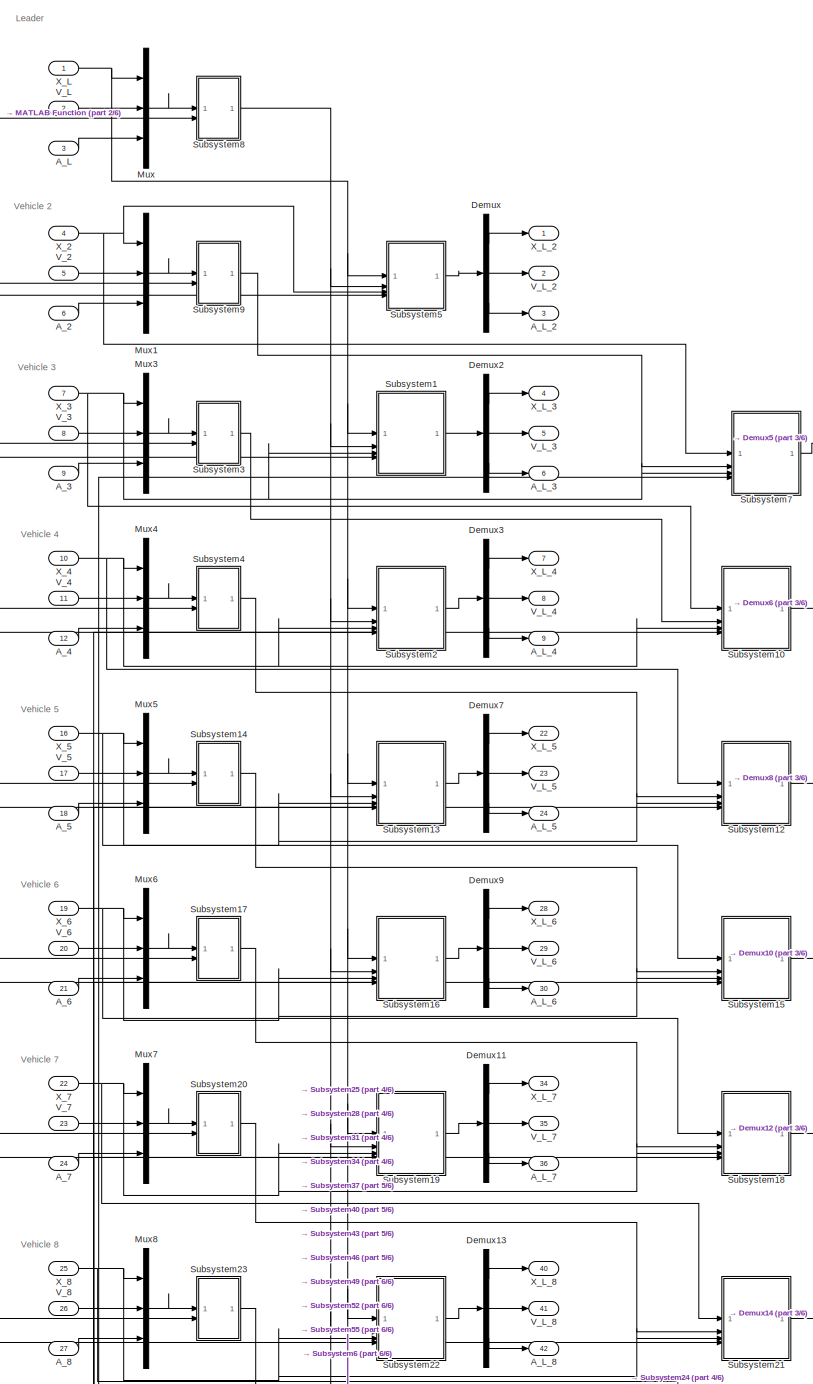
[diagram: root canvas - part 1/6, top right region]
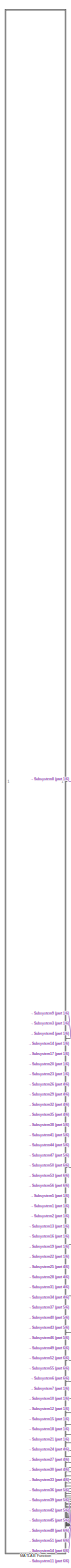
[diagram: root canvas - part 2/6, middle left region]
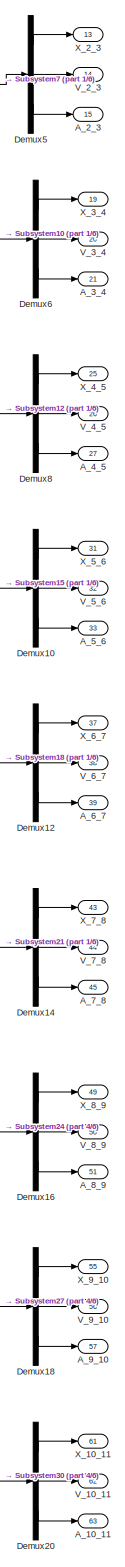
[diagram: root canvas - part 3/6, top right region]
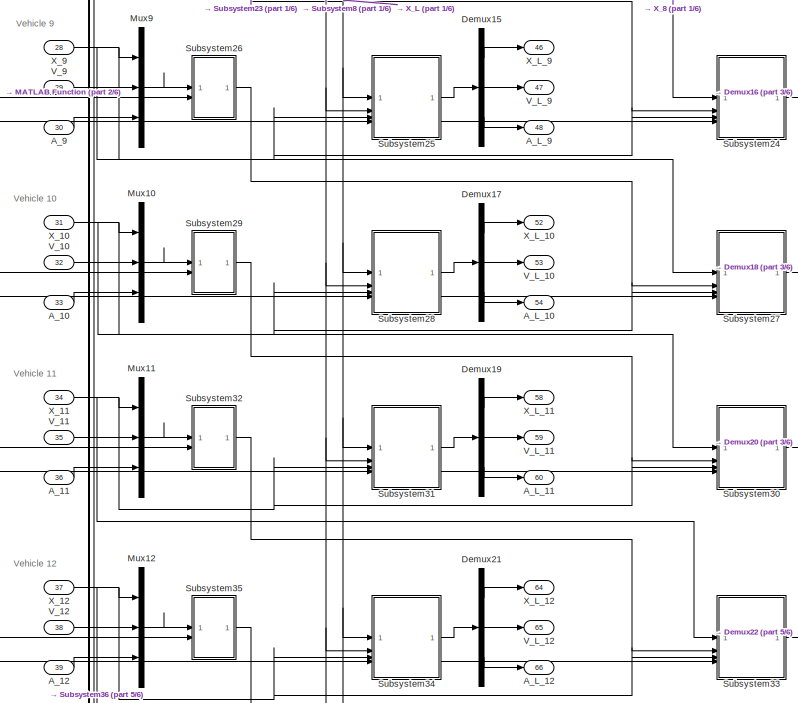
[diagram: root canvas - part 4/6, top right region]
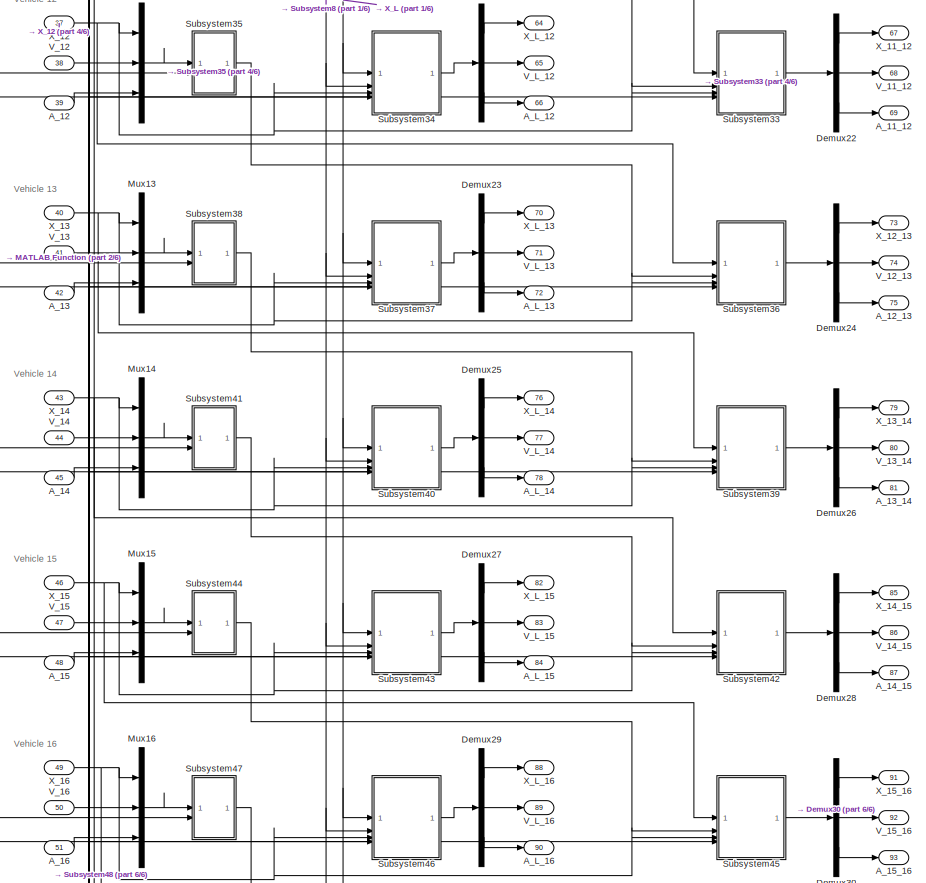
[diagram: root canvas - part 5/6, middle right region]
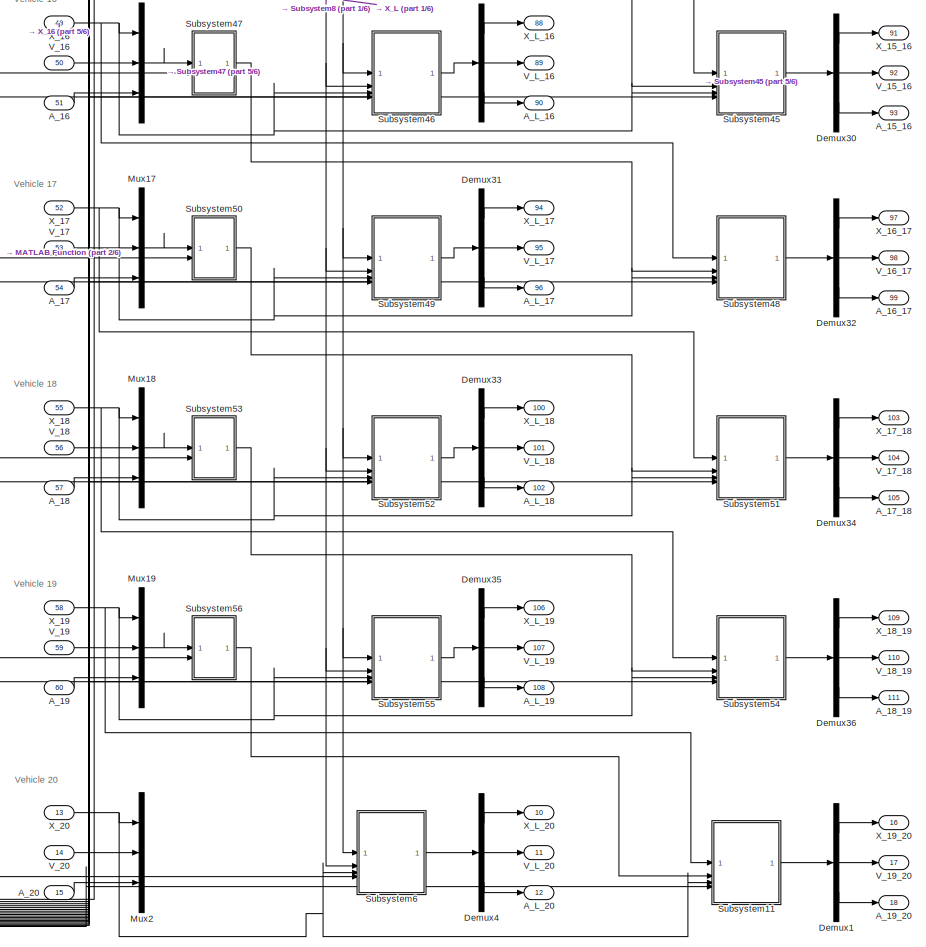
[diagram: root canvas - part 6/6, middle right region]
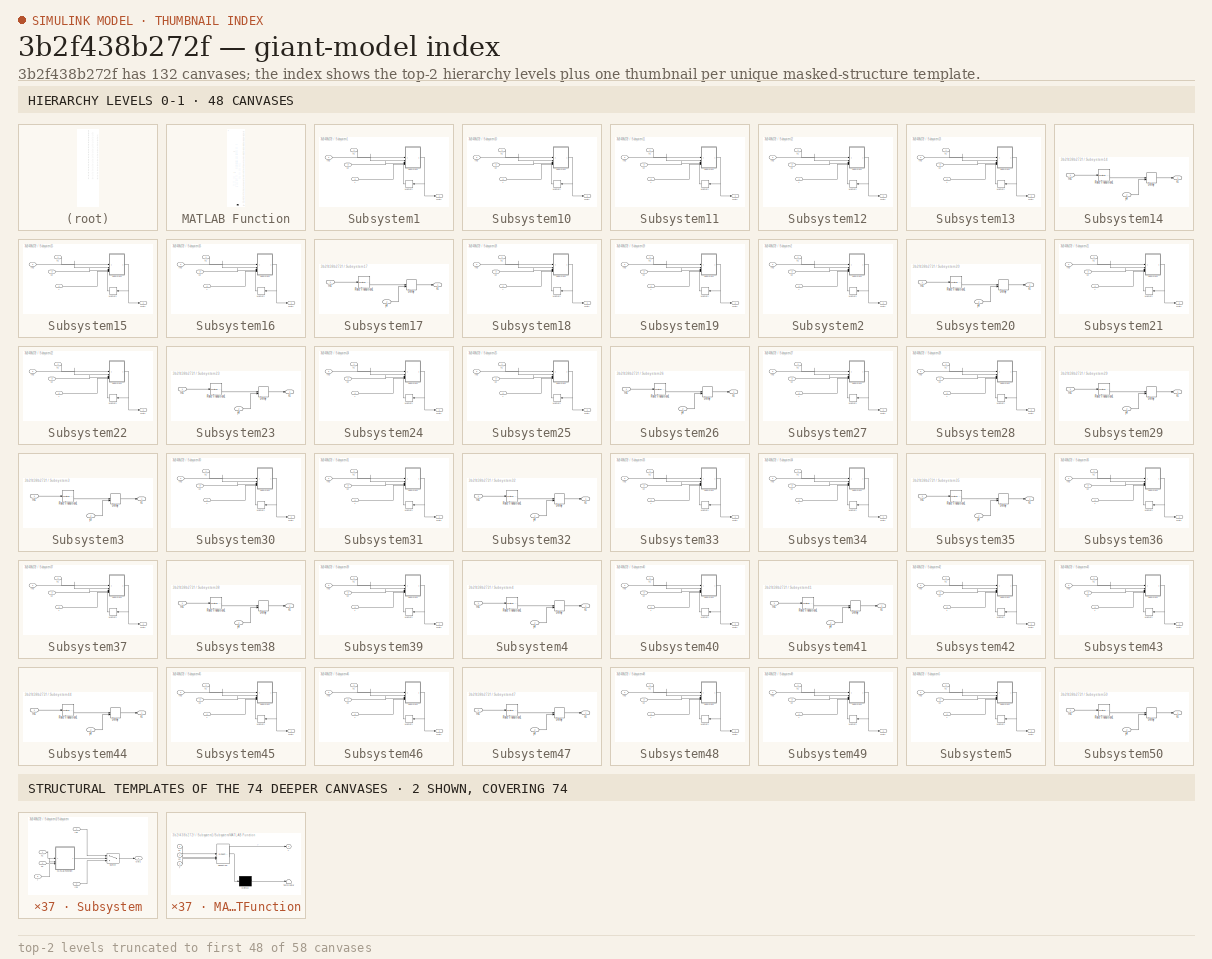
[diagram: thumbnail index - top-2 hierarchy levels (58 canvases (first 48 of 58 shown)) + 2 structural-template representatives of the remaining 74 canvases]
MODEL slx_3b2f438b272f
KIND model
CONFIG AbsTol = auto
CONFIG EnableMultiTasking = off
CONFIG FixedStep = 0.001
CONFIG MaxStep = auto
CONFIG MinStep = auto
CONFIG RelTol = 1e-3
CONFIG SampleTimeConstraint = Unconstrained
CONFIG SolverName = FixedStepDiscrete
CONFIG StartTime = 0.0
CONFIG StopTime = 10
BLOCK [Inport] A_10
  Port = 33
BLOCK [Outport] A_10_11
  Port = 63
BLOCK [Inport] A_11
  Port = 36
BLOCK [Outport] A_11_12
  Port = 69
BLOCK [Inport] A_12
  Port = 39
BLOCK [Outport] A_12_13
  Port = 75
BLOCK [Inport] A_13
  Port = 42
BLOCK [Outport] A_13_14
  Port = 81
BLOCK [Inport] A_14
  Port = 45
BLOCK [Outport] A_14_15
  Port = 87
BLOCK [Inport] A_15
  Port = 48
BLOCK [Outport] A_15_16
  Port = 93
BLOCK [Inport] A_16
  Port = 51
BLOCK [Outport] A_16_17
  Port = 99
BLOCK [Inport] A_17
  Port = 54
BLOCK [Outport] A_17_18
  Port = 105
BLOCK [Inport] A_18
  Port = 57
BLOCK [Outport] A_18_19
  Port = 111
BLOCK [Inport] A_19
  Port = 60
BLOCK [Outport] A_19_20
  Port = 18
BLOCK [Inport] A_2
  Port = 6
BLOCK [Inport] A_20
  Port = 15
BLOCK [Outport] A_2_3
  Port = 15
BLOCK [Inport] A_3
  Port = 9
BLOCK [Outport] A_3_4
  Port = 21
BLOCK [Inport] A_4
  Port = 12
BLOCK [Outport] A_4_5
  Port = 27
BLOCK [Inport] A_5
  Port = 18
BLOCK [Outport] A_5_6
  Port = 33
BLOCK [Inport] A_6
  Port = 21
BLOCK [Outport] A_6_7
  Port = 39
BLOCK [Inport] A_7
  Port = 24
BLOCK [Outport] A_7_8
  Port = 45
BLOCK [Inport] A_8
  Port = 27
BLOCK [Outport] A_8_9
  Port = 51
BLOCK [Inport] A_9
  Port = 30
BLOCK [Outport] A_9_10
  Port = 57
BLOCK [Inport] A_L
  Port = 3
BLOCK [Outport] A_L_10
  Port = 54
BLOCK [Outport] A_L_11
  Port = 60
BLOCK [Outport] A_L_12
  Port = 66
BLOCK [Outport] A_L_13
  Port = 72
BLOCK [Outport] A_L_14
  Port = 78
BLOCK [Outport] A_L_15
  Port = 84
BLOCK [Outport] A_L_16
  Port = 90
BLOCK [Outport] A_L_17
  Port = 96
BLOCK [Outport] A_L_18
  Port = 102
BLOCK [Outport] A_L_19
  Port = 108
BLOCK [Outport] A_L_2
  Port = 3
BLOCK [Outport] A_L_20
  Port = 12
BLOCK [Outport] A_L_3
  Port = 6
BLOCK [Outport] A_L_4
  Port = 9
BLOCK [Outport] A_L_5
  Port = 24
BLOCK [Outport] A_L_6
  Port = 30
BLOCK [Outport] A_L_7
  Port = 36
BLOCK [Outport] A_L_8
  Port = 42
BLOCK [Outport] A_L_9
  Port = 48
BLOCK [Demux] Demux
  Outputs = 3
BLOCK [Demux] Demux1
  Outputs = 3
BLOCK [Demux] Demux10
  Outputs = 3
BLOCK [Demux] Demux11
  Outputs = 3
BLOCK [Demux] Demux12
  Outputs = 3
BLOCK [Demux] Demux13
  Outputs = 3
BLOCK [Demux] Demux14
  Outputs = 3
BLOCK [Demux] Demux15
  Outputs = 3
BLOCK [Demux] Demux16
  Outputs = 3
BLOCK [Demux] Demux17
  Outputs = 3
BLOCK [Demux] Demux18
  Outputs = 3
BLOCK [Demux] Demux19
  Outputs = 3
BLOCK [Demux] Demux2
  Outputs = 3
BLOCK [Demux] Demux20
  Outputs = 3
BLOCK [Demux] Demux21
  Outputs = 3
BLOCK [Demux] Demux22
  Outputs = 3
BLOCK [Demux] Demux23
  Outputs = 3
BLOCK [Demux] Demux24
  Outputs = 3
BLOCK [Demux] Demux25
  Outputs = 3
BLOCK [Demux] Demux26
  Outputs = 3
BLOCK [Demux] Demux27
  Outputs = 3
BLOCK [Demux] Demux28
  Outputs = 3
BLOCK [Demux] Demux29
  Outputs = 3
BLOCK [Demux] Demux3
  Outputs = 3
BLOCK [Demux] Demux30
  Outputs = 3
BLOCK [Demux] Demux31
  Outputs = 3
BLOCK [Demux] Demux32
  Outputs = 3
BLOCK [Demux] Demux33
  Outputs = 3
BLOCK [Demux] Demux34
  Outputs = 3
BLOCK [Demux] Demux35
  Outputs = 3
BLOCK [Demux] Demux36
  Outputs = 3
BLOCK [Demux] Demux4
  Outputs = 3
BLOCK [Demux] Demux5
  Outputs = 3
BLOCK [Demux] Demux6
  Outputs = 3
BLOCK [Demux] Demux7
  Outputs = 3
BLOCK [Demux] Demux8
  Outputs = 3
BLOCK [Demux] Demux9
  Outputs = 3
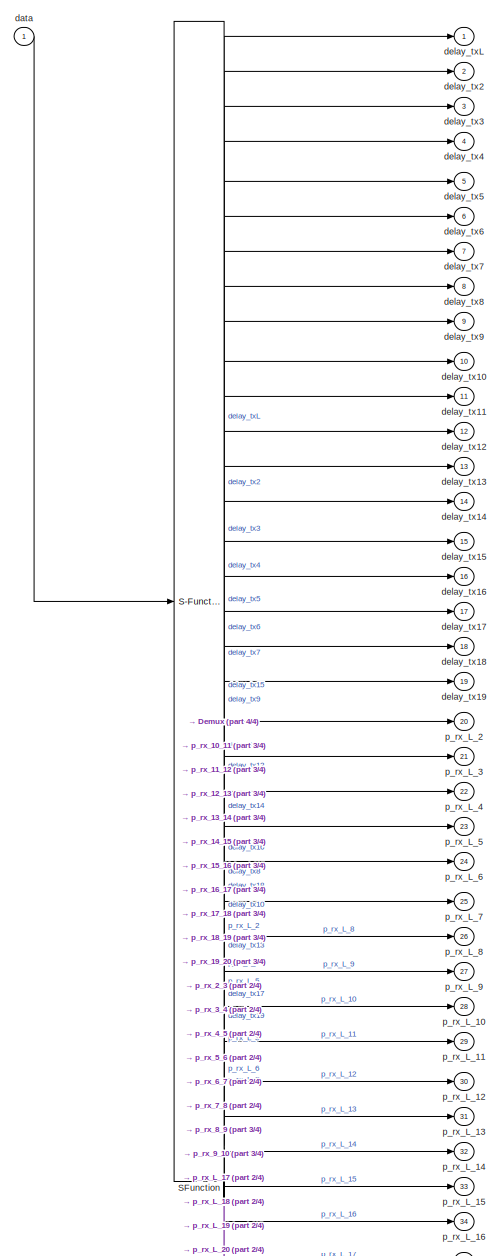
[diagram: MATLAB Function - part 1/4, full width, top band]
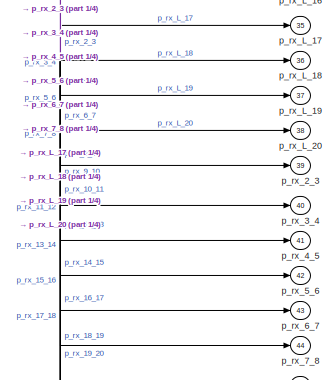
[diagram: MATLAB Function - part 2/4, central region]
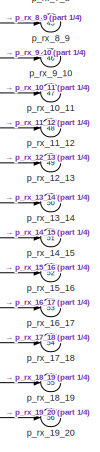
[diagram: MATLAB Function - part 3/4, bottom right region]
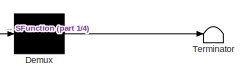
[diagram: MATLAB Function - part 4/4, bottom right region]
BLOCK [SubSystem] MATLAB Function
  ErrorFcn = Stateflow.Translate.translate
  PermitHierarchicalResolution = ExplicitOnly
  SFBlockType = MATLAB Function
  SystemSampleTime = 0.1
  TreatAsAtomicUnit = on
BLOCK [Demux] MATLAB Function/ Demux 
  Outputs = 1
BLOCK [S-Function] MATLAB Function/ SFunction 
  EnableBusSupport = on
  FunctionName = sf_sfun
  PortCounts = [1 57]
  SFcnIsStateOwnerBlock = off
  SFunctionDeploymentMode = off
  Tag = Stateflow S-Function 5
BLOCK [Terminator] MATLAB Function/ Terminator 
BLOCK [Inport] MATLAB Function/data
BLOCK [Outport] MATLAB Function/delay_tx10
  Port = 10
BLOCK [Outport] MATLAB Function/delay_tx11
  Port = 11
BLOCK [Outport] MATLAB Function/delay_tx12
  Port = 12
BLOCK [Outport] MATLAB Function/delay_tx13
  Port = 13
BLOCK [Outport] MATLAB Function/delay_tx14
  Port = 14
BLOCK [Outport] MATLAB Function/delay_tx15
  Port = 15
BLOCK [Outport] MATLAB Function/delay_tx16
  Port = 16
BLOCK [Outport] MATLAB Function/delay_tx17
  Port = 17
BLOCK [Outport] MATLAB Function/delay_tx18
  Port = 18
BLOCK [Outport] MATLAB Function/delay_tx19
  Port = 19
BLOCK [Outport] MATLAB Function/delay_tx2
  Port = 2
BLOCK [Outport] MATLAB Function/delay_tx3
  Port = 3
BLOCK [Outport] MATLAB Function/delay_tx4
  Port = 4
BLOCK [Outport] MATLAB Function/delay_tx5
  Port = 5
BLOCK [Outport] MATLAB Function/delay_tx6
  Port = 6
BLOCK [Outport] MATLAB Function/delay_tx7
  Port = 7
BLOCK [Outport] MATLAB Function/delay_tx8
  Port = 8
BLOCK [Outport] MATLAB Function/delay_tx9
  Port = 9
BLOCK [Outport] MATLAB Function/delay_txL
BLOCK [Outport] MATLAB Function/p_rx_10_11
  Port = 47
BLOCK [Outport] MATLAB Function/p_rx_11_12
  Port = 48
BLOCK [Outport] MATLAB Function/p_rx_12_13
  Port = 49
BLOCK [Outport] MATLAB Function/p_rx_13_14
  Port = 50
BLOCK [Outport] MATLAB Function/p_rx_14_15
  Port = 51
BLOCK [Outport] MATLAB Function/p_rx_15_16
  Port = 52
BLOCK [Outport] MATLAB Function/p_rx_16_17
  Port = 53
BLOCK [Outport] MATLAB Function/p_rx_17_18
  Port = 54
BLOCK [Outport] MATLAB Function/p_rx_18_19
  Port = 55
BLOCK [Outport] MATLAB Function/p_rx_19_20
  Port = 56
BLOCK [Outport] MATLAB Function/p_rx_2_3
  Port = 39
BLOCK [Outport] MATLAB Function/p_rx_3_4
  Port = 40
BLOCK [Outport] MATLAB Function/p_rx_4_5
  Port = 41
BLOCK [Outport] MATLAB Function/p_rx_5_6
  Port = 42
BLOCK [Outport] MATLAB Function/p_rx_6_7
  Port = 43
BLOCK [Outport] MATLAB Function/p_rx_7_8
  Port = 44
BLOCK [Outport] MATLAB Function/p_rx_8_9
  Port = 45
BLOCK [Outport] MATLAB Function/p_rx_9_10
  Port = 46
BLOCK [Outport] MATLAB Function/p_rx_L_10
  Port = 28
BLOCK [Outport] MATLAB Function/p_rx_L_11
  Port = 29
BLOCK [Outport] MATLAB Function/p_rx_L_12
  Port = 30
BLOCK [Outport] MATLAB Function/p_rx_L_13
  Port = 31
BLOCK [Outport] MATLAB Function/p_rx_L_14
  Port = 32
BLOCK [Outport] MATLAB Function/p_rx_L_15
  Port = 33
BLOCK [Outport] MATLAB Function/p_rx_L_16
  Port = 34
BLOCK [Outport] MATLAB Function/p_rx_L_17
  Port = 35
BLOCK [Outport] MATLAB Function/p_rx_L_18
  Port = 36
BLOCK [Outport] MATLAB Function/p_rx_L_19
  Port = 37
BLOCK [Outport] MATLAB Function/p_rx_L_2
  Port = 20
BLOCK [Outport] MATLAB Function/p_rx_L_20
  Port = 38
BLOCK [Outport] MATLAB Function/p_rx_L_3
  Port = 21
BLOCK [Outport] MATLAB Function/p_rx_L_4
  Port = 22
BLOCK [Outport] MATLAB Function/p_rx_L_5
  Port = 23
BLOCK [Outport] MATLAB Function/p_rx_L_6
  Port = 24
BLOCK [Outport] MATLAB Function/p_rx_L_7
  Port = 25
BLOCK [Outport] MATLAB Function/p_rx_L_8
  Port = 26
BLOCK [Outport] MATLAB Function/p_rx_L_9
  Port = 27
BLOCK [Mux] Mux
  DisplayOption = bar
  Inputs = 3
BLOCK [Mux] Mux1
  DisplayOption = bar
  Inputs = 3
BLOCK [Mux] Mux10
  DisplayOption = bar
  Inputs = 3
BLOCK [Mux] Mux11
  DisplayOption = bar
  Inputs = 3
BLOCK [Mux] Mux12
  DisplayOption = bar
  Inputs = 3
BLOCK [Mux] Mux13
  DisplayOption = bar
  Inputs = 3
BLOCK [Mux] Mux14
  DisplayOption = bar
  Inputs = 3
BLOCK [Mux] Mux15
  DisplayOption = bar
  Inputs = 3
BLOCK [Mux] Mux16
  DisplayOption = bar
  Inputs = 3
BLOCK [Mux] Mux17
  DisplayOption = bar
  Inputs = 3
BLOCK [Mux] Mux18
  DisplayOption = bar
  Inputs = 3
BLOCK [Mux] Mux19
  DisplayOption = bar
  Inputs = 3
BLOCK [Mux] Mux2
  DisplayOption = bar
  Inputs = 3
BLOCK [Mux] Mux3
  DisplayOption = bar
  Inputs = 3
BLOCK [Mux] Mux4
  DisplayOption = bar
  Inputs = 3
BLOCK [Mux] Mux5
  DisplayOption = bar
  Inputs = 3
BLOCK [Mux] Mux6
  DisplayOption = bar
  Inputs = 3
BLOCK [Mux] Mux7
  DisplayOption = bar
  Inputs = 3
BLOCK [Mux] Mux8
  DisplayOption = bar
  Inputs = 3
BLOCK [Mux] Mux9
  DisplayOption = bar
  Inputs = 3
BLOCK [SubSystem] Subsystem1
BLOCK [Inport] Subsystem1/In2
  Port = 2
BLOCK [Memory] Subsystem1/Memory
  NameLocation = top
BLOCK [Outport] Subsystem1/Out1
BLOCK [SubSystem] Subsystem1/Subsystem
BLOCK [Inport] Subsystem1/Subsystem/In2
  Port = 2
BLOCK [Inport] Subsystem1/Subsystem/In3
  Port = 3
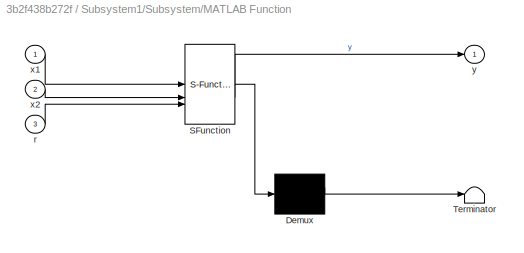
BLOCK [SubSystem] Subsystem1/Subsystem/MATLAB Function
  ErrorFcn = Stateflow.Translate.translate
  PermitHierarchicalResolution = ExplicitOnly
  SFBlockType = MATLAB Function
  SystemSampleTime = 0.1
  TreatAsAtomicUnit = on
BLOCK [Demux] Subsystem1/Subsystem/MATLAB Function/ Demux 
  Outputs = 1
BLOCK [S-Function] Subsystem1/Subsystem/MATLAB Function/ SFunction 
  EnableBusSupport = on
  FunctionName = sf_sfun
  PortCounts = [3 2]
  SFcnIsStateOwnerBlock = off
  SFunctionDeploymentMode = off
  Tag = Stateflow S-Function 1
BLOCK [Terminator] Subsystem1/Subsystem/MATLAB Function/ Terminator 
BLOCK [Inport] Subsystem1/Subsystem/MATLAB Function/r
  Port = 3
BLOCK [Inport] Subsystem1/Subsystem/MATLAB Function/x1
BLOCK [Inport] Subsystem1/Subsystem/MATLAB Function/x2
  Port = 2
BLOCK [Outport] Subsystem1/Subsystem/MATLAB Function/y
BLOCK [Outport] Subsystem1/Subsystem/Out1
BLOCK [Switch] Subsystem1/Subsystem/Switch
  Criteria = u2 > Threshold
  InputSameDT = off
  SaturateOnIntegerOverflow = off
BLOCK [Inport] Subsystem1/Subsystem/r
  Port = 5
BLOCK [Inport] Subsystem1/Subsystem/x1
BLOCK [Inport] Subsystem1/Subsystem/x2
  Port = 4
BLOCK [Inport] Subsystem1/r
  Port = 4
BLOCK [Inport] Subsystem1/x1
BLOCK [Inport] Subsystem1/x2
  Port = 3
BLOCK [SubSystem] Subsystem10
BLOCK [Inport] Subsystem10/In2
  Port = 2
BLOCK [Memory] Subsystem10/Memory
  NameLocation = top
BLOCK [Outport] Subsystem10/Out1
BLOCK [SubSystem] Subsystem10/Subsystem
BLOCK [Inport] Subsystem10/Subsystem/In2
  Port = 2
BLOCK [Inport] Subsystem10/Subsystem/In3
  Port = 3
BLOCK [SubSystem] Subsystem10/Subsystem/MATLAB Function
  ErrorFcn = Stateflow.Translate.translate
  PermitHierarchicalResolution = ExplicitOnly
  SFBlockType = MATLAB Function
  SystemSampleTime = 0.1
  TreatAsAtomicUnit = on
BLOCK [Demux] Subsystem10/Subsystem/MATLAB Function/ Demux 
  Outputs = 1
BLOCK [S-Function] Subsystem10/Subsystem/MATLAB Function/ SFunction 
  EnableBusSupport = on
  FunctionName = sf_sfun
  PortCounts = [3 2]
  SFcnIsStateOwnerBlock = off
  SFunctionDeploymentMode = off
  Tag = Stateflow S-Function 6
BLOCK [Terminator] Subsystem10/Subsystem/MATLAB Function/ Terminator 
BLOCK [Inport] Subsystem10/Subsystem/MATLAB Function/r
  Port = 3
BLOCK [Inport] Subsystem10/Subsystem/MATLAB Function/x1
BLOCK [Inport] Subsystem10/Subsystem/MATLAB Function/x2
  Port = 2
BLOCK [Outport] Subsystem10/Subsystem/MATLAB Function/y
BLOCK [Outport] Subsystem10/Subsystem/Out1
BLOCK [Switch] Subsystem10/Subsystem/Switch
  Criteria = u2 > Threshold
  InputSameDT = off
  SaturateOnIntegerOverflow = off
BLOCK [Inport] Subsystem10/Subsystem/r
  Port = 5
BLOCK [Inport] Subsystem10/Subsystem/x1
BLOCK [Inport] Subsystem10/Subsystem/x2
  Port = 4
BLOCK [Inport] Subsystem10/r
  Port = 4
BLOCK [Inport] Subsystem10/x1
BLOCK [Inport] Subsystem10/x2
  Port = 3
BLOCK [SubSystem] Subsystem11
BLOCK [Inport] Subsystem11/In2
  Port = 2
BLOCK [Memory] Subsystem11/Memory
  NameLocation = top
BLOCK [Outport] Subsystem11/Out1
BLOCK [SubSystem] Subsystem11/Subsystem
BLOCK [Inport] Subsystem11/Subsystem/In2
  Port = 2
BLOCK [Inport] Subsystem11/Subsystem/In3
  Port = 3
BLOCK [SubSystem] Subsystem11/Subsystem/MATLAB Function
  ErrorFcn = Stateflow.Translate.translate
  PermitHierarchicalResolution = ExplicitOnly
  SFBlockType = MATLAB Function
  SystemSampleTime = 0.1
  TreatAsAtomicUnit = on
BLOCK [Demux] Subsystem11/Subsystem/MATLAB Function/ Demux 
  Outputs = 1
BLOCK [S-Function] Subsystem11/Subsystem/MATLAB Function/ SFunction 
  EnableBusSupport = on
  FunctionName = sf_sfun
  PortCounts = [3 2]
  SFcnIsStateOwnerBlock = off
  SFunctionDeploymentMode = off
  Tag = Stateflow S-Function 7
BLOCK [Terminator] Subsystem11/Subsystem/MATLAB Function/ Terminator 
BLOCK [Inport] Subsystem11/Subsystem/MATLAB Function/r
  Port = 3
BLOCK [Inport] Subsystem11/Subsystem/MATLAB Function/x1
BLOCK [Inport] Subsystem11/Subsystem/MATLAB Function/x2
  Port = 2
BLOCK [Outport] Subsystem11/Subsystem/MATLAB Function/y
BLOCK [Outport] Subsystem11/Subsystem/Out1
BLOCK [Switch] Subsystem11/Subsystem/Switch
  Criteria = u2 > Threshold
  InputSameDT = off
  SaturateOnIntegerOverflow = off
BLOCK [Inport] Subsystem11/Subsystem/r
  Port = 5
BLOCK [Inport] Subsystem11/Subsystem/x1
BLOCK [Inport] Subsystem11/Subsystem/x2
  Port = 4
BLOCK [Inport] Subsystem11/r
  Port = 4
BLOCK [Inport] Subsystem11/x1
BLOCK [Inport] Subsystem11/x2
  Port = 3
BLOCK [SubSystem] Subsystem12
BLOCK [Inport] Subsystem12/In2
  Port = 2
BLOCK [Memory] Subsystem12/Memory
  NameLocation = top
BLOCK [Outport] Subsystem12/Out1
BLOCK [SubSystem] Subsystem12/Subsystem
BLOCK [Inport] Subsystem12/Subsystem/In2
  Port = 2
BLOCK [Inport] Subsystem12/Subsystem/In3
  Port = 3
BLOCK [SubSystem] Subsystem12/Subsystem/MATLAB Function
  ErrorFcn = Stateflow.Translate.translate
  PermitHierarchicalResolution = ExplicitOnly
  SFBlockType = MATLAB Function
  SystemSampleTime = 0.1
  TreatAsAtomicUnit = on
BLOCK [Demux] Subsystem12/Subsystem/MATLAB Function/ Demux 
  Outputs = 1
BLOCK [S-Function] Subsystem12/Subsystem/MATLAB Function/ SFunction 
  EnableBusSupport = on
  FunctionName = sf_sfun
  PortCounts = [3 2]
  SFcnIsStateOwnerBlock = off
  SFunctionDeploymentMode = off
  Tag = Stateflow S-Function 8
BLOCK [Terminator] Subsystem12/Subsystem/MATLAB Function/ Terminator 
BLOCK [Inport] Subsystem12/Subsystem/MATLAB Function/r
  Port = 3
BLOCK [Inport] Subsystem12/Subsystem/MATLAB Function/x1
BLOCK [Inport] Subsystem12/Subsystem/MATLAB Function/x2
  Port = 2
BLOCK [Outport] Subsystem12/Subsystem/MATLAB Function/y
BLOCK [Outport] Subsystem12/Subsystem/Out1
BLOCK [Switch] Subsystem12/Subsystem/Switch
  Criteria = u2 > Threshold
  InputSameDT = off
  SaturateOnIntegerOverflow = off
BLOCK [Inport] Subsystem12/Subsystem/r
  Port = 5
BLOCK [Inport] Subsystem12/Subsystem/x1
BLOCK [Inport] Subsystem12/Subsystem/x2
  Port = 4
BLOCK [Inport] Subsystem12/r
  Port = 4
BLOCK [Inport] Subsystem12/x1
BLOCK [Inport] Subsystem12/x2
  Port = 3
BLOCK [SubSystem] Subsystem13
BLOCK [Inport] Subsystem13/In2
  Port = 2
BLOCK [Memory] Subsystem13/Memory
  NameLocation = top
BLOCK [Outport] Subsystem13/Out1
BLOCK [SubSystem] Subsystem13/Subsystem
BLOCK [Inport] Subsystem13/Subsystem/In2
  Port = 2
BLOCK [Inport] Subsystem13/Subsystem/In3
  Port = 3
BLOCK [SubSystem] Subsystem13/Subsystem/MATLAB Function
  ErrorFcn = Stateflow.Translate.translate
  PermitHierarchicalResolution = ExplicitOnly
  SFBlockType = MATLAB Function
  SystemSampleTime = 0.1
  TreatAsAtomicUnit = on
BLOCK [Demux] Subsystem13/Subsystem/MATLAB Function/ Demux 
  Outputs = 1
BLOCK [S-Function] Subsystem13/Subsystem/MATLAB Function/ SFunction 
  EnableBusSupport = on
  FunctionName = sf_sfun
  PortCounts = [3 2]
  SFcnIsStateOwnerBlock = off
  SFunctionDeploymentMode = off
  Tag = Stateflow S-Function 10
BLOCK [Terminator] Subsystem13/Subsystem/MATLAB Function/ Terminator 
BLOCK [Inport] Subsystem13/Subsystem/MATLAB Function/r
  Port = 3
BLOCK [Inport] Subsystem13/Subsystem/MATLAB Function/x1
BLOCK [Inport] Subsystem13/Subsystem/MATLAB Function/x2
  Port = 2
BLOCK [Outport] Subsystem13/Subsystem/MATLAB Function/y
BLOCK [Outport] Subsystem13/Subsystem/Out1
BLOCK [Switch] Subsystem13/Subsystem/Switch
  Criteria = u2 > Threshold
  InputSameDT = off
  SaturateOnIntegerOverflow = off
BLOCK [Inport] Subsystem13/Subsystem/r
  Port = 5
BLOCK [Inport] Subsystem13/Subsystem/x1
BLOCK [Inport] Subsystem13/Subsystem/x2
  Port = 4
BLOCK [Inport] Subsystem13/r
  Port = 4
BLOCK [Inport] Subsystem13/x1
BLOCK [Inport] Subsystem13/x2
  Port = 3
BLOCK [SubSystem] Subsystem14
BLOCK [Delay] Subsystem14/Delay
  DelayLengthSource = Input port
  DelayLengthUpperLimit = 1000
  InputPortMap = u0,p1
  SampleTime = samp_time
BLOCK [Inport] Subsystem14/In1
BLOCK [RateTransition] Subsystem14/Rate Transition1
  OutPortSampleTime = samp_time
  OutPortSampleTimeMultiple = 100
BLOCK [Outport] Subsystem14/x1
BLOCK [Inport] Subsystem14/y4
  Port = 2
BLOCK [SubSystem] Subsystem15
BLOCK [Inport] Subsystem15/In2
  Port = 2
BLOCK [Memory] Subsystem15/Memory
  NameLocation = top
BLOCK [Outport] Subsystem15/Out1
BLOCK [SubSystem] Subsystem15/Subsystem
BLOCK [Inport] Subsystem15/Subsystem/In2
  Port = 2
BLOCK [Inport] Subsystem15/Subsystem/In3
  Port = 3
BLOCK [SubSystem] Subsystem15/Subsystem/MATLAB Function
  ErrorFcn = Stateflow.Translate.translate
  PermitHierarchicalResolution = ExplicitOnly
  SFBlockType = MATLAB Function
  SystemSampleTime = 0.1
  TreatAsAtomicUnit = on
BLOCK [Demux] Subsystem15/Subsystem/MATLAB Function/ Demux 
  Outputs = 1
BLOCK [S-Function] Subsystem15/Subsystem/MATLAB Function/ SFunction 
  EnableBusSupport = on
  FunctionName = sf_sfun
  PortCounts = [3 2]
  SFcnIsStateOwnerBlock = off
  SFunctionDeploymentMode = off
  Tag = Stateflow S-Function 11
BLOCK [Terminator] Subsystem15/Subsystem/MATLAB Function/ Terminator 
BLOCK [Inport] Subsystem15/Subsystem/MATLAB Function/r
  Port = 3
BLOCK [Inport] Subsystem15/Subsystem/MATLAB Function/x1
BLOCK [Inport] Subsystem15/Subsystem/MATLAB Function/x2
  Port = 2
BLOCK [Outport] Subsystem15/Subsystem/MATLAB Function/y
BLOCK [Outport] Subsystem15/Subsystem/Out1
BLOCK [Switch] Subsystem15/Subsystem/Switch
  Criteria = u2 > Threshold
  InputSameDT = off
  SaturateOnIntegerOverflow = off
BLOCK [Inport] Subsystem15/Subsystem/r
  Port = 5
BLOCK [Inport] Subsystem15/Subsystem/x1
BLOCK [Inport] Subsystem15/Subsystem/x2
  Port = 4
BLOCK [Inport] Subsystem15/r
  Port = 4
BLOCK [Inport] Subsystem15/x1
BLOCK [Inport] Subsystem15/x2
  Port = 3
BLOCK [SubSystem] Subsystem16
BLOCK [Inport] Subsystem16/In2
  Port = 2
BLOCK [Memory] Subsystem16/Memory
  NameLocation = top
BLOCK [Outport] Subsystem16/Out1
BLOCK [SubSystem] Subsystem16/Subsystem
BLOCK [Inport] Subsystem16/Subsystem/In2
  Port = 2
BLOCK [Inport] Subsystem16/Subsystem/In3
  Port = 3
BLOCK [SubSystem] Subsystem16/Subsystem/MATLAB Function
  ErrorFcn = Stateflow.Translate.translate
  PermitHierarchicalResolution = ExplicitOnly
  SFBlockType = MATLAB Function
  SystemSampleTime = 0.1
  TreatAsAtomicUnit = on
BLOCK [Demux] Subsystem16/Subsystem/MATLAB Function/ Demux 
  Outputs = 1
BLOCK [S-Function] Subsystem16/Subsystem/MATLAB Function/ SFunction 
  EnableBusSupport = on
  FunctionName = sf_sfun
  PortCounts = [3 2]
  SFcnIsStateOwnerBlock = off
  SFunctionDeploymentMode = off
  Tag = Stateflow S-Function 12
BLOCK [Terminator] Subsystem16/Subsystem/MATLAB Function/ Terminator 
BLOCK [Inport] Subsystem16/Subsystem/MATLAB Function/r
  Port = 3
BLOCK [Inport] Subsystem16/Subsystem/MATLAB Function/x1
BLOCK [Inport] Subsystem16/Subsystem/MATLAB Function/x2
  Port = 2
BLOCK [Outport] Subsystem16/Subsystem/MATLAB Function/y
BLOCK [Outport] Subsystem16/Subsystem/Out1
BLOCK [Switch] Subsystem16/Subsystem/Switch
  Criteria = u2 > Threshold
  InputSameDT = off
  SaturateOnIntegerOverflow = off
BLOCK [Inport] Subsystem16/Subsystem/r
  Port = 5
BLOCK [Inport] Subsystem16/Subsystem/x1
BLOCK [Inport] Subsystem16/Subsystem/x2
  Port = 4
BLOCK [Inport] Subsystem16/r
  Port = 4
BLOCK [Inport] Subsystem16/x1
BLOCK [Inport] Subsystem16/x2
  Port = 3
BLOCK [SubSystem] Subsystem17
BLOCK [Delay] Subsystem17/Delay
  DelayLengthSource = Input port
  DelayLengthUpperLimit = 1000
  InputPortMap = u0,p1
  SampleTime = samp_time
BLOCK [Inport] Subsystem17/In1
BLOCK [RateTransition] Subsystem17/Rate Transition1
  OutPortSampleTime = samp_time
  OutPortSampleTimeMultiple = 100
BLOCK [Outport] Subsystem17/x1
BLOCK [Inport] Subsystem17/y4
  Port = 2
BLOCK [SubSystem] Subsystem18
BLOCK [Inport] Subsystem18/In2
  Port = 2
BLOCK [Memory] Subsystem18/Memory
  NameLocation = top
BLOCK [Outport] Subsystem18/Out1
BLOCK [SubSystem] Subsystem18/Subsystem
BLOCK [Inport] Subsystem18/Subsystem/In2
  Port = 2
BLOCK [Inport] Subsystem18/Subsystem/In3
  Port = 3
BLOCK [SubSystem] Subsystem18/Subsystem/MATLAB Function
  ErrorFcn = Stateflow.Translate.translate
  PermitHierarchicalResolution = ExplicitOnly
  SFBlockType = MATLAB Function
  SystemSampleTime = 0.1
  TreatAsAtomicUnit = on
BLOCK [Demux] Subsystem18/Subsystem/MATLAB Function/ Demux 
  Outputs = 1
BLOCK [S-Function] Subsystem18/Subsystem/MATLAB Function/ SFunction 
  EnableBusSupport = on
  FunctionName = sf_sfun
  PortCounts = [3 2]
  SFcnIsStateOwnerBlock = off
  SFunctionDeploymentMode = off
  Tag = Stateflow S-Function 13
BLOCK [Terminator] Subsystem18/Subsystem/MATLAB Function/ Terminator 
BLOCK [Inport] Subsystem18/Subsystem/MATLAB Function/r
  Port = 3
BLOCK [Inport] Subsystem18/Subsystem/MATLAB Function/x1
BLOCK [Inport] Subsystem18/Subsystem/MATLAB Function/x2
  Port = 2
BLOCK [Outport] Subsystem18/Subsystem/MATLAB Function/y
BLOCK [Outport] Subsystem18/Subsystem/Out1
BLOCK [Switch] Subsystem18/Subsystem/Switch
  Criteria = u2 > Threshold
  InputSameDT = off
  SaturateOnIntegerOverflow = off
BLOCK [Inport] Subsystem18/Subsystem/r
  Port = 5
BLOCK [Inport] Subsystem18/Subsystem/x1
BLOCK [Inport] Subsystem18/Subsystem/x2
  Port = 4
BLOCK [Inport] Subsystem18/r
  Port = 4
BLOCK [Inport] Subsystem18/x1
BLOCK [Inport] Subsystem18/x2
  Port = 3
BLOCK [SubSystem] Subsystem19
BLOCK [Inport] Subsystem19/In2
  Port = 2
BLOCK [Memory] Subsystem19/Memory
  NameLocation = top
BLOCK [Outport] Subsystem19/Out1
BLOCK [SubSystem] Subsystem19/Subsystem
BLOCK [Inport] Subsystem19/Subsystem/In2
  Port = 2
BLOCK [Inport] Subsystem19/Subsystem/In3
  Port = 3
BLOCK [SubSystem] Subsystem19/Subsystem/MATLAB Function
  ErrorFcn = Stateflow.Translate.translate
  PermitHierarchicalResolution = ExplicitOnly
  SFBlockType = MATLAB Function
  SystemSampleTime = 0.1
  TreatAsAtomicUnit = on
BLOCK [Demux] Subsystem19/Subsystem/MATLAB Function/ Demux 
  Outputs = 1
BLOCK [S-Function] Subsystem19/Subsystem/MATLAB Function/ SFunction 
  EnableBusSupport = on
  FunctionName = sf_sfun
  PortCounts = [3 2]
  SFcnIsStateOwnerBlock = off
  SFunctionDeploymentMode = off
  Tag = Stateflow S-Function 14
BLOCK [Terminator] Subsystem19/Subsystem/MATLAB Function/ Terminator 
BLOCK [Inport] Subsystem19/Subsystem/MATLAB Function/r
  Port = 3
BLOCK [Inport] Subsystem19/Subsystem/MATLAB Function/x1
BLOCK [Inport] Subsystem19/Subsystem/MATLAB Function/x2
  Port = 2
BLOCK [Outport] Subsystem19/Subsystem/MATLAB Function/y
BLOCK [Outport] Subsystem19/Subsystem/Out1
BLOCK [Switch] Subsystem19/Subsystem/Switch
  Criteria = u2 > Threshold
  InputSameDT = off
  SaturateOnIntegerOverflow = off
BLOCK [Inport] Subsystem19/Subsystem/r
  Port = 5
BLOCK [Inport] Subsystem19/Subsystem/x1
BLOCK [Inport] Subsystem19/Subsystem/x2
  Port = 4
BLOCK [Inport] Subsystem19/r
  Port = 4
BLOCK [Inport] Subsystem19/x1
BLOCK [Inport] Subsystem19/x2
  Port = 3
BLOCK [SubSystem] Subsystem2
BLOCK [Inport] Subsystem2/In2
  Port = 2
BLOCK [Memory] Subsystem2/Memory
  NameLocation = top
BLOCK [Outport] Subsystem2/Out1
BLOCK [SubSystem] Subsystem2/Subsystem
BLOCK [Inport] Subsystem2/Subsystem/In2
  Port = 2
BLOCK [Inport] Subsystem2/Subsystem/In3
  Port = 3
BLOCK [SubSystem] Subsystem2/Subsystem/MATLAB Function
  ErrorFcn = Stateflow.Translate.translate
  PermitHierarchicalResolution = ExplicitOnly
  SFBlockType = MATLAB Function
  SystemSampleTime = 0.1
  TreatAsAtomicUnit = on
BLOCK [Demux] Subsystem2/Subsystem/MATLAB Function/ Demux 
  Outputs = 1
BLOCK [S-Function] Subsystem2/Subsystem/MATLAB Function/ SFunction 
  EnableBusSupport = on
  FunctionName = sf_sfun
  PortCounts = [3 2]
  SFcnIsStateOwnerBlock = off
  SFunctionDeploymentMode = off
  Tag = Stateflow S-Function 2
BLOCK [Terminator] Subsystem2/Subsystem/MATLAB Function/ Terminator 
BLOCK [Inport] Subsystem2/Subsystem/MATLAB Function/r
  Port = 3
BLOCK [Inport] Subsystem2/Subsystem/MATLAB Function/x1
BLOCK [Inport] Subsystem2/Subsystem/MATLAB Function/x2
  Port = 2
BLOCK [Outport] Subsystem2/Subsystem/MATLAB Function/y
BLOCK [Outport] Subsystem2/Subsystem/Out1
BLOCK [Switch] Subsystem2/Subsystem/Switch
  Criteria = u2 > Threshold
  InputSameDT = off
  SaturateOnIntegerOverflow = off
BLOCK [Inport] Subsystem2/Subsystem/r
  Port = 5
BLOCK [Inport] Subsystem2/Subsystem/x1
BLOCK [Inport] Subsystem2/Subsystem/x2
  Port = 4
BLOCK [Inport] Subsystem2/r
  Port = 4
BLOCK [Inport] Subsystem2/x1
BLOCK [Inport] Subsystem2/x2
  Port = 3
BLOCK [SubSystem] Subsystem20
BLOCK [Delay] Subsystem20/Delay
  DelayLengthSource = Input port
  DelayLengthUpperLimit = 1000
  InputPortMap = u0,p1
  SampleTime = samp_time
BLOCK [Inport] Subsystem20/In1
BLOCK [RateTransition] Subsystem20/Rate Transition1
  OutPortSampleTime = samp_time
  OutPortSampleTimeMultiple = 100
BLOCK [Outport] Subsystem20/x1
BLOCK [Inport] Subsystem20/y4
  Port = 2
BLOCK [SubSystem] Subsystem21
BLOCK [Inport] Subsystem21/In2
  Port = 2
BLOCK [Memory] Subsystem21/Memory
  NameLocation = top
BLOCK [Outport] Subsystem21/Out1
BLOCK [SubSystem] Subsystem21/Subsystem
BLOCK [Inport] Subsystem21/Subsystem/In2
  Port = 2
BLOCK [Inport] Subsystem21/Subsystem/In3
  Port = 3
BLOCK [SubSystem] Subsystem21/Subsystem/MATLAB Function
  ErrorFcn = Stateflow.Translate.translate
  PermitHierarchicalResolution = ExplicitOnly
  SFBlockType = MATLAB Function
  SystemSampleTime = 0.1
  TreatAsAtomicUnit = on
BLOCK [Demux] Subsystem21/Subsystem/MATLAB Function/ Demux 
  Outputs = 1
BLOCK [S-Function] Subsystem21/Subsystem/MATLAB Function/ SFunction 
  EnableBusSupport = on
  FunctionName = sf_sfun
  PortCounts = [3 2]
  SFcnIsStateOwnerBlock = off
  SFunctionDeploymentMode = off
  Tag = Stateflow S-Function 15
BLOCK [Terminator] Subsystem21/Subsystem/MATLAB Function/ Terminator 
BLOCK [Inport] Subsystem21/Subsystem/MATLAB Function/r
  Port = 3
BLOCK [Inport] Subsystem21/Subsystem/MATLAB Function/x1
BLOCK [Inport] Subsystem21/Subsystem/MATLAB Function/x2
  Port = 2
BLOCK [Outport] Subsystem21/Subsystem/MATLAB Function/y
BLOCK [Outport] Subsystem21/Subsystem/Out1
BLOCK [Switch] Subsystem21/Subsystem/Switch
  Criteria = u2 > Threshold
  InputSameDT = off
  SaturateOnIntegerOverflow = off
BLOCK [Inport] Subsystem21/Subsystem/r
  Port = 5
BLOCK [Inport] Subsystem21/Subsystem/x1
BLOCK [Inport] Subsystem21/Subsystem/x2
  Port = 4
BLOCK [Inport] Subsystem21/r
  Port = 4
BLOCK [Inport] Subsystem21/x1
BLOCK [Inport] Subsystem21/x2
  Port = 3
BLOCK [SubSystem] Subsystem22
BLOCK [Inport] Subsystem22/In2
  Port = 2
BLOCK [Memory] Subsystem22/Memory
  NameLocation = top
BLOCK [Outport] Subsystem22/Out1
BLOCK [SubSystem] Subsystem22/Subsystem
BLOCK [Inport] Subsystem22/Subsystem/In2
  Port = 2
BLOCK [Inport] Subsystem22/Subsystem/In3
  Port = 3
BLOCK [SubSystem] Subsystem22/Subsystem/MATLAB Function
  ErrorFcn = Stateflow.Translate.translate
  PermitHierarchicalResolution = ExplicitOnly
  SFBlockType = MATLAB Function
  SystemSampleTime = 0.1
  TreatAsAtomicUnit = on
BLOCK [Demux] Subsystem22/Subsystem/MATLAB Function/ Demux 
  Outputs = 1
BLOCK [S-Function] Subsystem22/Subsystem/MATLAB Function/ SFunction 
  EnableBusSupport = on
  FunctionName = sf_sfun
  PortCounts = [3 2]
  SFcnIsStateOwnerBlock = off
  SFunctionDeploymentMode = off
  Tag = Stateflow S-Function 16
BLOCK [Terminator] Subsystem22/Subsystem/MATLAB Function/ Terminator 
BLOCK [Inport] Subsystem22/Subsystem/MATLAB Function/r
  Port = 3
BLOCK [Inport] Subsystem22/Subsystem/MATLAB Function/x1
BLOCK [Inport] Subsystem22/Subsystem/MATLAB Function/x2
  Port = 2
BLOCK [Outport] Subsystem22/Subsystem/MATLAB Function/y
BLOCK [Outport] Subsystem22/Subsystem/Out1
BLOCK [Switch] Subsystem22/Subsystem/Switch
  Criteria = u2 > Threshold
  InputSameDT = off
  SaturateOnIntegerOverflow = off
BLOCK [Inport] Subsystem22/Subsystem/r
  Port = 5
BLOCK [Inport] Subsystem22/Subsystem/x1
BLOCK [Inport] Subsystem22/Subsystem/x2
  Port = 4
BLOCK [Inport] Subsystem22/r
  Port = 4
BLOCK [Inport] Subsystem22/x1
BLOCK [Inport] Subsystem22/x2
  Port = 3
BLOCK [SubSystem] Subsystem23
BLOCK [Delay] Subsystem23/Delay
  DelayLengthSource = Input port
  DelayLengthUpperLimit = 1000
  InputPortMap = u0,p1
  SampleTime = samp_time
BLOCK [Inport] Subsystem23/In1
BLOCK [RateTransition] Subsystem23/Rate Transition1
  OutPortSampleTime = samp_time
  OutPortSampleTimeMultiple = 100
BLOCK [Outport] Subsystem23/x1
BLOCK [Inport] Subsystem23/y4
  Port = 2
BLOCK [SubSystem] Subsystem24
BLOCK [Inport] Subsystem24/In2
  Port = 2
BLOCK [Memory] Subsystem24/Memory
  NameLocation = top
BLOCK [Outport] Subsystem24/Out1
BLOCK [SubSystem] Subsystem24/Subsystem
BLOCK [Inport] Subsystem24/Subsystem/In2
  Port = 2
BLOCK [Inport] Subsystem24/Subsystem/In3
  Port = 3
BLOCK [SubSystem] Subsystem24/Subsystem/MATLAB Function
  ErrorFcn = Stateflow.Translate.translate
  PermitHierarchicalResolution = ExplicitOnly
  SFBlockType = MATLAB Function
  SystemSampleTime = 0.1
  TreatAsAtomicUnit = on
BLOCK [Demux] Subsystem24/Subsystem/MATLAB Function/ Demux 
  Outputs = 1
BLOCK [S-Function] Subsystem24/Subsystem/MATLAB Function/ SFunction 
  EnableBusSupport = on
  FunctionName = sf_sfun
  PortCounts = [3 2]
  SFcnIsStateOwnerBlock = off
  SFunctionDeploymentMode = off
  Tag = Stateflow S-Function 17
BLOCK [Terminator] Subsystem24/Subsystem/MATLAB Function/ Terminator 
BLOCK [Inport] Subsystem24/Subsystem/MATLAB Function/r
  Port = 3
BLOCK [Inport] Subsystem24/Subsystem/MATLAB Function/x1
BLOCK [Inport] Subsystem24/Subsystem/MATLAB Function/x2
  Port = 2
BLOCK [Outport] Subsystem24/Subsystem/MATLAB Function/y
BLOCK [Outport] Subsystem24/Subsystem/Out1
BLOCK [Switch] Subsystem24/Subsystem/Switch
  Criteria = u2 > Threshold
  InputSameDT = off
  SaturateOnIntegerOverflow = off
BLOCK [Inport] Subsystem24/Subsystem/r
  Port = 5
BLOCK [Inport] Subsystem24/Subsystem/x1
BLOCK [Inport] Subsystem24/Subsystem/x2
  Port = 4
BLOCK [Inport] Subsystem24/r
  Port = 4
BLOCK [Inport] Subsystem24/x1
BLOCK [Inport] Subsystem24/x2
  Port = 3
BLOCK [SubSystem] Subsystem25
BLOCK [Inport] Subsystem25/In2
  Port = 2
BLOCK [Memory] Subsystem25/Memory
  NameLocation = top
BLOCK [Outport] Subsystem25/Out1
BLOCK [SubSystem] Subsystem25/Subsystem
BLOCK [Inport] Subsystem25/Subsystem/In2
  Port = 2
BLOCK [Inport] Subsystem25/Subsystem/In3
  Port = 3
BLOCK [SubSystem] Subsystem25/Subsystem/MATLAB Function
  ErrorFcn = Stateflow.Translate.translate
  PermitHierarchicalResolution = ExplicitOnly
  SFBlockType = MATLAB Function
  SystemSampleTime = 0.1
  TreatAsAtomicUnit = on
BLOCK [Demux] Subsystem25/Subsystem/MATLAB Function/ Demux 
  Outputs = 1
BLOCK [S-Function] Subsystem25/Subsystem/MATLAB Function/ SFunction 
  EnableBusSupport = on
  FunctionName = sf_sfun
  PortCounts = [3 2]
  SFcnIsStateOwnerBlock = off
  SFunctionDeploymentMode = off
  Tag = Stateflow S-Function 18
BLOCK [Terminator] Subsystem25/Subsystem/MATLAB Function/ Terminator 
BLOCK [Inport] Subsystem25/Subsystem/MATLAB Function/r
  Port = 3
BLOCK [Inport] Subsystem25/Subsystem/MATLAB Function/x1
BLOCK [Inport] Subsystem25/Subsystem/MATLAB Function/x2
  Port = 2
BLOCK [Outport] Subsystem25/Subsystem/MATLAB Function/y
BLOCK [Outport] Subsystem25/Subsystem/Out1
BLOCK [Switch] Subsystem25/Subsystem/Switch
  Criteria = u2 > Threshold
  InputSameDT = off
  SaturateOnIntegerOverflow = off
BLOCK [Inport] Subsystem25/Subsystem/r
  Port = 5
BLOCK [Inport] Subsystem25/Subsystem/x1
BLOCK [Inport] Subsystem25/Subsystem/x2
  Port = 4
BLOCK [Inport] Subsystem25/r
  Port = 4
BLOCK [Inport] Subsystem25/x1
BLOCK [Inport] Subsystem25/x2
  Port = 3
BLOCK [SubSystem] Subsystem26
BLOCK [Delay] Subsystem26/Delay
  DelayLengthSource = Input port
  DelayLengthUpperLimit = 1000
  InputPortMap = u0,p1
  SampleTime = samp_time
BLOCK [Inport] Subsystem26/In1
BLOCK [RateTransition] Subsystem26/Rate Transition1
  OutPortSampleTime = samp_time
  OutPortSampleTimeMultiple = 100
BLOCK [Outport] Subsystem26/x1
BLOCK [Inport] Subsystem26/y4
  Port = 2
BLOCK [SubSystem] Subsystem27
BLOCK [Inport] Subsystem27/In2
  Port = 2
BLOCK [Memory] Subsystem27/Memory
  NameLocation = top
BLOCK [Outport] Subsystem27/Out1
BLOCK [SubSystem] Subsystem27/Subsystem
BLOCK [Inport] Subsystem27/Subsystem/In2
  Port = 2
BLOCK [Inport] Subsystem27/Subsystem/In3
  Port = 3
BLOCK [SubSystem] Subsystem27/Subsystem/MATLAB Function
  ErrorFcn = Stateflow.Translate.translate
  PermitHierarchicalResolution = ExplicitOnly
  SFBlockType = MATLAB Function
  SystemSampleTime = 0.1
  TreatAsAtomicUnit = on
BLOCK [Demux] Subsystem27/Subsystem/MATLAB Function/ Demux 
  Outputs = 1
BLOCK [S-Function] Subsystem27/Subsystem/MATLAB Function/ SFunction 
  EnableBusSupport = on
  FunctionName = sf_sfun
  PortCounts = [3 2]
  SFcnIsStateOwnerBlock = off
  SFunctionDeploymentMode = off
  Tag = Stateflow S-Function 19
BLOCK [Terminator] Subsystem27/Subsystem/MATLAB Function/ Terminator 
BLOCK [Inport] Subsystem27/Subsystem/MATLAB Function/r
  Port = 3
BLOCK [Inport] Subsystem27/Subsystem/MATLAB Function/x1
BLOCK [Inport] Subsystem27/Subsystem/MATLAB Function/x2
  Port = 2
BLOCK [Outport] Subsystem27/Subsystem/MATLAB Function/y
BLOCK [Outport] Subsystem27/Subsystem/Out1
BLOCK [Switch] Subsystem27/Subsystem/Switch
  Criteria = u2 > Threshold
  InputSameDT = off
  SaturateOnIntegerOverflow = off
BLOCK [Inport] Subsystem27/Subsystem/r
  Port = 5
BLOCK [Inport] Subsystem27/Subsystem/x1
BLOCK [Inport] Subsystem27/Subsystem/x2
  Port = 4
BLOCK [Inport] Subsystem27/r
  Port = 4
BLOCK [Inport] Subsystem27/x1
BLOCK [Inport] Subsystem27/x2
  Port = 3
BLOCK [SubSystem] Subsystem28
BLOCK [Inport] Subsystem28/In2
  Port = 2
BLOCK [Memory] Subsystem28/Memory
  NameLocation = top
BLOCK [Outport] Subsystem28/Out1
BLOCK [SubSystem] Subsystem28/Subsystem
BLOCK [Inport] Subsystem28/Subsystem/In2
  Port = 2
BLOCK [Inport] Subsystem28/Subsystem/In3
  Port = 3
BLOCK [SubSystem] Subsystem28/Subsystem/MATLAB Function
  ErrorFcn = Stateflow.Translate.translate
  PermitHierarchicalResolution = ExplicitOnly
  SFBlockType = MATLAB Function
  SystemSampleTime = 0.1
  TreatAsAtomicUnit = on
BLOCK [Demux] Subsystem28/Subsystem/MATLAB Function/ Demux 
  Outputs = 1
BLOCK [S-Function] Subsystem28/Subsystem/MATLAB Function/ SFunction 
  EnableBusSupport = on
  FunctionName = sf_sfun
  PortCounts = [3 2]
  SFcnIsStateOwnerBlock = off
  SFunctionDeploymentMode = off
  Tag = Stateflow S-Function 20
BLOCK [Terminator] Subsystem28/Subsystem/MATLAB Function/ Terminator 
BLOCK [Inport] Subsystem28/Subsystem/MATLAB Function/r
  Port = 3
BLOCK [Inport] Subsystem28/Subsystem/MATLAB Function/x1
BLOCK [Inport] Subsystem28/Subsystem/MATLAB Function/x2
  Port = 2
BLOCK [Outport] Subsystem28/Subsystem/MATLAB Function/y
BLOCK [Outport] Subsystem28/Subsystem/Out1
BLOCK [Switch] Subsystem28/Subsystem/Switch
  Criteria = u2 > Threshold
  InputSameDT = off
  SaturateOnIntegerOverflow = off
BLOCK [Inport] Subsystem28/Subsystem/r
  Port = 5
BLOCK [Inport] Subsystem28/Subsystem/x1
BLOCK [Inport] Subsystem28/Subsystem/x2
  Port = 4
BLOCK [Inport] Subsystem28/r
  Port = 4
BLOCK [Inport] Subsystem28/x1
BLOCK [Inport] Subsystem28/x2
  Port = 3
BLOCK [SubSystem] Subsystem29
BLOCK [Delay] Subsystem29/Delay
  DelayLengthSource = Input port
  DelayLengthUpperLimit = 1000
  InputPortMap = u0,p1
  SampleTime = samp_time
BLOCK [Inport] Subsystem29/In1
BLOCK [RateTransition] Subsystem29/Rate Transition1
  OutPortSampleTime = samp_time
  OutPortSampleTimeMultiple = 100
BLOCK [Outport] Subsystem29/x1
BLOCK [Inport] Subsystem29/y4
  Port = 2
BLOCK [SubSystem] Subsystem3
BLOCK [Delay] Subsystem3/Delay
  DelayLengthSource = Input port
  DelayLengthUpperLimit = 1000
  InputPortMap = u0,p1
  SampleTime = samp_time
BLOCK [Inport] Subsystem3/In1
BLOCK [RateTransition] Subsystem3/Rate Transition1
  OutPortSampleTime = samp_time
  OutPortSampleTimeMultiple = 100
BLOCK [Outport] Subsystem3/x1
BLOCK [Inport] Subsystem3/y3
  Port = 2
BLOCK [SubSystem] Subsystem30
BLOCK [Inport] Subsystem30/In2
  Port = 2
BLOCK [Memory] Subsystem30/Memory
  NameLocation = top
BLOCK [Outport] Subsystem30/Out1
BLOCK [SubSystem] Subsystem30/Subsystem
BLOCK [Inport] Subsystem30/Subsystem/In2
  Port = 2
BLOCK [Inport] Subsystem30/Subsystem/In3
  Port = 3
BLOCK [SubSystem] Subsystem30/Subsystem/MATLAB Function
  ErrorFcn = Stateflow.Translate.translate
  PermitHierarchicalResolution = ExplicitOnly
  SFBlockType = MATLAB Function
  SystemSampleTime = 0.1
  TreatAsAtomicUnit = on
BLOCK [Demux] Subsystem30/Subsystem/MATLAB Function/ Demux 
  Outputs = 1
BLOCK [S-Function] Subsystem30/Subsystem/MATLAB Function/ SFunction 
  EnableBusSupport = on
  FunctionName = sf_sfun
  PortCounts = [3 2]
  SFcnIsStateOwnerBlock = off
  SFunctionDeploymentMode = off
  Tag = Stateflow S-Function 21
BLOCK [Terminator] Subsystem30/Subsystem/MATLAB Function/ Terminator 
BLOCK [Inport] Subsystem30/Subsystem/MATLAB Function/r
  Port = 3
BLOCK [Inport] Subsystem30/Subsystem/MATLAB Function/x1
BLOCK [Inport] Subsystem30/Subsystem/MATLAB Function/x2
  Port = 2
BLOCK [Outport] Subsystem30/Subsystem/MATLAB Function/y
BLOCK [Outport] Subsystem30/Subsystem/Out1
BLOCK [Switch] Subsystem30/Subsystem/Switch
  Criteria = u2 > Threshold
  InputSameDT = off
  SaturateOnIntegerOverflow = off
BLOCK [Inport] Subsystem30/Subsystem/r
  Port = 5
BLOCK [Inport] Subsystem30/Subsystem/x1
BLOCK [Inport] Subsystem30/Subsystem/x2
  Port = 4
BLOCK [Inport] Subsystem30/r
  Port = 4
BLOCK [Inport] Subsystem30/x1
BLOCK [Inport] Subsystem30/x2
  Port = 3
BLOCK [SubSystem] Subsystem31
BLOCK [Inport] Subsystem31/In2
  Port = 2
BLOCK [Memory] Subsystem31/Memory
  NameLocation = top
BLOCK [Outport] Subsystem31/Out1
BLOCK [SubSystem] Subsystem31/Subsystem
BLOCK [Inport] Subsystem31/Subsystem/In2
  Port = 2
BLOCK [Inport] Subsystem31/Subsystem/In3
  Port = 3
BLOCK [SubSystem] Subsystem31/Subsystem/MATLAB Function
  ErrorFcn = Stateflow.Translate.translate
  PermitHierarchicalResolution = ExplicitOnly
  SFBlockType = MATLAB Function
  SystemSampleTime = 0.1
  TreatAsAtomicUnit = on
BLOCK [Demux] Subsystem31/Subsystem/MATLAB Function/ Demux 
  Outputs = 1
BLOCK [S-Function] Subsystem31/Subsystem/MATLAB Function/ SFunction 
  EnableBusSupport = on
  FunctionName = sf_sfun
  PortCounts = [3 2]
  SFcnIsStateOwnerBlock = off
  SFunctionDeploymentMode = off
  Tag = Stateflow S-Function 22
BLOCK [Terminator] Subsystem31/Subsystem/MATLAB Function/ Terminator 
BLOCK [Inport] Subsystem31/Subsystem/MATLAB Function/r
  Port = 3
BLOCK [Inport] Subsystem31/Subsystem/MATLAB Function/x1
BLOCK [Inport] Subsystem31/Subsystem/MATLAB Function/x2
  Port = 2
BLOCK [Outport] Subsystem31/Subsystem/MATLAB Function/y
BLOCK [Outport] Subsystem31/Subsystem/Out1
BLOCK [Switch] Subsystem31/Subsystem/Switch
  Criteria = u2 > Threshold
  InputSameDT = off
  SaturateOnIntegerOverflow = off
BLOCK [Inport] Subsystem31/Subsystem/r
  Port = 5
BLOCK [Inport] Subsystem31/Subsystem/x1
BLOCK [Inport] Subsystem31/Subsystem/x2
  Port = 4
BLOCK [Inport] Subsystem31/r
  Port = 4
BLOCK [Inport] Subsystem31/x1
BLOCK [Inport] Subsystem31/x2
  Port = 3
BLOCK [SubSystem] Subsystem32
BLOCK [Delay] Subsystem32/Delay
  DelayLengthSource = Input port
  DelayLengthUpperLimit = 1000
  InputPortMap = u0,p1
  SampleTime = samp_time
BLOCK [Inport] Subsystem32/In1
BLOCK [RateTransition] Subsystem32/Rate Transition1
  OutPortSampleTime = samp_time
  OutPortSampleTimeMultiple = 100
BLOCK [Outport] Subsystem32/x1
BLOCK [Inport] Subsystem32/y4
  Port = 2
BLOCK [SubSystem] Subsystem33
BLOCK [Inport] Subsystem33/In2
  Port = 2
BLOCK [Memory] Subsystem33/Memory
  NameLocation = top
BLOCK [Outport] Subsystem33/Out1
BLOCK [SubSystem] Subsystem33/Subsystem
BLOCK [Inport] Subsystem33/Subsystem/In2
  Port = 2
BLOCK [Inport] Subsystem33/Subsystem/In3
  Port = 3
BLOCK [SubSystem] Subsystem33/Subsystem/MATLAB Function
  ErrorFcn = Stateflow.Translate.translate
  PermitHierarchicalResolution = ExplicitOnly
  SFBlockType = MATLAB Function
  SystemSampleTime = 0.1
  TreatAsAtomicUnit = on
BLOCK [Demux] Subsystem33/Subsystem/MATLAB Function/ Demux 
  Outputs = 1
BLOCK [S-Function] Subsystem33/Subsystem/MATLAB Function/ SFunction 
  EnableBusSupport = on
  FunctionName = sf_sfun
  PortCounts = [3 2]
  SFcnIsStateOwnerBlock = off
  SFunctionDeploymentMode = off
  Tag = Stateflow S-Function 23
BLOCK [Terminator] Subsystem33/Subsystem/MATLAB Function/ Terminator 
BLOCK [Inport] Subsystem33/Subsystem/MATLAB Function/r
  Port = 3
BLOCK [Inport] Subsystem33/Subsystem/MATLAB Function/x1
BLOCK [Inport] Subsystem33/Subsystem/MATLAB Function/x2
  Port = 2
BLOCK [Outport] Subsystem33/Subsystem/MATLAB Function/y
BLOCK [Outport] Subsystem33/Subsystem/Out1
BLOCK [Switch] Subsystem33/Subsystem/Switch
  Criteria = u2 > Threshold
  InputSameDT = off
  SaturateOnIntegerOverflow = off
BLOCK [Inport] Subsystem33/Subsystem/r
  Port = 5
BLOCK [Inport] Subsystem33/Subsystem/x1
BLOCK [Inport] Subsystem33/Subsystem/x2
  Port = 4
BLOCK [Inport] Subsystem33/r
  Port = 4
BLOCK [Inport] Subsystem33/x1
BLOCK [Inport] Subsystem33/x2
  Port = 3
BLOCK [SubSystem] Subsystem34
BLOCK [Inport] Subsystem34/In2
  Port = 2
BLOCK [Memory] Subsystem34/Memory
  NameLocation = top
BLOCK [Outport] Subsystem34/Out1
BLOCK [SubSystem] Subsystem34/Subsystem
BLOCK [Inport] Subsystem34/Subsystem/In2
  Port = 2
BLOCK [Inport] Subsystem34/Subsystem/In3
  Port = 3
BLOCK [SubSystem] Subsystem34/Subsystem/MATLAB Function
  ErrorFcn = Stateflow.Translate.translate
  PermitHierarchicalResolution = ExplicitOnly
  SFBlockType = MATLAB Function
  SystemSampleTime = 0.1
  TreatAsAtomicUnit = on
BLOCK [Demux] Subsystem34/Subsystem/MATLAB Function/ Demux 
  Outputs = 1
BLOCK [S-Function] Subsystem34/Subsystem/MATLAB Function/ SFunction 
  EnableBusSupport = on
  FunctionName = sf_sfun
  PortCounts = [3 2]
  SFcnIsStateOwnerBlock = off
  SFunctionDeploymentMode = off
  Tag = Stateflow S-Function 24
BLOCK [Terminator] Subsystem34/Subsystem/MATLAB Function/ Terminator 
BLOCK [Inport] Subsystem34/Subsystem/MATLAB Function/r
  Port = 3
BLOCK [Inport] Subsystem34/Subsystem/MATLAB Function/x1
BLOCK [Inport] Subsystem34/Subsystem/MATLAB Function/x2
  Port = 2
BLOCK [Outport] Subsystem34/Subsystem/MATLAB Function/y
BLOCK [Outport] Subsystem34/Subsystem/Out1
BLOCK [Switch] Subsystem34/Subsystem/Switch
  Criteria = u2 > Threshold
  InputSameDT = off
  SaturateOnIntegerOverflow = off
BLOCK [Inport] Subsystem34/Subsystem/r
  Port = 5
BLOCK [Inport] Subsystem34/Subsystem/x1
BLOCK [Inport] Subsystem34/Subsystem/x2
  Port = 4
BLOCK [Inport] Subsystem34/r
  Port = 4
BLOCK [Inport] Subsystem34/x1
BLOCK [Inport] Subsystem34/x2
  Port = 3
BLOCK [SubSystem] Subsystem35
BLOCK [Delay] Subsystem35/Delay
  DelayLengthSource = Input port
  DelayLengthUpperLimit = 1000
  InputPortMap = u0,p1
  SampleTime = samp_time
BLOCK [Inport] Subsystem35/In1
BLOCK [RateTransition] Subsystem35/Rate Transition1
  OutPortSampleTime = samp_time
  OutPortSampleTimeMultiple = 100
BLOCK [Outport] Subsystem35/x1
BLOCK [Inport] Subsystem35/y4
  Port = 2
BLOCK [SubSystem] Subsystem36
BLOCK [Inport] Subsystem36/In2
  Port = 2
BLOCK [Memory] Subsystem36/Memory
  NameLocation = top
BLOCK [Outport] Subsystem36/Out1
BLOCK [SubSystem] Subsystem36/Subsystem
BLOCK [Inport] Subsystem36/Subsystem/In2
  Port = 2
BLOCK [Inport] Subsystem36/Subsystem/In3
  Port = 3
BLOCK [SubSystem] Subsystem36/Subsystem/MATLAB Function
  ErrorFcn = Stateflow.Translate.translate
  PermitHierarchicalResolution = ExplicitOnly
  SFBlockType = MATLAB Function
  SystemSampleTime = 0.1
  TreatAsAtomicUnit = on
BLOCK [Demux] Subsystem36/Subsystem/MATLAB Function/ Demux 
  Outputs = 1
BLOCK [S-Function] Subsystem36/Subsystem/MATLAB Function/ SFunction 
  EnableBusSupport = on
  FunctionName = sf_sfun
  PortCounts = [3 2]
  SFcnIsStateOwnerBlock = off
  SFunctionDeploymentMode = off
  Tag = Stateflow S-Function 25
BLOCK [Terminator] Subsystem36/Subsystem/MATLAB Function/ Terminator 
BLOCK [Inport] Subsystem36/Subsystem/MATLAB Function/r
  Port = 3
BLOCK [Inport] Subsystem36/Subsystem/MATLAB Function/x1
BLOCK [Inport] Subsystem36/Subsystem/MATLAB Function/x2
  Port = 2
BLOCK [Outport] Subsystem36/Subsystem/MATLAB Function/y
BLOCK [Outport] Subsystem36/Subsystem/Out1
BLOCK [Switch] Subsystem36/Subsystem/Switch
  Criteria = u2 > Threshold
  InputSameDT = off
  SaturateOnIntegerOverflow = off
BLOCK [Inport] Subsystem36/Subsystem/r
  Port = 5
BLOCK [Inport] Subsystem36/Subsystem/x1
BLOCK [Inport] Subsystem36/Subsystem/x2
  Port = 4
BLOCK [Inport] Subsystem36/r
  Port = 4
BLOCK [Inport] Subsystem36/x1
BLOCK [Inport] Subsystem36/x2
  Port = 3
BLOCK [SubSystem] Subsystem37
BLOCK [Inport] Subsystem37/In2
  Port = 2
BLOCK [Memory] Subsystem37/Memory
  NameLocation = top
BLOCK [Outport] Subsystem37/Out1
BLOCK [SubSystem] Subsystem37/Subsystem
BLOCK [Inport] Subsystem37/Subsystem/In2
  Port = 2
BLOCK [Inport] Subsystem37/Subsystem/In3
  Port = 3
BLOCK [SubSystem] Subsystem37/Subsystem/MATLAB Function
  ErrorFcn = Stateflow.Translate.translate
  PermitHierarchicalResolution = ExplicitOnly
  SFBlockType = MATLAB Function
  SystemSampleTime = 0.1
  TreatAsAtomicUnit = on
BLOCK [Demux] Subsystem37/Subsystem/MATLAB Function/ Demux 
  Outputs = 1
BLOCK [S-Function] Subsystem37/Subsystem/MATLAB Function/ SFunction 
  EnableBusSupport = on
  FunctionName = sf_sfun
  PortCounts = [3 2]
  SFcnIsStateOwnerBlock = off
  SFunctionDeploymentMode = off
  Tag = Stateflow S-Function 26
BLOCK [Terminator] Subsystem37/Subsystem/MATLAB Function/ Terminator 
BLOCK [Inport] Subsystem37/Subsystem/MATLAB Function/r
  Port = 3
BLOCK [Inport] Subsystem37/Subsystem/MATLAB Function/x1
BLOCK [Inport] Subsystem37/Subsystem/MATLAB Function/x2
  Port = 2
BLOCK [Outport] Subsystem37/Subsystem/MATLAB Function/y
BLOCK [Outport] Subsystem37/Subsystem/Out1
BLOCK [Switch] Subsystem37/Subsystem/Switch
  Criteria = u2 > Threshold
  InputSameDT = off
  SaturateOnIntegerOverflow = off
BLOCK [Inport] Subsystem37/Subsystem/r
  Port = 5
BLOCK [Inport] Subsystem37/Subsystem/x1
BLOCK [Inport] Subsystem37/Subsystem/x2
  Port = 4
BLOCK [Inport] Subsystem37/r
  Port = 4
BLOCK [Inport] Subsystem37/x1
BLOCK [Inport] Subsystem37/x2
  Port = 3
BLOCK [SubSystem] Subsystem38
BLOCK [Delay] Subsystem38/Delay
  DelayLengthSource = Input port
  DelayLengthUpperLimit = 1000
  InputPortMap = u0,p1
  SampleTime = samp_time
BLOCK [Inport] Subsystem38/In1
BLOCK [RateTransition] Subsystem38/Rate Transition1
  OutPortSampleTime = samp_time
  OutPortSampleTimeMultiple = 100
BLOCK [Outport] Subsystem38/x1
BLOCK [Inport] Subsystem38/y4
  Port = 2
BLOCK [SubSystem] Subsystem39
BLOCK [Inport] Subsystem39/In2
  Port = 2
BLOCK [Memory] Subsystem39/Memory
  NameLocation = top
BLOCK [Outport] Subsystem39/Out1
BLOCK [SubSystem] Subsystem39/Subsystem
BLOCK [Inport] Subsystem39/Subsystem/In2
  Port = 2
BLOCK [Inport] Subsystem39/Subsystem/In3
  Port = 3
BLOCK [SubSystem] Subsystem39/Subsystem/MATLAB Function
  ErrorFcn = Stateflow.Translate.translate
  PermitHierarchicalResolution = ExplicitOnly
  SFBlockType = MATLAB Function
  SystemSampleTime = 0.1
  TreatAsAtomicUnit = on
BLOCK [Demux] Subsystem39/Subsystem/MATLAB Function/ Demux 
  Outputs = 1
BLOCK [S-Function] Subsystem39/Subsystem/MATLAB Function/ SFunction 
  EnableBusSupport = on
  FunctionName = sf_sfun
  PortCounts = [3 2]
  SFcnIsStateOwnerBlock = off
  SFunctionDeploymentMode = off
  Tag = Stateflow S-Function 27
BLOCK [Terminator] Subsystem39/Subsystem/MATLAB Function/ Terminator 
BLOCK [Inport] Subsystem39/Subsystem/MATLAB Function/r
  Port = 3
BLOCK [Inport] Subsystem39/Subsystem/MATLAB Function/x1
BLOCK [Inport] Subsystem39/Subsystem/MATLAB Function/x2
  Port = 2
BLOCK [Outport] Subsystem39/Subsystem/MATLAB Function/y
BLOCK [Outport] Subsystem39/Subsystem/Out1
BLOCK [Switch] Subsystem39/Subsystem/Switch
  Criteria = u2 > Threshold
  InputSameDT = off
  SaturateOnIntegerOverflow = off
BLOCK [Inport] Subsystem39/Subsystem/r
  Port = 5
BLOCK [Inport] Subsystem39/Subsystem/x1
BLOCK [Inport] Subsystem39/Subsystem/x2
  Port = 4
BLOCK [Inport] Subsystem39/r
  Port = 4
BLOCK [Inport] Subsystem39/x1
BLOCK [Inport] Subsystem39/x2
  Port = 3
BLOCK [SubSystem] Subsystem4
BLOCK [Delay] Subsystem4/Delay
  DelayLengthSource = Input port
  DelayLengthUpperLimit = 1000
  InputPortMap = u0,p1
  SampleTime = samp_time
BLOCK [Inport] Subsystem4/In1
BLOCK [RateTransition] Subsystem4/Rate Transition1
  OutPortSampleTime = samp_time
  OutPortSampleTimeMultiple = 100
BLOCK [Outport] Subsystem4/x1
BLOCK [Inport] Subsystem4/y4
  Port = 2
BLOCK [SubSystem] Subsystem40
BLOCK [Inport] Subsystem40/In2
  Port = 2
BLOCK [Memory] Subsystem40/Memory
  NameLocation = top
BLOCK [Outport] Subsystem40/Out1
BLOCK [SubSystem] Subsystem40/Subsystem
BLOCK [Inport] Subsystem40/Subsystem/In2
  Port = 2
BLOCK [Inport] Subsystem40/Subsystem/In3
  Port = 3
BLOCK [SubSystem] Subsystem40/Subsystem/MATLAB Function
  ErrorFcn = Stateflow.Translate.translate
  PermitHierarchicalResolution = ExplicitOnly
  SFBlockType = MATLAB Function
  SystemSampleTime = 0.1
  TreatAsAtomicUnit = on
BLOCK [Demux] Subsystem40/Subsystem/MATLAB Function/ Demux 
  Outputs = 1
BLOCK [S-Function] Subsystem40/Subsystem/MATLAB Function/ SFunction 
  EnableBusSupport = on
  FunctionName = sf_sfun
  PortCounts = [3 2]
  SFcnIsStateOwnerBlock = off
  SFunctionDeploymentMode = off
  Tag = Stateflow S-Function 28
BLOCK [Terminator] Subsystem40/Subsystem/MATLAB Function/ Terminator 
BLOCK [Inport] Subsystem40/Subsystem/MATLAB Function/r
  Port = 3
BLOCK [Inport] Subsystem40/Subsystem/MATLAB Function/x1
BLOCK [Inport] Subsystem40/Subsystem/MATLAB Function/x2
  Port = 2
BLOCK [Outport] Subsystem40/Subsystem/MATLAB Function/y
BLOCK [Outport] Subsystem40/Subsystem/Out1
BLOCK [Switch] Subsystem40/Subsystem/Switch
  Criteria = u2 > Threshold
  InputSameDT = off
  SaturateOnIntegerOverflow = off
BLOCK [Inport] Subsystem40/Subsystem/r
  Port = 5
BLOCK [Inport] Subsystem40/Subsystem/x1
BLOCK [Inport] Subsystem40/Subsystem/x2
  Port = 4
BLOCK [Inport] Subsystem40/r
  Port = 4
BLOCK [Inport] Subsystem40/x1
BLOCK [Inport] Subsystem40/x2
  Port = 3
BLOCK [SubSystem] Subsystem41
BLOCK [Delay] Subsystem41/Delay
  DelayLengthSource = Input port
  DelayLengthUpperLimit = 1000
  InputPortMap = u0,p1
  SampleTime = samp_time
BLOCK [Inport] Subsystem41/In1
BLOCK [RateTransition] Subsystem41/Rate Transition1
  OutPortSampleTime = samp_time
  OutPortSampleTimeMultiple = 100
BLOCK [Outport] Subsystem41/x1
BLOCK [Inport] Subsystem41/y4
  Port = 2
BLOCK [SubSystem] Subsystem42
BLOCK [Inport] Subsystem42/In2
  Port = 2
BLOCK [Memory] Subsystem42/Memory
  NameLocation = top
BLOCK [Outport] Subsystem42/Out1
BLOCK [SubSystem] Subsystem42/Subsystem
BLOCK [Inport] Subsystem42/Subsystem/In2
  Port = 2
BLOCK [Inport] Subsystem42/Subsystem/In3
  Port = 3
BLOCK [SubSystem] Subsystem42/Subsystem/MATLAB Function
  ErrorFcn = Stateflow.Translate.translate
  PermitHierarchicalResolution = ExplicitOnly
  SFBlockType = MATLAB Function
  SystemSampleTime = 0.1
  TreatAsAtomicUnit = on
BLOCK [Demux] Subsystem42/Subsystem/MATLAB Function/ Demux 
  Outputs = 1
BLOCK [S-Function] Subsystem42/Subsystem/MATLAB Function/ SFunction 
  EnableBusSupport = on
  FunctionName = sf_sfun
  PortCounts = [3 2]
  SFcnIsStateOwnerBlock = off
  SFunctionDeploymentMode = off
  Tag = Stateflow S-Function 29
BLOCK [Terminator] Subsystem42/Subsystem/MATLAB Function/ Terminator 
BLOCK [Inport] Subsystem42/Subsystem/MATLAB Function/r
  Port = 3
BLOCK [Inport] Subsystem42/Subsystem/MATLAB Function/x1
BLOCK [Inport] Subsystem42/Subsystem/MATLAB Function/x2
  Port = 2
BLOCK [Outport] Subsystem42/Subsystem/MATLAB Function/y
BLOCK [Outport] Subsystem42/Subsystem/Out1
BLOCK [Switch] Subsystem42/Subsystem/Switch
  Criteria = u2 > Threshold
  InputSameDT = off
  SaturateOnIntegerOverflow = off
BLOCK [Inport] Subsystem42/Subsystem/r
  Port = 5
BLOCK [Inport] Subsystem42/Subsystem/x1
BLOCK [Inport] Subsystem42/Subsystem/x2
  Port = 4
BLOCK [Inport] Subsystem42/r
  Port = 4
BLOCK [Inport] Subsystem42/x1
BLOCK [Inport] Subsystem42/x2
  Port = 3
BLOCK [SubSystem] Subsystem43
BLOCK [Inport] Subsystem43/In2
  Port = 2
BLOCK [Memory] Subsystem43/Memory
  NameLocation = top
BLOCK [Outport] Subsystem43/Out1
BLOCK [SubSystem] Subsystem43/Subsystem
BLOCK [Inport] Subsystem43/Subsystem/In2
  Port = 2
BLOCK [Inport] Subsystem43/Subsystem/In3
  Port = 3
BLOCK [SubSystem] Subsystem43/Subsystem/MATLAB Function
  ErrorFcn = Stateflow.Translate.translate
  PermitHierarchicalResolution = ExplicitOnly
  SFBlockType = MATLAB Function
  SystemSampleTime = 0.1
  TreatAsAtomicUnit = on
BLOCK [Demux] Subsystem43/Subsystem/MATLAB Function/ Demux 
  Outputs = 1
BLOCK [S-Function] Subsystem43/Subsystem/MATLAB Function/ SFunction 
  EnableBusSupport = on
  FunctionName = sf_sfun
  PortCounts = [3 2]
  SFcnIsStateOwnerBlock = off
  SFunctionDeploymentMode = off
  Tag = Stateflow S-Function 30
BLOCK [Terminator] Subsystem43/Subsystem/MATLAB Function/ Terminator 
BLOCK [Inport] Subsystem43/Subsystem/MATLAB Function/r
  Port = 3
BLOCK [Inport] Subsystem43/Subsystem/MATLAB Function/x1
BLOCK [Inport] Subsystem43/Subsystem/MATLAB Function/x2
  Port = 2
BLOCK [Outport] Subsystem43/Subsystem/MATLAB Function/y
BLOCK [Outport] Subsystem43/Subsystem/Out1
BLOCK [Switch] Subsystem43/Subsystem/Switch
  Criteria = u2 > Threshold
  InputSameDT = off
  SaturateOnIntegerOverflow = off
BLOCK [Inport] Subsystem43/Subsystem/r
  Port = 5
BLOCK [Inport] Subsystem43/Subsystem/x1
BLOCK [Inport] Subsystem43/Subsystem/x2
  Port = 4
BLOCK [Inport] Subsystem43/r
  Port = 4
BLOCK [Inport] Subsystem43/x1
BLOCK [Inport] Subsystem43/x2
  Port = 3
BLOCK [SubSystem] Subsystem44
BLOCK [Delay] Subsystem44/Delay
  DelayLengthSource = Input port
  DelayLengthUpperLimit = 1000
  InputPortMap = u0,p1
  SampleTime = samp_time
BLOCK [Inport] Subsystem44/In1
BLOCK [RateTransition] Subsystem44/Rate Transition1
  OutPortSampleTime = samp_time
  OutPortSampleTimeMultiple = 100
BLOCK [Outport] Subsystem44/x1
BLOCK [Inport] Subsystem44/y4
  Port = 2
BLOCK [SubSystem] Subsystem45
BLOCK [Inport] Subsystem45/In2
  Port = 2
BLOCK [Memory] Subsystem45/Memory
  NameLocation = top
BLOCK [Outport] Subsystem45/Out1
BLOCK [SubSystem] Subsystem45/Subsystem
BLOCK [Inport] Subsystem45/Subsystem/In2
  Port = 2
BLOCK [Inport] Subsystem45/Subsystem/In3
  Port = 3
BLOCK [SubSystem] Subsystem45/Subsystem/MATLAB Function
  ErrorFcn = Stateflow.Translate.translate
  PermitHierarchicalResolution = ExplicitOnly
  SFBlockType = MATLAB Function
  SystemSampleTime = 0.1
  TreatAsAtomicUnit = on
BLOCK [Demux] Subsystem45/Subsystem/MATLAB Function/ Demux 
  Outputs = 1
BLOCK [S-Function] Subsystem45/Subsystem/MATLAB Function/ SFunction 
  EnableBusSupport = on
  FunctionName = sf_sfun
  PortCounts = [3 2]
  SFcnIsStateOwnerBlock = off
  SFunctionDeploymentMode = off
  Tag = Stateflow S-Function 31
BLOCK [Terminator] Subsystem45/Subsystem/MATLAB Function/ Terminator 
BLOCK [Inport] Subsystem45/Subsystem/MATLAB Function/r
  Port = 3
BLOCK [Inport] Subsystem45/Subsystem/MATLAB Function/x1
BLOCK [Inport] Subsystem45/Subsystem/MATLAB Function/x2
  Port = 2
BLOCK [Outport] Subsystem45/Subsystem/MATLAB Function/y
BLOCK [Outport] Subsystem45/Subsystem/Out1
BLOCK [Switch] Subsystem45/Subsystem/Switch
  Criteria = u2 > Threshold
  InputSameDT = off
  SaturateOnIntegerOverflow = off
BLOCK [Inport] Subsystem45/Subsystem/r
  Port = 5
BLOCK [Inport] Subsystem45/Subsystem/x1
BLOCK [Inport] Subsystem45/Subsystem/x2
  Port = 4
BLOCK [Inport] Subsystem45/r
  Port = 4
BLOCK [Inport] Subsystem45/x1
BLOCK [Inport] Subsystem45/x2
  Port = 3
BLOCK [SubSystem] Subsystem46
BLOCK [Inport] Subsystem46/In2
  Port = 2
BLOCK [Memory] Subsystem46/Memory
  NameLocation = top
BLOCK [Outport] Subsystem46/Out1
BLOCK [SubSystem] Subsystem46/Subsystem
BLOCK [Inport] Subsystem46/Subsystem/In2
  Port = 2
BLOCK [Inport] Subsystem46/Subsystem/In3
  Port = 3
BLOCK [SubSystem] Subsystem46/Subsystem/MATLAB Function
  ErrorFcn = Stateflow.Translate.translate
  PermitHierarchicalResolution = ExplicitOnly
  SFBlockType = MATLAB Function
  SystemSampleTime = 0.1
  TreatAsAtomicUnit = on
BLOCK [Demux] Subsystem46/Subsystem/MATLAB Function/ Demux 
  Outputs = 1
BLOCK [S-Function] Subsystem46/Subsystem/MATLAB Function/ SFunction 
  EnableBusSupport = on
  FunctionName = sf_sfun
  PortCounts = [3 2]
  SFcnIsStateOwnerBlock = off
  SFunctionDeploymentMode = off
  Tag = Stateflow S-Function 32
BLOCK [Terminator] Subsystem46/Subsystem/MATLAB Function/ Terminator 
BLOCK [Inport] Subsystem46/Subsystem/MATLAB Function/r
  Port = 3
BLOCK [Inport] Subsystem46/Subsystem/MATLAB Function/x1
BLOCK [Inport] Subsystem46/Subsystem/MATLAB Function/x2
  Port = 2
BLOCK [Outport] Subsystem46/Subsystem/MATLAB Function/y
BLOCK [Outport] Subsystem46/Subsystem/Out1
BLOCK [Switch] Subsystem46/Subsystem/Switch
  Criteria = u2 > Threshold
  InputSameDT = off
  SaturateOnIntegerOverflow = off
BLOCK [Inport] Subsystem46/Subsystem/r
  Port = 5
BLOCK [Inport] Subsystem46/Subsystem/x1
BLOCK [Inport] Subsystem46/Subsystem/x2
  Port = 4
BLOCK [Inport] Subsystem46/r
  Port = 4
BLOCK [Inport] Subsystem46/x1
BLOCK [Inport] Subsystem46/x2
  Port = 3
BLOCK [SubSystem] Subsystem47
BLOCK [Delay] Subsystem47/Delay
  DelayLengthSource = Input port
  DelayLengthUpperLimit = 1000
  InputPortMap = u0,p1
  SampleTime = samp_time
BLOCK [Inport] Subsystem47/In1
BLOCK [RateTransition] Subsystem47/Rate Transition1
  OutPortSampleTime = samp_time
  OutPortSampleTimeMultiple = 100
BLOCK [Outport] Subsystem47/x1
BLOCK [Inport] Subsystem47/y4
  Port = 2
BLOCK [SubSystem] Subsystem48
BLOCK [Inport] Subsystem48/In2
  Port = 2
BLOCK [Memory] Subsystem48/Memory
  NameLocation = top
BLOCK [Outport] Subsystem48/Out1
BLOCK [SubSystem] Subsystem48/Subsystem
BLOCK [Inport] Subsystem48/Subsystem/In2
  Port = 2
BLOCK [Inport] Subsystem48/Subsystem/In3
  Port = 3
BLOCK [SubSystem] Subsystem48/Subsystem/MATLAB Function
  ErrorFcn = Stateflow.Translate.translate
  PermitHierarchicalResolution = ExplicitOnly
  SFBlockType = MATLAB Function
  SystemSampleTime = 0.1
  TreatAsAtomicUnit = on
BLOCK [Demux] Subsystem48/Subsystem/MATLAB Function/ Demux 
  Outputs = 1
BLOCK [S-Function] Subsystem48/Subsystem/MATLAB Function/ SFunction 
  EnableBusSupport = on
  FunctionName = sf_sfun
  PortCounts = [3 2]
  SFcnIsStateOwnerBlock = off
  SFunctionDeploymentMode = off
  Tag = Stateflow S-Function 33
BLOCK [Terminator] Subsystem48/Subsystem/MATLAB Function/ Terminator 
BLOCK [Inport] Subsystem48/Subsystem/MATLAB Function/r
  Port = 3
BLOCK [Inport] Subsystem48/Subsystem/MATLAB Function/x1
BLOCK [Inport] Subsystem48/Subsystem/MATLAB Function/x2
  Port = 2
BLOCK [Outport] Subsystem48/Subsystem/MATLAB Function/y
BLOCK [Outport] Subsystem48/Subsystem/Out1
BLOCK [Switch] Subsystem48/Subsystem/Switch
  Criteria = u2 > Threshold
  InputSameDT = off
  SaturateOnIntegerOverflow = off
BLOCK [Inport] Subsystem48/Subsystem/r
  Port = 5
BLOCK [Inport] Subsystem48/Subsystem/x1
BLOCK [Inport] Subsystem48/Subsystem/x2
  Port = 4
BLOCK [Inport] Subsystem48/r
  Port = 4
BLOCK [Inport] Subsystem48/x1
BLOCK [Inport] Subsystem48/x2
  Port = 3
BLOCK [SubSystem] Subsystem49
BLOCK [Inport] Subsystem49/In2
  Port = 2
BLOCK [Memory] Subsystem49/Memory
  NameLocation = top
BLOCK [Outport] Subsystem49/Out1
BLOCK [SubSystem] Subsystem49/Subsystem
BLOCK [Inport] Subsystem49/Subsystem/In2
  Port = 2
BLOCK [Inport] Subsystem49/Subsystem/In3
  Port = 3
BLOCK [SubSystem] Subsystem49/Subsystem/MATLAB Function
  ErrorFcn = Stateflow.Translate.translate
  PermitHierarchicalResolution = ExplicitOnly
  SFBlockType = MATLAB Function
  SystemSampleTime = 0.1
  TreatAsAtomicUnit = on
BLOCK [Demux] Subsystem49/Subsystem/MATLAB Function/ Demux 
  Outputs = 1
BLOCK [S-Function] Subsystem49/Subsystem/MATLAB Function/ SFunction 
  EnableBusSupport = on
  FunctionName = sf_sfun
  PortCounts = [3 2]
  SFcnIsStateOwnerBlock = off
  SFunctionDeploymentMode = off
  Tag = Stateflow S-Function 34
BLOCK [Terminator] Subsystem49/Subsystem/MATLAB Function/ Terminator 
BLOCK [Inport] Subsystem49/Subsystem/MATLAB Function/r
  Port = 3
BLOCK [Inport] Subsystem49/Subsystem/MATLAB Function/x1
BLOCK [Inport] Subsystem49/Subsystem/MATLAB Function/x2
  Port = 2
BLOCK [Outport] Subsystem49/Subsystem/MATLAB Function/y
BLOCK [Outport] Subsystem49/Subsystem/Out1
BLOCK [Switch] Subsystem49/Subsystem/Switch
  Criteria = u2 > Threshold
  InputSameDT = off
  SaturateOnIntegerOverflow = off
BLOCK [Inport] Subsystem49/Subsystem/r
  Port = 5
BLOCK [Inport] Subsystem49/Subsystem/x1
BLOCK [Inport] Subsystem49/Subsystem/x2
  Port = 4
BLOCK [Inport] Subsystem49/r
  Port = 4
BLOCK [Inport] Subsystem49/x1
BLOCK [Inport] Subsystem49/x2
  Port = 3
BLOCK [SubSystem] Subsystem5
BLOCK [Inport] Subsystem5/In2
  Port = 2
BLOCK [Memory] Subsystem5/Memory
  NameLocation = top
BLOCK [Outport] Subsystem5/Out1
BLOCK [SubSystem] Subsystem5/Subsystem
BLOCK [Inport] Subsystem5/Subsystem/In2
  Port = 2
BLOCK [Inport] Subsystem5/Subsystem/In3
  Port = 3
BLOCK [SubSystem] Subsystem5/Subsystem/MATLAB Function
  ErrorFcn = Stateflow.Translate.translate
  PermitHierarchicalResolution = ExplicitOnly
  SFBlockType = MATLAB Function
  SystemSampleTime = 0.1
  TreatAsAtomicUnit = on
BLOCK [Demux] Subsystem5/Subsystem/MATLAB Function/ Demux 
  Outputs = 1
BLOCK [S-Function] Subsystem5/Subsystem/MATLAB Function/ SFunction 
  EnableBusSupport = on
  FunctionName = sf_sfun
  PortCounts = [3 2]
  SFcnIsStateOwnerBlock = off
  SFunctionDeploymentMode = off
  Tag = Stateflow S-Function 9
BLOCK [Terminator] Subsystem5/Subsystem/MATLAB Function/ Terminator 
BLOCK [Inport] Subsystem5/Subsystem/MATLAB Function/r
  Port = 3
BLOCK [Inport] Subsystem5/Subsystem/MATLAB Function/x1
BLOCK [Inport] Subsystem5/Subsystem/MATLAB Function/x2
  Port = 2
BLOCK [Outport] Subsystem5/Subsystem/MATLAB Function/y
BLOCK [Outport] Subsystem5/Subsystem/Out1
BLOCK [Switch] Subsystem5/Subsystem/Switch
  Criteria = u2 > Threshold
  InputSameDT = off
  SaturateOnIntegerOverflow = off
BLOCK [Inport] Subsystem5/Subsystem/r
  Port = 5
BLOCK [Inport] Subsystem5/Subsystem/x1
BLOCK [Inport] Subsystem5/Subsystem/x2
  Port = 4
BLOCK [Inport] Subsystem5/r
  Port = 4
BLOCK [Inport] Subsystem5/x1
BLOCK [Inport] Subsystem5/x2
  Port = 3
BLOCK [SubSystem] Subsystem50
BLOCK [Delay] Subsystem50/Delay
  DelayLengthSource = Input port
  DelayLengthUpperLimit = 1000
  InputPortMap = u0,p1
  SampleTime = samp_time
BLOCK [Inport] Subsystem50/In1
BLOCK [RateTransition] Subsystem50/Rate Transition1
  OutPortSampleTime = samp_time
  OutPortSampleTimeMultiple = 100
BLOCK [Outport] Subsystem50/x1
BLOCK [Inport] Subsystem50/y4
  Port = 2
BLOCK [SubSystem] Subsystem51
BLOCK [Inport] Subsystem51/In2
  Port = 2
BLOCK [Memory] Subsystem51/Memory
  NameLocation = top
BLOCK [Outport] Subsystem51/Out1
BLOCK [SubSystem] Subsystem51/Subsystem
BLOCK [Inport] Subsystem51/Subsystem/In2
  Port = 2
BLOCK [Inport] Subsystem51/Subsystem/In3
  Port = 3
BLOCK [SubSystem] Subsystem51/Subsystem/MATLAB Function
  ErrorFcn = Stateflow.Translate.translate
  PermitHierarchicalResolution = ExplicitOnly
  SFBlockType = MATLAB Function
  SystemSampleTime = 0.1
  TreatAsAtomicUnit = on
BLOCK [Demux] Subsystem51/Subsystem/MATLAB Function/ Demux 
  Outputs = 1
BLOCK [S-Function] Subsystem51/Subsystem/MATLAB Function/ SFunction 
  EnableBusSupport = on
  FunctionName = sf_sfun
  PortCounts = [3 2]
  SFcnIsStateOwnerBlock = off
  SFunctionDeploymentMode = off
  Tag = Stateflow S-Function 35
BLOCK [Terminator] Subsystem51/Subsystem/MATLAB Function/ Terminator 
BLOCK [Inport] Subsystem51/Subsystem/MATLAB Function/r
  Port = 3
BLOCK [Inport] Subsystem51/Subsystem/MATLAB Function/x1
BLOCK [Inport] Subsystem51/Subsystem/MATLAB Function/x2
  Port = 2
BLOCK [Outport] Subsystem51/Subsystem/MATLAB Function/y
BLOCK [Outport] Subsystem51/Subsystem/Out1
BLOCK [Switch] Subsystem51/Subsystem/Switch
  Criteria = u2 > Threshold
  InputSameDT = off
  SaturateOnIntegerOverflow = off
BLOCK [Inport] Subsystem51/Subsystem/r
  Port = 5
BLOCK [Inport] Subsystem51/Subsystem/x1
BLOCK [Inport] Subsystem51/Subsystem/x2
  Port = 4
BLOCK [Inport] Subsystem51/r
  Port = 4
BLOCK [Inport] Subsystem51/x1
BLOCK [Inport] Subsystem51/x2
  Port = 3
BLOCK [SubSystem] Subsystem52
BLOCK [Inport] Subsystem52/In2
  Port = 2
BLOCK [Memory] Subsystem52/Memory
  NameLocation = top
BLOCK [Outport] Subsystem52/Out1
BLOCK [SubSystem] Subsystem52/Subsystem
BLOCK [Inport] Subsystem52/Subsystem/In2
  Port = 2
BLOCK [Inport] Subsystem52/Subsystem/In3
  Port = 3
BLOCK [SubSystem] Subsystem52/Subsystem/MATLAB Function
  ErrorFcn = Stateflow.Translate.translate
  PermitHierarchicalResolution = ExplicitOnly
  SFBlockType = MATLAB Function
  SystemSampleTime = 0.1
  TreatAsAtomicUnit = on
BLOCK [Demux] Subsystem52/Subsystem/MATLAB Function/ Demux 
  Outputs = 1
BLOCK [S-Function] Subsystem52/Subsystem/MATLAB Function/ SFunction 
  EnableBusSupport = on
  FunctionName = sf_sfun
  PortCounts = [3 2]
  SFcnIsStateOwnerBlock = off
  SFunctionDeploymentMode = off
  Tag = Stateflow S-Function 36
BLOCK [Terminator] Subsystem52/Subsystem/MATLAB Function/ Terminator 
BLOCK [Inport] Subsystem52/Subsystem/MATLAB Function/r
  Port = 3
BLOCK [Inport] Subsystem52/Subsystem/MATLAB Function/x1
BLOCK [Inport] Subsystem52/Subsystem/MATLAB Function/x2
  Port = 2
BLOCK [Outport] Subsystem52/Subsystem/MATLAB Function/y
BLOCK [Outport] Subsystem52/Subsystem/Out1
BLOCK [Switch] Subsystem52/Subsystem/Switch
  Criteria = u2 > Threshold
  InputSameDT = off
  SaturateOnIntegerOverflow = off
BLOCK [Inport] Subsystem52/Subsystem/r
  Port = 5
BLOCK [Inport] Subsystem52/Subsystem/x1
BLOCK [Inport] Subsystem52/Subsystem/x2
  Port = 4
BLOCK [Inport] Subsystem52/r
  Port = 4
BLOCK [Inport] Subsystem52/x1
BLOCK [Inport] Subsystem52/x2
  Port = 3
BLOCK [SubSystem] Subsystem53
BLOCK [Delay] Subsystem53/Delay
  DelayLengthSource = Input port
  DelayLengthUpperLimit = 1000
  InputPortMap = u0,p1
  SampleTime = samp_time
BLOCK [Inport] Subsystem53/In1
BLOCK [RateTransition] Subsystem53/Rate Transition1
  OutPortSampleTime = samp_time
  OutPortSampleTimeMultiple = 100
BLOCK [Outport] Subsystem53/x1
BLOCK [Inport] Subsystem53/y4
  Port = 2
BLOCK [SubSystem] Subsystem54
BLOCK [Inport] Subsystem54/In2
  Port = 2
BLOCK [Memory] Subsystem54/Memory
  NameLocation = top
BLOCK [Outport] Subsystem54/Out1
BLOCK [SubSystem] Subsystem54/Subsystem
BLOCK [Inport] Subsystem54/Subsystem/In2
  Port = 2
BLOCK [Inport] Subsystem54/Subsystem/In3
  Port = 3
BLOCK [SubSystem] Subsystem54/Subsystem/MATLAB Function
  ErrorFcn = Stateflow.Translate.translate
  PermitHierarchicalResolution = ExplicitOnly
  SFBlockType = MATLAB Function
  SystemSampleTime = 0.1
  TreatAsAtomicUnit = on
BLOCK [Demux] Subsystem54/Subsystem/MATLAB Function/ Demux 
  Outputs = 1
BLOCK [S-Function] Subsystem54/Subsystem/MATLAB Function/ SFunction 
  EnableBusSupport = on
  FunctionName = sf_sfun
  PortCounts = [3 2]
  SFcnIsStateOwnerBlock = off
  SFunctionDeploymentMode = off
  Tag = Stateflow S-Function 37
BLOCK [Terminator] Subsystem54/Subsystem/MATLAB Function/ Terminator 
BLOCK [Inport] Subsystem54/Subsystem/MATLAB Function/r
  Port = 3
BLOCK [Inport] Subsystem54/Subsystem/MATLAB Function/x1
BLOCK [Inport] Subsystem54/Subsystem/MATLAB Function/x2
  Port = 2
BLOCK [Outport] Subsystem54/Subsystem/MATLAB Function/y
BLOCK [Outport] Subsystem54/Subsystem/Out1
BLOCK [Switch] Subsystem54/Subsystem/Switch
  Criteria = u2 > Threshold
  InputSameDT = off
  SaturateOnIntegerOverflow = off
BLOCK [Inport] Subsystem54/Subsystem/r
  Port = 5
BLOCK [Inport] Subsystem54/Subsystem/x1
BLOCK [Inport] Subsystem54/Subsystem/x2
  Port = 4
BLOCK [Inport] Subsystem54/r
  Port = 4
BLOCK [Inport] Subsystem54/x1
BLOCK [Inport] Subsystem54/x2
  Port = 3
BLOCK [SubSystem] Subsystem55
BLOCK [Inport] Subsystem55/In2
  Port = 2
BLOCK [Memory] Subsystem55/Memory
  NameLocation = top
BLOCK [Outport] Subsystem55/Out1
BLOCK [SubSystem] Subsystem55/Subsystem
BLOCK [Inport] Subsystem55/Subsystem/In2
  Port = 2
BLOCK [Inport] Subsystem55/Subsystem/In3
  Port = 3
BLOCK [SubSystem] Subsystem55/Subsystem/MATLAB Function
  ErrorFcn = Stateflow.Translate.translate
  PermitHierarchicalResolution = ExplicitOnly
  SFBlockType = MATLAB Function
  SystemSampleTime = 0.1
  TreatAsAtomicUnit = on
BLOCK [Demux] Subsystem55/Subsystem/MATLAB Function/ Demux 
  Outputs = 1
BLOCK [S-Function] Subsystem55/Subsystem/MATLAB Function/ SFunction 
  EnableBusSupport = on
  FunctionName = sf_sfun
  PortCounts = [3 2]
  SFcnIsStateOwnerBlock = off
  SFunctionDeploymentMode = off
  Tag = Stateflow S-Function 38
BLOCK [Terminator] Subsystem55/Subsystem/MATLAB Function/ Terminator 
BLOCK [Inport] Subsystem55/Subsystem/MATLAB Function/r
  Port = 3
BLOCK [Inport] Subsystem55/Subsystem/MATLAB Function/x1
BLOCK [Inport] Subsystem55/Subsystem/MATLAB Function/x2
  Port = 2
BLOCK [Outport] Subsystem55/Subsystem/MATLAB Function/y
BLOCK [Outport] Subsystem55/Subsystem/Out1
BLOCK [Switch] Subsystem55/Subsystem/Switch
  Criteria = u2 > Threshold
  InputSameDT = off
  SaturateOnIntegerOverflow = off
BLOCK [Inport] Subsystem55/Subsystem/r
  Port = 5
BLOCK [Inport] Subsystem55/Subsystem/x1
BLOCK [Inport] Subsystem55/Subsystem/x2
  Port = 4
BLOCK [Inport] Subsystem55/r
  Port = 4
BLOCK [Inport] Subsystem55/x1
BLOCK [Inport] Subsystem55/x2
  Port = 3
BLOCK [SubSystem] Subsystem56
BLOCK [Delay] Subsystem56/Delay
  DelayLengthSource = Input port
  DelayLengthUpperLimit = 1000
  InputPortMap = u0,p1
  SampleTime = samp_time
BLOCK [Inport] Subsystem56/In1
BLOCK [RateTransition] Subsystem56/Rate Transition1
  OutPortSampleTime = samp_time
  OutPortSampleTimeMultiple = 100
BLOCK [Outport] Subsystem56/x1
BLOCK [Inport] Subsystem56/y4
  Port = 2
BLOCK [SubSystem] Subsystem6
BLOCK [Inport] Subsystem6/In2
  Port = 2
BLOCK [Memory] Subsystem6/Memory
  NameLocation = top
BLOCK [Outport] Subsystem6/Out1
BLOCK [SubSystem] Subsystem6/Subsystem
BLOCK [Inport] Subsystem6/Subsystem/In2
  Port = 2
BLOCK [Inport] Subsystem6/Subsystem/In3
  Port = 3
BLOCK [SubSystem] Subsystem6/Subsystem/MATLAB Function
  ErrorFcn = Stateflow.Translate.translate
  PermitHierarchicalResolution = ExplicitOnly
  SFBlockType = MATLAB Function
  SystemSampleTime = 0.1
  TreatAsAtomicUnit = on
BLOCK [Demux] Subsystem6/Subsystem/MATLAB Function/ Demux 
  Outputs = 1
BLOCK [S-Function] Subsystem6/Subsystem/MATLAB Function/ SFunction 
  EnableBusSupport = on
  FunctionName = sf_sfun
  PortCounts = [3 2]
  SFcnIsStateOwnerBlock = off
  SFunctionDeploymentMode = off
  Tag = Stateflow S-Function 3
BLOCK [Terminator] Subsystem6/Subsystem/MATLAB Function/ Terminator 
BLOCK [Inport] Subsystem6/Subsystem/MATLAB Function/r
  Port = 3
BLOCK [Inport] Subsystem6/Subsystem/MATLAB Function/x1
BLOCK [Inport] Subsystem6/Subsystem/MATLAB Function/x2
  Port = 2
BLOCK [Outport] Subsystem6/Subsystem/MATLAB Function/y
BLOCK [Outport] Subsystem6/Subsystem/Out1
BLOCK [Switch] Subsystem6/Subsystem/Switch
  Criteria = u2 > Threshold
  InputSameDT = off
  SaturateOnIntegerOverflow = off
BLOCK [Inport] Subsystem6/Subsystem/r
  Port = 5
BLOCK [Inport] Subsystem6/Subsystem/x1
BLOCK [Inport] Subsystem6/Subsystem/x2
  Port = 4
BLOCK [Inport] Subsystem6/r
  Port = 4
BLOCK [Inport] Subsystem6/x1
BLOCK [Inport] Subsystem6/x2
  Port = 3
BLOCK [SubSystem] Subsystem7
BLOCK [Inport] Subsystem7/In2
  Port = 2
BLOCK [Memory] Subsystem7/Memory
  NameLocation = top
BLOCK [Outport] Subsystem7/Out1
BLOCK [SubSystem] Subsystem7/Subsystem
BLOCK [Inport] Subsystem7/Subsystem/In2
  Port = 2
BLOCK [Inport] Subsystem7/Subsystem/In3
  Port = 3
BLOCK [SubSystem] Subsystem7/Subsystem/MATLAB Function
  ErrorFcn = Stateflow.Translate.translate
  PermitHierarchicalResolution = ExplicitOnly
  SFBlockType = MATLAB Function
  SystemSampleTime = 0.1
  TreatAsAtomicUnit = on
BLOCK [Demux] Subsystem7/Subsystem/MATLAB Function/ Demux 
  Outputs = 1
BLOCK [S-Function] Subsystem7/Subsystem/MATLAB Function/ SFunction 
  EnableBusSupport = on
  FunctionName = sf_sfun
  PortCounts = [3 2]
  SFcnIsStateOwnerBlock = off
  SFunctionDeploymentMode = off
  Tag = Stateflow S-Function 4
BLOCK [Terminator] Subsystem7/Subsystem/MATLAB Function/ Terminator 
BLOCK [Inport] Subsystem7/Subsystem/MATLAB Function/r
  Port = 3
BLOCK [Inport] Subsystem7/Subsystem/MATLAB Function/x1
BLOCK [Inport] Subsystem7/Subsystem/MATLAB Function/x2
  Port = 2
BLOCK [Outport] Subsystem7/Subsystem/MATLAB Function/y
BLOCK [Outport] Subsystem7/Subsystem/Out1
BLOCK [Switch] Subsystem7/Subsystem/Switch
  Criteria = u2 > Threshold
  InputSameDT = off
  SaturateOnIntegerOverflow = off
BLOCK [Inport] Subsystem7/Subsystem/r
  Port = 5
BLOCK [Inport] Subsystem7/Subsystem/x1
BLOCK [Inport] Subsystem7/Subsystem/x2
  Port = 4
BLOCK [Inport] Subsystem7/r
  Port = 4
BLOCK [Inport] Subsystem7/x1
BLOCK [Inport] Subsystem7/x2
  Port = 3
BLOCK [SubSystem] Subsystem8
BLOCK [Delay] Subsystem8/Delay
  DelayLengthSource = Input port
  DelayLengthUpperLimit = 1000
  InputPortMap = u0,p1
  SampleTime = samp_time
BLOCK [Inport] Subsystem8/In1
BLOCK [RateTransition] Subsystem8/Rate Transition1
  OutPortSampleTime = samp_time
  OutPortSampleTimeMultiple = 100
BLOCK [Outport] Subsystem8/x1
BLOCK [Inport] Subsystem8/y1
  Port = 2
BLOCK [SubSystem] Subsystem9
BLOCK [Delay] Subsystem9/Delay
  DelayLengthSource = Input port
  DelayLengthUpperLimit = 1000
  InputPortMap = u0,p1
  SampleTime = samp_time
BLOCK [Inport] Subsystem9/In1
BLOCK [RateTransition] Subsystem9/Rate Transition1
  OutPortSampleTime = samp_time
  OutPortSampleTimeMultiple = 100
BLOCK [Outport] Subsystem9/x1
BLOCK [Inport] Subsystem9/y2
  Port = 2
BLOCK [Inport] V_10
  Port = 32
BLOCK [Outport] V_10_11
  Port = 62
BLOCK [Inport] V_11
  Port = 35
BLOCK [Outport] V_11_12
  Port = 68
BLOCK [Inport] V_12
  Port = 38
BLOCK [Outport] V_12_13
  Port = 74
BLOCK [Inport] V_13
  Port = 41
BLOCK [Outport] V_13_14
  Port = 80
BLOCK [Inport] V_14
  Port = 44
BLOCK [Outport] V_14_15
  Port = 86
BLOCK [Inport] V_15
  Port = 47
BLOCK [Outport] V_15_16
  Port = 92
BLOCK [Inport] V_16
  Port = 50
BLOCK [Outport] V_16_17
  Port = 98
BLOCK [Inport] V_17
  Port = 53
BLOCK [Outport] V_17_18
  Port = 104
BLOCK [Inport] V_18
  Port = 56
BLOCK [Outport] V_18_19
  Port = 110
BLOCK [Inport] V_19
  Port = 59
BLOCK [Outport] V_19_20
  Port = 17
BLOCK [Inport] V_2
  Port = 5
BLOCK [Inport] V_20
  Port = 14
BLOCK [Outport] V_2_3
  Port = 14
BLOCK [Inport] V_3
  Port = 8
BLOCK [Outport] V_3_4
  Port = 20
BLOCK [Inport] V_4
  Port = 11
BLOCK [Outport] V_4_5
  Port = 26
BLOCK [Inport] V_5
  Port = 17
BLOCK [Outport] V_5_6
  Port = 32
BLOCK [Inport] V_6
  Port = 20
BLOCK [Outport] V_6_7
  Port = 38
BLOCK [Inport] V_7
  Port = 23
BLOCK [Outport] V_7_8
  Port = 44
BLOCK [Inport] V_8
  Port = 26
BLOCK [Outport] V_8_9
  Port = 50
BLOCK [Inport] V_9
  Port = 29
BLOCK [Outport] V_9_10
  Port = 56
BLOCK [Inport] V_L
  Port = 2
BLOCK [Outport] V_L_10
  Port = 53
BLOCK [Outport] V_L_11
  Port = 59
BLOCK [Outport] V_L_12
  Port = 65
BLOCK [Outport] V_L_13
  Port = 71
BLOCK [Outport] V_L_14
  Port = 77
BLOCK [Outport] V_L_15
  Port = 83
BLOCK [Outport] V_L_16
  Port = 89
BLOCK [Outport] V_L_17
  Port = 95
BLOCK [Outport] V_L_18
  Port = 101
BLOCK [Outport] V_L_19
  Port = 107
BLOCK [Outport] V_L_2
  Port = 2
BLOCK [Outport] V_L_20
  Port = 11
BLOCK [Outport] V_L_3
  Port = 5
BLOCK [Outport] V_L_4
  Port = 8
BLOCK [Outport] V_L_5
  Port = 23
BLOCK [Outport] V_L_6
  Port = 29
BLOCK [Outport] V_L_7
  Port = 35
BLOCK [Outport] V_L_8
  Port = 41
BLOCK [Outport] V_L_9
  Port = 47
BLOCK [Inport] X_10
  Port = 31
BLOCK [Outport] X_10_11
  Port = 61
BLOCK [Inport] X_11
  Port = 34
BLOCK [Outport] X_11_12
  Port = 67
BLOCK [Inport] X_12
  Port = 37
BLOCK [Outport] X_12_13
  Port = 73
BLOCK [Inport] X_13
  Port = 40
BLOCK [Outport] X_13_14
  Port = 79
BLOCK [Inport] X_14
  Port = 43
BLOCK [Outport] X_14_15
  Port = 85
BLOCK [Inport] X_15
  Port = 46
BLOCK [Outport] X_15_16
  Port = 91
BLOCK [Inport] X_16
  Port = 49
BLOCK [Outport] X_16_17
  Port = 97
BLOCK [Inport] X_17
  Port = 52
BLOCK [Outport] X_17_18
  Port = 103
BLOCK [Inport] X_18
  Port = 55
BLOCK [Outport] X_18_19
  Port = 109
BLOCK [Inport] X_19
  Port = 58
BLOCK [Outport] X_19_20
  Port = 16
BLOCK [Inport] X_2
  Port = 4
BLOCK [Inport] X_20
  Port = 13
BLOCK [Outport] X_2_3
  Port = 13
BLOCK [Inport] X_3
  Port = 7
BLOCK [Outport] X_3_4
  Port = 19
BLOCK [Inport] X_4
  Port = 10
BLOCK [Outport] X_4_5
  Port = 25
BLOCK [Inport] X_5
  Port = 16
BLOCK [Outport] X_5_6
  Port = 31
BLOCK [Inport] X_6
  Port = 19
BLOCK [Outport] X_6_7
  Port = 37
BLOCK [Inport] X_7
  Port = 22
BLOCK [Outport] X_7_8
  Port = 43
BLOCK [Inport] X_8
  Port = 25
BLOCK [Outport] X_8_9
  Port = 49
BLOCK [Inport] X_9
  Port = 28
BLOCK [Outport] X_9_10
  Port = 55
BLOCK [Inport] X_L
BLOCK [Outport] X_L_10
  Port = 52
BLOCK [Outport] X_L_11
  Port = 58
BLOCK [Outport] X_L_12
  Port = 64
BLOCK [Outport] X_L_13
  Port = 70
BLOCK [Outport] X_L_14
  Port = 76
BLOCK [Outport] X_L_15
  Port = 82
BLOCK [Outport] X_L_16
  Port = 88
BLOCK [Outport] X_L_17
  Port = 94
BLOCK [Outport] X_L_18
  Port = 100
BLOCK [Outport] X_L_19
  Port = 106
BLOCK [Outport] X_L_2
BLOCK [Outport] X_L_20
  Port = 10
BLOCK [Outport] X_L_3
  Port = 4
BLOCK [Outport] X_L_4
  Port = 7
BLOCK [Outport] X_L_5
  Port = 22
BLOCK [Outport] X_L_6
  Port = 28
BLOCK [Outport] X_L_7
  Port = 34
BLOCK [Outport] X_L_8
  Port = 40
BLOCK [Outport] X_L_9
  Port = 46
ANNOTATION (root): Leader
ANNOTATION (root): Vehicle 10
ANNOTATION (root): Vehicle 11
ANNOTATION (root): Vehicle 12
ANNOTATION (root): Vehicle 13
ANNOTATION (root): Vehicle 14
ANNOTATION (root): Vehicle 15
ANNOTATION (root): Vehicle 16
ANNOTATION (root): Vehicle 17
ANNOTATION (root): Vehicle 18
ANNOTATION (root): Vehicle 19
ANNOTATION (root): Vehicle 2
ANNOTATION (root): Vehicle 20
ANNOTATION (root): Vehicle 3
ANNOTATION (root): Vehicle 4
ANNOTATION (root): Vehicle 5
ANNOTATION (root): Vehicle 6
ANNOTATION (root): Vehicle 7
ANNOTATION (root): Vehicle 8
ANNOTATION (root): Vehicle 9
LINE A_10:1 -> Mux10:3
LINE A_11:1 -> Mux11:3
LINE A_12:1 -> Mux12:3
LINE A_13:1 -> Mux13:3
LINE A_14:1 -> Mux14:3
LINE A_15:1 -> Mux15:3
LINE A_16:1 -> Mux16:3
LINE A_17:1 -> Mux17:3
LINE A_18:1 -> Mux18:3
LINE A_19:1 -> Mux19:3
LINE A_20:1 -> Mux2:3
LINE A_2:1 -> Mux1:3
LINE A_3:1 -> Mux3:3
LINE A_4:1 -> Mux4:3
LINE A_5:1 -> Mux5:3
LINE A_6:1 -> Mux6:3
LINE A_7:1 -> Mux7:3
LINE A_8:1 -> Mux8:3
LINE A_9:1 -> Mux9:3
LINE A_L:1 -> Mux:3
LINE Demux10:1 -> X_5_6:1
LINE Demux10:2 -> V_5_6:1
LINE Demux10:3 -> A_5_6:1
LINE Demux11:1 -> X_L_7:1
LINE Demux11:2 -> V_L_7:1
LINE Demux11:3 -> A_L_7:1
LINE Demux12:1 -> X_6_7:1
LINE Demux12:2 -> V_6_7:1
LINE Demux12:3 -> A_6_7:1
LINE Demux13:1 -> X_L_8:1
LINE Demux13:2 -> V_L_8:1
LINE Demux13:3 -> A_L_8:1
LINE Demux14:1 -> X_7_8:1
LINE Demux14:2 -> V_7_8:1
LINE Demux14:3 -> A_7_8:1
LINE Demux15:1 -> X_L_9:1
LINE Demux15:2 -> V_L_9:1
LINE Demux15:3 -> A_L_9:1
LINE Demux16:1 -> X_8_9:1
LINE Demux16:2 -> V_8_9:1
LINE Demux16:3 -> A_8_9:1
LINE Demux17:1 -> X_L_10:1
LINE Demux17:2 -> V_L_10:1
LINE Demux17:3 -> A_L_10:1
LINE Demux18:1 -> X_9_10:1
LINE Demux18:2 -> V_9_10:1
LINE Demux18:3 -> A_9_10:1
LINE Demux19:1 -> X_L_11:1
LINE Demux19:2 -> V_L_11:1
LINE Demux19:3 -> A_L_11:1
LINE Demux1:1 -> X_19_20:1
LINE Demux1:2 -> V_19_20:1
LINE Demux1:3 -> A_19_20:1
LINE Demux20:1 -> X_10_11:1
LINE Demux20:2 -> V_10_11:1
LINE Demux20:3 -> A_10_11:1
LINE Demux21:1 -> X_L_12:1
LINE Demux21:2 -> V_L_12:1
LINE Demux21:3 -> A_L_12:1
LINE Demux22:1 -> X_11_12:1
LINE Demux22:2 -> V_11_12:1
LINE Demux22:3 -> A_11_12:1
LINE Demux23:1 -> X_L_13:1
LINE Demux23:2 -> V_L_13:1
LINE Demux23:3 -> A_L_13:1
LINE Demux24:1 -> X_12_13:1
LINE Demux24:2 -> V_12_13:1
LINE Demux24:3 -> A_12_13:1
LINE Demux25:1 -> X_L_14:1
LINE Demux25:2 -> V_L_14:1
LINE Demux25:3 -> A_L_14:1
LINE Demux26:1 -> X_13_14:1
LINE Demux26:2 -> V_13_14:1
LINE Demux26:3 -> A_13_14:1
LINE Demux27:1 -> X_L_15:1
LINE Demux27:2 -> V_L_15:1
LINE Demux27:3 -> A_L_15:1
LINE Demux28:1 -> X_14_15:1
LINE Demux28:2 -> V_14_15:1
LINE Demux28:3 -> A_14_15:1
LINE Demux29:1 -> X_L_16:1
LINE Demux29:2 -> V_L_16:1
LINE Demux29:3 -> A_L_16:1
LINE Demux2:1 -> X_L_3:1
LINE Demux2:2 -> V_L_3:1
LINE Demux2:3 -> A_L_3:1
LINE Demux30:1 -> X_15_16:1
LINE Demux30:2 -> V_15_16:1
LINE Demux30:3 -> A_15_16:1
LINE Demux31:1 -> X_L_17:1
LINE Demux31:2 -> V_L_17:1
LINE Demux31:3 -> A_L_17:1
LINE Demux32:1 -> X_16_17:1
LINE Demux32:2 -> V_16_17:1
LINE Demux32:3 -> A_16_17:1
LINE Demux33:1 -> X_L_18:1
LINE Demux33:2 -> V_L_18:1
LINE Demux33:3 -> A_L_18:1
LINE Demux34:1 -> X_17_18:1
LINE Demux34:2 -> V_17_18:1
LINE Demux34:3 -> A_17_18:1
LINE Demux35:1 -> X_L_19:1
LINE Demux35:2 -> V_L_19:1
LINE Demux35:3 -> A_L_19:1
LINE Demux36:1 -> X_18_19:1
LINE Demux36:2 -> V_18_19:1
LINE Demux36:3 -> A_18_19:1
LINE Demux3:1 -> X_L_4:1
LINE Demux3:2 -> V_L_4:1
LINE Demux3:3 -> A_L_4:1
LINE Demux4:1 -> X_L_20:1
LINE Demux4:2 -> V_L_20:1
LINE Demux4:3 -> A_L_20:1
LINE Demux5:1 -> X_2_3:1
LINE Demux5:2 -> V_2_3:1
LINE Demux5:3 -> A_2_3:1
LINE Demux6:1 -> X_3_4:1
LINE Demux6:2 -> V_3_4:1
LINE Demux6:3 -> A_3_4:1
LINE Demux7:1 -> X_L_5:1
LINE Demux7:2 -> V_L_5:1
LINE Demux7:3 -> A_L_5:1
LINE Demux8:1 -> X_4_5:1
LINE Demux8:2 -> V_4_5:1
LINE Demux8:3 -> A_4_5:1
LINE Demux9:1 -> X_L_6:1
LINE Demux9:2 -> V_L_6:1
LINE Demux9:3 -> A_L_6:1
LINE Demux:1 -> X_L_2:1
LINE Demux:2 -> V_L_2:1
LINE Demux:3 -> A_L_2:1
LINE MATLAB Function:1 -> Subsystem8:2
LINE MATLAB Function:10 -> Subsystem29:2
LINE MATLAB Function:11 -> Subsystem32:2
LINE MATLAB Function:12 -> Subsystem35:2
LINE MATLAB Function:13 -> Subsystem38:2
LINE MATLAB Function:14 -> Subsystem41:2
LINE MATLAB Function:15 -> Subsystem44:2
LINE MATLAB Function:16 -> Subsystem47:2
LINE MATLAB Function:17 -> Subsystem50:2
LINE MATLAB Function:18 -> Subsystem53:2
LINE MATLAB Function:19 -> Subsystem56:2
LINE MATLAB Function:2 -> Subsystem9:2
LINE MATLAB Function:20 -> Subsystem5:4
LINE MATLAB Function:21 -> Subsystem1:4
LINE MATLAB Function:22 -> Subsystem2:4
LINE MATLAB Function:23 -> Subsystem13:4
LINE MATLAB Function:24 -> Subsystem16:4
LINE MATLAB Function:25 -> Subsystem19:4
LINE MATLAB Function:26 -> Subsystem22:4
LINE MATLAB Function:27 -> Subsystem25:4
LINE MATLAB Function:28 -> Subsystem28:4
LINE MATLAB Function:29 -> Subsystem31:4
LINE MATLAB Function:3 -> Subsystem3:2
LINE MATLAB Function:30 -> Subsystem34:4
LINE MATLAB Function:31 -> Subsystem37:4
LINE MATLAB Function:32 -> Subsystem40:4
LINE MATLAB Function:33 -> Subsystem43:4
LINE MATLAB Function:34 -> Subsystem46:4
LINE MATLAB Function:35 -> Subsystem49:4
LINE MATLAB Function:36 -> Subsystem52:4
LINE MATLAB Function:37 -> Subsystem55:4
LINE MATLAB Function:38 -> Subsystem6:4
LINE MATLAB Function:39 -> Subsystem7:4
LINE MATLAB Function:4 -> Subsystem4:2
LINE MATLAB Function:40 -> Subsystem10:4
LINE MATLAB Function:41 -> Subsystem12:4
LINE MATLAB Function:42 -> Subsystem15:4
LINE MATLAB Function:43 -> Subsystem18:4
LINE MATLAB Function:44 -> Subsystem21:4
LINE MATLAB Function:45 -> Subsystem24:4
LINE MATLAB Function:46 -> Subsystem27:4
LINE MATLAB Function:47 -> Subsystem30:4
LINE MATLAB Function:48 -> Subsystem33:4
LINE MATLAB Function:49 -> Subsystem36:4
LINE MATLAB Function:5 -> Subsystem14:2
LINE MATLAB Function:50 -> Subsystem39:4
LINE MATLAB Function:51 -> Subsystem42:4
LINE MATLAB Function:52 -> Subsystem45:4
LINE MATLAB Function:53 -> Subsystem48:4
LINE MATLAB Function:54 -> Subsystem51:4
LINE MATLAB Function:55 -> Subsystem54:4
LINE MATLAB Function:56 -> Subsystem11:4
LINE MATLAB Function:6 -> Subsystem17:2
LINE MATLAB Function:7 -> Subsystem20:2
LINE MATLAB Function:8 -> Subsystem23:2
LINE MATLAB Function:9 -> Subsystem26:2
LINE Mux10:1 -> Subsystem29:1
LINE Mux11:1 -> Subsystem32:1
LINE Mux12:1 -> Subsystem35:1
LINE Mux13:1 -> Subsystem38:1
LINE Mux14:1 -> Subsystem41:1
LINE Mux15:1 -> Subsystem44:1
LINE Mux16:1 -> Subsystem47:1
LINE Mux17:1 -> Subsystem50:1
LINE Mux18:1 -> Subsystem53:1
LINE Mux19:1 -> Subsystem56:1
LINE Mux1:1 -> Subsystem9:1
LINE Mux3:1 -> Subsystem3:1
LINE Mux4:1 -> Subsystem4:1
LINE Mux5:1 -> Subsystem14:1
LINE Mux6:1 -> Subsystem17:1
LINE Mux7:1 -> Subsystem20:1
LINE Mux8:1 -> Subsystem23:1
LINE Mux9:1 -> Subsystem26:1
LINE Mux:1 -> Subsystem8:1
LINE Subsystem1/In2:1 -> Subsystem1/Subsystem:2
LINE Subsystem1/Memory:1 -> Subsystem1/Subsystem:3
LINE Subsystem1/Subsystem/In2:1 -> Subsystem1/Subsystem/Switch:1
LINE Subsystem1/Subsystem/In3:1 -> Subsystem1/Subsystem/Switch:3
LINE Subsystem1/Subsystem/MATLAB Function:1 -> Subsystem1/Subsystem/Switch:2
LINE Subsystem1/Subsystem/Switch:1 -> Subsystem1/Subsystem/Out1:1
LINE Subsystem1/Subsystem/r:1 -> Subsystem1/Subsystem/MATLAB Function:3
LINE Subsystem1/Subsystem/x1:1 -> Subsystem1/Subsystem/MATLAB Function:1
LINE Subsystem1/Subsystem/x2:1 -> Subsystem1/Subsystem/MATLAB Function:2
NET Subsystem1/Subsystem:1 -> Subsystem1/Memory:1, Subsystem1/Out1:1
LINE Subsystem1/r:1 -> Subsystem1/Subsystem:5
LINE Subsystem1/x1:1 -> Subsystem1/Subsystem:1
LINE Subsystem1/x2:1 -> Subsystem1/Subsystem:4
LINE Subsystem10/In2:1 -> Subsystem10/Subsystem:2
LINE Subsystem10/Memory:1 -> Subsystem10/Subsystem:3
LINE Subsystem10/Subsystem/In2:1 -> Subsystem10/Subsystem/Switch:1
LINE Subsystem10/Subsystem/In3:1 -> Subsystem10/Subsystem/Switch:3
LINE Subsystem10/Subsystem/MATLAB Function:1 -> Subsystem10/Subsystem/Switch:2
LINE Subsystem10/Subsystem/Switch:1 -> Subsystem10/Subsystem/Out1:1
LINE Subsystem10/Subsystem/r:1 -> Subsystem10/Subsystem/MATLAB Function:3
LINE Subsystem10/Subsystem/x1:1 -> Subsystem10/Subsystem/MATLAB Function:1
LINE Subsystem10/Subsystem/x2:1 -> Subsystem10/Subsystem/MATLAB Function:2
NET Subsystem10/Subsystem:1 -> Subsystem10/Memory:1, Subsystem10/Out1:1
LINE Subsystem10/r:1 -> Subsystem10/Subsystem:5
LINE Subsystem10/x1:1 -> Subsystem10/Subsystem:1
LINE Subsystem10/x2:1 -> Subsystem10/Subsystem:4
LINE Subsystem10:1 -> Demux6:1
LINE Subsystem11/In2:1 -> Subsystem11/Subsystem:2
LINE Subsystem11/Memory:1 -> Subsystem11/Subsystem:3
LINE Subsystem11/Subsystem/In2:1 -> Subsystem11/Subsystem/Switch:1
LINE Subsystem11/Subsystem/In3:1 -> Subsystem11/Subsystem/Switch:3
LINE Subsystem11/Subsystem/MATLAB Function:1 -> Subsystem11/Subsystem/Switch:2
LINE Subsystem11/Subsystem/Switch:1 -> Subsystem11/Subsystem/Out1:1
LINE Subsystem11/Subsystem/r:1 -> Subsystem11/Subsystem/MATLAB Function:3
LINE Subsystem11/Subsystem/x1:1 -> Subsystem11/Subsystem/MATLAB Function:1
LINE Subsystem11/Subsystem/x2:1 -> Subsystem11/Subsystem/MATLAB Function:2
NET Subsystem11/Subsystem:1 -> Subsystem11/Memory:1, Subsystem11/Out1:1
LINE Subsystem11/r:1 -> Subsystem11/Subsystem:5
LINE Subsystem11/x1:1 -> Subsystem11/Subsystem:1
LINE Subsystem11/x2:1 -> Subsystem11/Subsystem:4
LINE Subsystem11:1 -> Demux1:1
LINE Subsystem12/In2:1 -> Subsystem12/Subsystem:2
LINE Subsystem12/Memory:1 -> Subsystem12/Subsystem:3
LINE Subsystem12/Subsystem/In2:1 -> Subsystem12/Subsystem/Switch:1
LINE Subsystem12/Subsystem/In3:1 -> Subsystem12/Subsystem/Switch:3
LINE Subsystem12/Subsystem/MATLAB Function:1 -> Subsystem12/Subsystem/Switch:2
LINE Subsystem12/Subsystem/Switch:1 -> Subsystem12/Subsystem/Out1:1
LINE Subsystem12/Subsystem/r:1 -> Subsystem12/Subsystem/MATLAB Function:3
LINE Subsystem12/Subsystem/x1:1 -> Subsystem12/Subsystem/MATLAB Function:1
LINE Subsystem12/Subsystem/x2:1 -> Subsystem12/Subsystem/MATLAB Function:2
NET Subsystem12/Subsystem:1 -> Subsystem12/Memory:1, Subsystem12/Out1:1
LINE Subsystem12/r:1 -> Subsystem12/Subsystem:5
LINE Subsystem12/x1:1 -> Subsystem12/Subsystem:1
LINE Subsystem12/x2:1 -> Subsystem12/Subsystem:4
LINE Subsystem12:1 -> Demux8:1
LINE Subsystem13/In2:1 -> Subsystem13/Subsystem:2
LINE Subsystem13/Memory:1 -> Subsystem13/Subsystem:3
LINE Subsystem13/Subsystem/In2:1 -> Subsystem13/Subsystem/Switch:1
LINE Subsystem13/Subsystem/In3:1 -> Subsystem13/Subsystem/Switch:3
LINE Subsystem13/Subsystem/MATLAB Function:1 -> Subsystem13/Subsystem/Switch:2
LINE Subsystem13/Subsystem/Switch:1 -> Subsystem13/Subsystem/Out1:1
LINE Subsystem13/Subsystem/r:1 -> Subsystem13/Subsystem/MATLAB Function:3
LINE Subsystem13/Subsystem/x1:1 -> Subsystem13/Subsystem/MATLAB Function:1
LINE Subsystem13/Subsystem/x2:1 -> Subsystem13/Subsystem/MATLAB Function:2
NET Subsystem13/Subsystem:1 -> Subsystem13/Memory:1, Subsystem13/Out1:1
LINE Subsystem13/r:1 -> Subsystem13/Subsystem:5
LINE Subsystem13/x1:1 -> Subsystem13/Subsystem:1
LINE Subsystem13/x2:1 -> Subsystem13/Subsystem:4
LINE Subsystem13:1 -> Demux7:1
LINE Subsystem14/Delay:1 -> Subsystem14/x1:1
LINE Subsystem14/In1:1 -> Subsystem14/Rate Transition1:1
LINE Subsystem14/Rate Transition1:1 -> Subsystem14/Delay:1
LINE Subsystem14/y4:1 -> Subsystem14/Delay:2
LINE Subsystem14:1 -> Subsystem15:2
LINE Subsystem15/In2:1 -> Subsystem15/Subsystem:2
LINE Subsystem15/Memory:1 -> Subsystem15/Subsystem:3
LINE Subsystem15/Subsystem/In2:1 -> Subsystem15/Subsystem/Switch:1
LINE Subsystem15/Subsystem/In3:1 -> Subsystem15/Subsystem/Switch:3
LINE Subsystem15/Subsystem/MATLAB Function:1 -> Subsystem15/Subsystem/Switch:2
LINE Subsystem15/Subsystem/Switch:1 -> Subsystem15/Subsystem/Out1:1
LINE Subsystem15/Subsystem/r:1 -> Subsystem15/Subsystem/MATLAB Function:3
LINE Subsystem15/Subsystem/x1:1 -> Subsystem15/Subsystem/MATLAB Function:1
LINE Subsystem15/Subsystem/x2:1 -> Subsystem15/Subsystem/MATLAB Function:2
NET Subsystem15/Subsystem:1 -> Subsystem15/Memory:1, Subsystem15/Out1:1
LINE Subsystem15/r:1 -> Subsystem15/Subsystem:5
LINE Subsystem15/x1:1 -> Subsystem15/Subsystem:1
LINE Subsystem15/x2:1 -> Subsystem15/Subsystem:4
LINE Subsystem15:1 -> Demux10:1
LINE Subsystem16/In2:1 -> Subsystem16/Subsystem:2
LINE Subsystem16/Memory:1 -> Subsystem16/Subsystem:3
LINE Subsystem16/Subsystem/In2:1 -> Subsystem16/Subsystem/Switch:1
LINE Subsystem16/Subsystem/In3:1 -> Subsystem16/Subsystem/Switch:3
LINE Subsystem16/Subsystem/MATLAB Function:1 -> Subsystem16/Subsystem/Switch:2
LINE Subsystem16/Subsystem/Switch:1 -> Subsystem16/Subsystem/Out1:1
LINE Subsystem16/Subsystem/r:1 -> Subsystem16/Subsystem/MATLAB Function:3
LINE Subsystem16/Subsystem/x1:1 -> Subsystem16/Subsystem/MATLAB Function:1
LINE Subsystem16/Subsystem/x2:1 -> Subsystem16/Subsystem/MATLAB Function:2
NET Subsystem16/Subsystem:1 -> Subsystem16/Memory:1, Subsystem16/Out1:1
LINE Subsystem16/r:1 -> Subsystem16/Subsystem:5
LINE Subsystem16/x1:1 -> Subsystem16/Subsystem:1
LINE Subsystem16/x2:1 -> Subsystem16/Subsystem:4
LINE Subsystem16:1 -> Demux9:1
LINE Subsystem17/Delay:1 -> Subsystem17/x1:1
LINE Subsystem17/In1:1 -> Subsystem17/Rate Transition1:1
LINE Subsystem17/Rate Transition1:1 -> Subsystem17/Delay:1
LINE Subsystem17/y4:1 -> Subsystem17/Delay:2
LINE Subsystem17:1 -> Subsystem18:2
LINE Subsystem18/In2:1 -> Subsystem18/Subsystem:2
LINE Subsystem18/Memory:1 -> Subsystem18/Subsystem:3
LINE Subsystem18/Subsystem/In2:1 -> Subsystem18/Subsystem/Switch:1
LINE Subsystem18/Subsystem/In3:1 -> Subsystem18/Subsystem/Switch:3
LINE Subsystem18/Subsystem/MATLAB Function:1 -> Subsystem18/Subsystem/Switch:2
LINE Subsystem18/Subsystem/Switch:1 -> Subsystem18/Subsystem/Out1:1
LINE Subsystem18/Subsystem/r:1 -> Subsystem18/Subsystem/MATLAB Function:3
LINE Subsystem18/Subsystem/x1:1 -> Subsystem18/Subsystem/MATLAB Function:1
LINE Subsystem18/Subsystem/x2:1 -> Subsystem18/Subsystem/MATLAB Function:2
NET Subsystem18/Subsystem:1 -> Subsystem18/Memory:1, Subsystem18/Out1:1
LINE Subsystem18/r:1 -> Subsystem18/Subsystem:5
LINE Subsystem18/x1:1 -> Subsystem18/Subsystem:1
LINE Subsystem18/x2:1 -> Subsystem18/Subsystem:4
LINE Subsystem18:1 -> Demux12:1
LINE Subsystem19/In2:1 -> Subsystem19/Subsystem:2
LINE Subsystem19/Memory:1 -> Subsystem19/Subsystem:3
LINE Subsystem19/Subsystem/In2:1 -> Subsystem19/Subsystem/Switch:1
LINE Subsystem19/Subsystem/In3:1 -> Subsystem19/Subsystem/Switch:3
LINE Subsystem19/Subsystem/MATLAB Function:1 -> Subsystem19/Subsystem/Switch:2
LINE Subsystem19/Subsystem/Switch:1 -> Subsystem19/Subsystem/Out1:1
LINE Subsystem19/Subsystem/r:1 -> Subsystem19/Subsystem/MATLAB Function:3
LINE Subsystem19/Subsystem/x1:1 -> Subsystem19/Subsystem/MATLAB Function:1
LINE Subsystem19/Subsystem/x2:1 -> Subsystem19/Subsystem/MATLAB Function:2
NET Subsystem19/Subsystem:1 -> Subsystem19/Memory:1, Subsystem19/Out1:1
LINE Subsystem19/r:1 -> Subsystem19/Subsystem:5
LINE Subsystem19/x1:1 -> Subsystem19/Subsystem:1
LINE Subsystem19/x2:1 -> Subsystem19/Subsystem:4
LINE Subsystem19:1 -> Demux11:1
LINE Subsystem1:1 -> Demux2:1
LINE Subsystem2/In2:1 -> Subsystem2/Subsystem:2
LINE Subsystem2/Memory:1 -> Subsystem2/Subsystem:3
LINE Subsystem2/Subsystem/In2:1 -> Subsystem2/Subsystem/Switch:1
LINE Subsystem2/Subsystem/In3:1 -> Subsystem2/Subsystem/Switch:3
LINE Subsystem2/Subsystem/MATLAB Function:1 -> Subsystem2/Subsystem/Switch:2
LINE Subsystem2/Subsystem/Switch:1 -> Subsystem2/Subsystem/Out1:1
LINE Subsystem2/Subsystem/r:1 -> Subsystem2/Subsystem/MATLAB Function:3
LINE Subsystem2/Subsystem/x1:1 -> Subsystem2/Subsystem/MATLAB Function:1
LINE Subsystem2/Subsystem/x2:1 -> Subsystem2/Subsystem/MATLAB Function:2
NET Subsystem2/Subsystem:1 -> Subsystem2/Memory:1, Subsystem2/Out1:1
LINE Subsystem2/r:1 -> Subsystem2/Subsystem:5
LINE Subsystem2/x1:1 -> Subsystem2/Subsystem:1
LINE Subsystem2/x2:1 -> Subsystem2/Subsystem:4
LINE Subsystem20/Delay:1 -> Subsystem20/x1:1
LINE Subsystem20/In1:1 -> Subsystem20/Rate Transition1:1
LINE Subsystem20/Rate Transition1:1 -> Subsystem20/Delay:1
LINE Subsystem20/y4:1 -> Subsystem20/Delay:2
LINE Subsystem20:1 -> Subsystem21:2
LINE Subsystem21/In2:1 -> Subsystem21/Subsystem:2
LINE Subsystem21/Memory:1 -> Subsystem21/Subsystem:3
LINE Subsystem21/Subsystem/In2:1 -> Subsystem21/Subsystem/Switch:1
LINE Subsystem21/Subsystem/In3:1 -> Subsystem21/Subsystem/Switch:3
LINE Subsystem21/Subsystem/MATLAB Function:1 -> Subsystem21/Subsystem/Switch:2
LINE Subsystem21/Subsystem/Switch:1 -> Subsystem21/Subsystem/Out1:1
LINE Subsystem21/Subsystem/r:1 -> Subsystem21/Subsystem/MATLAB Function:3
LINE Subsystem21/Subsystem/x1:1 -> Subsystem21/Subsystem/MATLAB Function:1
LINE Subsystem21/Subsystem/x2:1 -> Subsystem21/Subsystem/MATLAB Function:2
NET Subsystem21/Subsystem:1 -> Subsystem21/Memory:1, Subsystem21/Out1:1
LINE Subsystem21/r:1 -> Subsystem21/Subsystem:5
LINE Subsystem21/x1:1 -> Subsystem21/Subsystem:1
LINE Subsystem21/x2:1 -> Subsystem21/Subsystem:4
LINE Subsystem21:1 -> Demux14:1
LINE Subsystem22/In2:1 -> Subsystem22/Subsystem:2
LINE Subsystem22/Memory:1 -> Subsystem22/Subsystem:3
LINE Subsystem22/Subsystem/In2:1 -> Subsystem22/Subsystem/Switch:1
LINE Subsystem22/Subsystem/In3:1 -> Subsystem22/Subsystem/Switch:3
LINE Subsystem22/Subsystem/MATLAB Function:1 -> Subsystem22/Subsystem/Switch:2
LINE Subsystem22/Subsystem/Switch:1 -> Subsystem22/Subsystem/Out1:1
LINE Subsystem22/Subsystem/r:1 -> Subsystem22/Subsystem/MATLAB Function:3
LINE Subsystem22/Subsystem/x1:1 -> Subsystem22/Subsystem/MATLAB Function:1
LINE Subsystem22/Subsystem/x2:1 -> Subsystem22/Subsystem/MATLAB Function:2
NET Subsystem22/Subsystem:1 -> Subsystem22/Memory:1, Subsystem22/Out1:1
LINE Subsystem22/r:1 -> Subsystem22/Subsystem:5
LINE Subsystem22/x1:1 -> Subsystem22/Subsystem:1
LINE Subsystem22/x2:1 -> Subsystem22/Subsystem:4
LINE Subsystem22:1 -> Demux13:1
LINE Subsystem23/Delay:1 -> Subsystem23/x1:1
LINE Subsystem23/In1:1 -> Subsystem23/Rate Transition1:1
LINE Subsystem23/Rate Transition1:1 -> Subsystem23/Delay:1
LINE Subsystem23/y4:1 -> Subsystem23/Delay:2
LINE Subsystem23:1 -> Subsystem24:2
LINE Subsystem24/In2:1 -> Subsystem24/Subsystem:2
LINE Subsystem24/Memory:1 -> Subsystem24/Subsystem:3
LINE Subsystem24/Subsystem/In2:1 -> Subsystem24/Subsystem/Switch:1
LINE Subsystem24/Subsystem/In3:1 -> Subsystem24/Subsystem/Switch:3
LINE Subsystem24/Subsystem/MATLAB Function:1 -> Subsystem24/Subsystem/Switch:2
LINE Subsystem24/Subsystem/Switch:1 -> Subsystem24/Subsystem/Out1:1
LINE Subsystem24/Subsystem/r:1 -> Subsystem24/Subsystem/MATLAB Function:3
LINE Subsystem24/Subsystem/x1:1 -> Subsystem24/Subsystem/MATLAB Function:1
LINE Subsystem24/Subsystem/x2:1 -> Subsystem24/Subsystem/MATLAB Function:2
NET Subsystem24/Subsystem:1 -> Subsystem24/Memory:1, Subsystem24/Out1:1
LINE Subsystem24/r:1 -> Subsystem24/Subsystem:5
LINE Subsystem24/x1:1 -> Subsystem24/Subsystem:1
LINE Subsystem24/x2:1 -> Subsystem24/Subsystem:4
LINE Subsystem24:1 -> Demux16:1
LINE Subsystem25/In2:1 -> Subsystem25/Subsystem:2
LINE Subsystem25/Memory:1 -> Subsystem25/Subsystem:3
LINE Subsystem25/Subsystem/In2:1 -> Subsystem25/Subsystem/Switch:1
LINE Subsystem25/Subsystem/In3:1 -> Subsystem25/Subsystem/Switch:3
LINE Subsystem25/Subsystem/MATLAB Function:1 -> Subsystem25/Subsystem/Switch:2
LINE Subsystem25/Subsystem/Switch:1 -> Subsystem25/Subsystem/Out1:1
LINE Subsystem25/Subsystem/r:1 -> Subsystem25/Subsystem/MATLAB Function:3
LINE Subsystem25/Subsystem/x1:1 -> Subsystem25/Subsystem/MATLAB Function:1
LINE Subsystem25/Subsystem/x2:1 -> Subsystem25/Subsystem/MATLAB Function:2
NET Subsystem25/Subsystem:1 -> Subsystem25/Memory:1, Subsystem25/Out1:1
LINE Subsystem25/r:1 -> Subsystem25/Subsystem:5
LINE Subsystem25/x1:1 -> Subsystem25/Subsystem:1
LINE Subsystem25/x2:1 -> Subsystem25/Subsystem:4
LINE Subsystem25:1 -> Demux15:1
LINE Subsystem26/Delay:1 -> Subsystem26/x1:1
LINE Subsystem26/In1:1 -> Subsystem26/Rate Transition1:1
LINE Subsystem26/Rate Transition1:1 -> Subsystem26/Delay:1
LINE Subsystem26/y4:1 -> Subsystem26/Delay:2
LINE Subsystem26:1 -> Subsystem27:2
LINE Subsystem27/In2:1 -> Subsystem27/Subsystem:2
LINE Subsystem27/Memory:1 -> Subsystem27/Subsystem:3
LINE Subsystem27/Subsystem/In2:1 -> Subsystem27/Subsystem/Switch:1
LINE Subsystem27/Subsystem/In3:1 -> Subsystem27/Subsystem/Switch:3
LINE Subsystem27/Subsystem/MATLAB Function:1 -> Subsystem27/Subsystem/Switch:2
LINE Subsystem27/Subsystem/Switch:1 -> Subsystem27/Subsystem/Out1:1
LINE Subsystem27/Subsystem/r:1 -> Subsystem27/Subsystem/MATLAB Function:3
LINE Subsystem27/Subsystem/x1:1 -> Subsystem27/Subsystem/MATLAB Function:1
LINE Subsystem27/Subsystem/x2:1 -> Subsystem27/Subsystem/MATLAB Function:2
NET Subsystem27/Subsystem:1 -> Subsystem27/Memory:1, Subsystem27/Out1:1
LINE Subsystem27/r:1 -> Subsystem27/Subsystem:5
LINE Subsystem27/x1:1 -> Subsystem27/Subsystem:1
LINE Subsystem27/x2:1 -> Subsystem27/Subsystem:4
LINE Subsystem27:1 -> Demux18:1
LINE Subsystem28/In2:1 -> Subsystem28/Subsystem:2
LINE Subsystem28/Memory:1 -> Subsystem28/Subsystem:3
LINE Subsystem28/Subsystem/In2:1 -> Subsystem28/Subsystem/Switch:1
LINE Subsystem28/Subsystem/In3:1 -> Subsystem28/Subsystem/Switch:3
LINE Subsystem28/Subsystem/MATLAB Function:1 -> Subsystem28/Subsystem/Switch:2
LINE Subsystem28/Subsystem/Switch:1 -> Subsystem28/Subsystem/Out1:1
LINE Subsystem28/Subsystem/r:1 -> Subsystem28/Subsystem/MATLAB Function:3
LINE Subsystem28/Subsystem/x1:1 -> Subsystem28/Subsystem/MATLAB Function:1
LINE Subsystem28/Subsystem/x2:1 -> Subsystem28/Subsystem/MATLAB Function:2
NET Subsystem28/Subsystem:1 -> Subsystem28/Memory:1, Subsystem28/Out1:1
LINE Subsystem28/r:1 -> Subsystem28/Subsystem:5
LINE Subsystem28/x1:1 -> Subsystem28/Subsystem:1
LINE Subsystem28/x2:1 -> Subsystem28/Subsystem:4
LINE Subsystem28:1 -> Demux17:1
LINE Subsystem29/Delay:1 -> Subsystem29/x1:1
LINE Subsystem29/In1:1 -> Subsystem29/Rate Transition1:1
LINE Subsystem29/Rate Transition1:1 -> Subsystem29/Delay:1
LINE Subsystem29/y4:1 -> Subsystem29/Delay:2
LINE Subsystem29:1 -> Subsystem30:2
LINE Subsystem2:1 -> Demux3:1
LINE Subsystem3/Delay:1 -> Subsystem3/x1:1
LINE Subsystem3/In1:1 -> Subsystem3/Rate Transition1:1
LINE Subsystem3/Rate Transition1:1 -> Subsystem3/Delay:1
LINE Subsystem3/y3:1 -> Subsystem3/Delay:2
LINE Subsystem30/In2:1 -> Subsystem30/Subsystem:2
LINE Subsystem30/Memory:1 -> Subsystem30/Subsystem:3
LINE Subsystem30/Subsystem/In2:1 -> Subsystem30/Subsystem/Switch:1
LINE Subsystem30/Subsystem/In3:1 -> Subsystem30/Subsystem/Switch:3
LINE Subsystem30/Subsystem/MATLAB Function:1 -> Subsystem30/Subsystem/Switch:2
LINE Subsystem30/Subsystem/Switch:1 -> Subsystem30/Subsystem/Out1:1
LINE Subsystem30/Subsystem/r:1 -> Subsystem30/Subsystem/MATLAB Function:3
LINE Subsystem30/Subsystem/x1:1 -> Subsystem30/Subsystem/MATLAB Function:1
LINE Subsystem30/Subsystem/x2:1 -> Subsystem30/Subsystem/MATLAB Function:2
NET Subsystem30/Subsystem:1 -> Subsystem30/Memory:1, Subsystem30/Out1:1
LINE Subsystem30/r:1 -> Subsystem30/Subsystem:5
LINE Subsystem30/x1:1 -> Subsystem30/Subsystem:1
LINE Subsystem30/x2:1 -> Subsystem30/Subsystem:4
LINE Subsystem30:1 -> Demux20:1
LINE Subsystem31/In2:1 -> Subsystem31/Subsystem:2
LINE Subsystem31/Memory:1 -> Subsystem31/Subsystem:3
LINE Subsystem31/Subsystem/In2:1 -> Subsystem31/Subsystem/Switch:1
LINE Subsystem31/Subsystem/In3:1 -> Subsystem31/Subsystem/Switch:3
LINE Subsystem31/Subsystem/MATLAB Function:1 -> Subsystem31/Subsystem/Switch:2
LINE Subsystem31/Subsystem/Switch:1 -> Subsystem31/Subsystem/Out1:1
LINE Subsystem31/Subsystem/r:1 -> Subsystem31/Subsystem/MATLAB Function:3
LINE Subsystem31/Subsystem/x1:1 -> Subsystem31/Subsystem/MATLAB Function:1
LINE Subsystem31/Subsystem/x2:1 -> Subsystem31/Subsystem/MATLAB Function:2
NET Subsystem31/Subsystem:1 -> Subsystem31/Memory:1, Subsystem31/Out1:1
LINE Subsystem31/r:1 -> Subsystem31/Subsystem:5
LINE Subsystem31/x1:1 -> Subsystem31/Subsystem:1
LINE Subsystem31/x2:1 -> Subsystem31/Subsystem:4
LINE Subsystem31:1 -> Demux19:1
LINE Subsystem32/Delay:1 -> Subsystem32/x1:1
LINE Subsystem32/In1:1 -> Subsystem32/Rate Transition1:1
LINE Subsystem32/Rate Transition1:1 -> Subsystem32/Delay:1
LINE Subsystem32/y4:1 -> Subsystem32/Delay:2
LINE Subsystem32:1 -> Subsystem33:2
LINE Subsystem33/In2:1 -> Subsystem33/Subsystem:2
LINE Subsystem33/Memory:1 -> Subsystem33/Subsystem:3
LINE Subsystem33/Subsystem/In2:1 -> Subsystem33/Subsystem/Switch:1
LINE Subsystem33/Subsystem/In3:1 -> Subsystem33/Subsystem/Switch:3
LINE Subsystem33/Subsystem/MATLAB Function:1 -> Subsystem33/Subsystem/Switch:2
LINE Subsystem33/Subsystem/Switch:1 -> Subsystem33/Subsystem/Out1:1
LINE Subsystem33/Subsystem/r:1 -> Subsystem33/Subsystem/MATLAB Function:3
LINE Subsystem33/Subsystem/x1:1 -> Subsystem33/Subsystem/MATLAB Function:1
LINE Subsystem33/Subsystem/x2:1 -> Subsystem33/Subsystem/MATLAB Function:2
NET Subsystem33/Subsystem:1 -> Subsystem33/Memory:1, Subsystem33/Out1:1
LINE Subsystem33/r:1 -> Subsystem33/Subsystem:5
LINE Subsystem33/x1:1 -> Subsystem33/Subsystem:1
LINE Subsystem33/x2:1 -> Subsystem33/Subsystem:4
LINE Subsystem33:1 -> Demux22:1
LINE Subsystem34/In2:1 -> Subsystem34/Subsystem:2
LINE Subsystem34/Memory:1 -> Subsystem34/Subsystem:3
LINE Subsystem34/Subsystem/In2:1 -> Subsystem34/Subsystem/Switch:1
LINE Subsystem34/Subsystem/In3:1 -> Subsystem34/Subsystem/Switch:3
LINE Subsystem34/Subsystem/MATLAB Function:1 -> Subsystem34/Subsystem/Switch:2
LINE Subsystem34/Subsystem/Switch:1 -> Subsystem34/Subsystem/Out1:1
LINE Subsystem34/Subsystem/r:1 -> Subsystem34/Subsystem/MATLAB Function:3
LINE Subsystem34/Subsystem/x1:1 -> Subsystem34/Subsystem/MATLAB Function:1
LINE Subsystem34/Subsystem/x2:1 -> Subsystem34/Subsystem/MATLAB Function:2
NET Subsystem34/Subsystem:1 -> Subsystem34/Memory:1, Subsystem34/Out1:1
LINE Subsystem34/r:1 -> Subsystem34/Subsystem:5
LINE Subsystem34/x1:1 -> Subsystem34/Subsystem:1
LINE Subsystem34/x2:1 -> Subsystem34/Subsystem:4
LINE Subsystem34:1 -> Demux21:1
LINE Subsystem35/Delay:1 -> Subsystem35/x1:1
LINE Subsystem35/In1:1 -> Subsystem35/Rate Transition1:1
LINE Subsystem35/Rate Transition1:1 -> Subsystem35/Delay:1
LINE Subsystem35/y4:1 -> Subsystem35/Delay:2
LINE Subsystem35:1 -> Subsystem36:2
LINE Subsystem36/In2:1 -> Subsystem36/Subsystem:2
LINE Subsystem36/Memory:1 -> Subsystem36/Subsystem:3
LINE Subsystem36/Subsystem/In2:1 -> Subsystem36/Subsystem/Switch:1
LINE Subsystem36/Subsystem/In3:1 -> Subsystem36/Subsystem/Switch:3
LINE Subsystem36/Subsystem/MATLAB Function:1 -> Subsystem36/Subsystem/Switch:2
LINE Subsystem36/Subsystem/Switch:1 -> Subsystem36/Subsystem/Out1:1
LINE Subsystem36/Subsystem/r:1 -> Subsystem36/Subsystem/MATLAB Function:3
LINE Subsystem36/Subsystem/x1:1 -> Subsystem36/Subsystem/MATLAB Function:1
LINE Subsystem36/Subsystem/x2:1 -> Subsystem36/Subsystem/MATLAB Function:2
NET Subsystem36/Subsystem:1 -> Subsystem36/Memory:1, Subsystem36/Out1:1
LINE Subsystem36/r:1 -> Subsystem36/Subsystem:5
LINE Subsystem36/x1:1 -> Subsystem36/Subsystem:1
LINE Subsystem36/x2:1 -> Subsystem36/Subsystem:4
LINE Subsystem36:1 -> Demux24:1
LINE Subsystem37/In2:1 -> Subsystem37/Subsystem:2
LINE Subsystem37/Memory:1 -> Subsystem37/Subsystem:3
LINE Subsystem37/Subsystem/In2:1 -> Subsystem37/Subsystem/Switch:1
LINE Subsystem37/Subsystem/In3:1 -> Subsystem37/Subsystem/Switch:3
LINE Subsystem37/Subsystem/MATLAB Function:1 -> Subsystem37/Subsystem/Switch:2
LINE Subsystem37/Subsystem/Switch:1 -> Subsystem37/Subsystem/Out1:1
LINE Subsystem37/Subsystem/r:1 -> Subsystem37/Subsystem/MATLAB Function:3
LINE Subsystem37/Subsystem/x1:1 -> Subsystem37/Subsystem/MATLAB Function:1
LINE Subsystem37/Subsystem/x2:1 -> Subsystem37/Subsystem/MATLAB Function:2
NET Subsystem37/Subsystem:1 -> Subsystem37/Memory:1, Subsystem37/Out1:1
LINE Subsystem37/r:1 -> Subsystem37/Subsystem:5
LINE Subsystem37/x1:1 -> Subsystem37/Subsystem:1
LINE Subsystem37/x2:1 -> Subsystem37/Subsystem:4
LINE Subsystem37:1 -> Demux23:1
LINE Subsystem38/Delay:1 -> Subsystem38/x1:1
LINE Subsystem38/In1:1 -> Subsystem38/Rate Transition1:1
LINE Subsystem38/Rate Transition1:1 -> Subsystem38/Delay:1
LINE Subsystem38/y4:1 -> Subsystem38/Delay:2
LINE Subsystem38:1 -> Subsystem39:2
LINE Subsystem39/In2:1 -> Subsystem39/Subsystem:2
LINE Subsystem39/Memory:1 -> Subsystem39/Subsystem:3
LINE Subsystem39/Subsystem/In2:1 -> Subsystem39/Subsystem/Switch:1
LINE Subsystem39/Subsystem/In3:1 -> Subsystem39/Subsystem/Switch:3
LINE Subsystem39/Subsystem/MATLAB Function:1 -> Subsystem39/Subsystem/Switch:2
LINE Subsystem39/Subsystem/Switch:1 -> Subsystem39/Subsystem/Out1:1
LINE Subsystem39/Subsystem/r:1 -> Subsystem39/Subsystem/MATLAB Function:3
LINE Subsystem39/Subsystem/x1:1 -> Subsystem39/Subsystem/MATLAB Function:1
LINE Subsystem39/Subsystem/x2:1 -> Subsystem39/Subsystem/MATLAB Function:2
NET Subsystem39/Subsystem:1 -> Subsystem39/Memory:1, Subsystem39/Out1:1
LINE Subsystem39/r:1 -> Subsystem39/Subsystem:5
LINE Subsystem39/x1:1 -> Subsystem39/Subsystem:1
LINE Subsystem39/x2:1 -> Subsystem39/Subsystem:4
LINE Subsystem39:1 -> Demux26:1
LINE Subsystem3:1 -> Subsystem10:2
LINE Subsystem4/Delay:1 -> Subsystem4/x1:1
LINE Subsystem4/In1:1 -> Subsystem4/Rate Transition1:1
LINE Subsystem4/Rate Transition1:1 -> Subsystem4/Delay:1
LINE Subsystem4/y4:1 -> Subsystem4/Delay:2
LINE Subsystem40/In2:1 -> Subsystem40/Subsystem:2
LINE Subsystem40/Memory:1 -> Subsystem40/Subsystem:3
LINE Subsystem40/Subsystem/In2:1 -> Subsystem40/Subsystem/Switch:1
LINE Subsystem40/Subsystem/In3:1 -> Subsystem40/Subsystem/Switch:3
LINE Subsystem40/Subsystem/MATLAB Function:1 -> Subsystem40/Subsystem/Switch:2
LINE Subsystem40/Subsystem/Switch:1 -> Subsystem40/Subsystem/Out1:1
LINE Subsystem40/Subsystem/r:1 -> Subsystem40/Subsystem/MATLAB Function:3
LINE Subsystem40/Subsystem/x1:1 -> Subsystem40/Subsystem/MATLAB Function:1
LINE Subsystem40/Subsystem/x2:1 -> Subsystem40/Subsystem/MATLAB Function:2
NET Subsystem40/Subsystem:1 -> Subsystem40/Memory:1, Subsystem40/Out1:1
LINE Subsystem40/r:1 -> Subsystem40/Subsystem:5
LINE Subsystem40/x1:1 -> Subsystem40/Subsystem:1
LINE Subsystem40/x2:1 -> Subsystem40/Subsystem:4
LINE Subsystem40:1 -> Demux25:1
LINE Subsystem41/Delay:1 -> Subsystem41/x1:1
LINE Subsystem41/In1:1 -> Subsystem41/Rate Transition1:1
LINE Subsystem41/Rate Transition1:1 -> Subsystem41/Delay:1
LINE Subsystem41/y4:1 -> Subsystem41/Delay:2
LINE Subsystem41:1 -> Subsystem42:2
LINE Subsystem42/In2:1 -> Subsystem42/Subsystem:2
LINE Subsystem42/Memory:1 -> Subsystem42/Subsystem:3
LINE Subsystem42/Subsystem/In2:1 -> Subsystem42/Subsystem/Switch:1
LINE Subsystem42/Subsystem/In3:1 -> Subsystem42/Subsystem/Switch:3
LINE Subsystem42/Subsystem/MATLAB Function:1 -> Subsystem42/Subsystem/Switch:2
LINE Subsystem42/Subsystem/Switch:1 -> Subsystem42/Subsystem/Out1:1
LINE Subsystem42/Subsystem/r:1 -> Subsystem42/Subsystem/MATLAB Function:3
LINE Subsystem42/Subsystem/x1:1 -> Subsystem42/Subsystem/MATLAB Function:1
LINE Subsystem42/Subsystem/x2:1 -> Subsystem42/Subsystem/MATLAB Function:2
NET Subsystem42/Subsystem:1 -> Subsystem42/Memory:1, Subsystem42/Out1:1
LINE Subsystem42/r:1 -> Subsystem42/Subsystem:5
LINE Subsystem42/x1:1 -> Subsystem42/Subsystem:1
LINE Subsystem42/x2:1 -> Subsystem42/Subsystem:4
LINE Subsystem42:1 -> Demux28:1
LINE Subsystem43/In2:1 -> Subsystem43/Subsystem:2
LINE Subsystem43/Memory:1 -> Subsystem43/Subsystem:3
LINE Subsystem43/Subsystem/In2:1 -> Subsystem43/Subsystem/Switch:1
LINE Subsystem43/Subsystem/In3:1 -> Subsystem43/Subsystem/Switch:3
LINE Subsystem43/Subsystem/MATLAB Function:1 -> Subsystem43/Subsystem/Switch:2
LINE Subsystem43/Subsystem/Switch:1 -> Subsystem43/Subsystem/Out1:1
LINE Subsystem43/Subsystem/r:1 -> Subsystem43/Subsystem/MATLAB Function:3
LINE Subsystem43/Subsystem/x1:1 -> Subsystem43/Subsystem/MATLAB Function:1
LINE Subsystem43/Subsystem/x2:1 -> Subsystem43/Subsystem/MATLAB Function:2
NET Subsystem43/Subsystem:1 -> Subsystem43/Memory:1, Subsystem43/Out1:1
LINE Subsystem43/r:1 -> Subsystem43/Subsystem:5
LINE Subsystem43/x1:1 -> Subsystem43/Subsystem:1
LINE Subsystem43/x2:1 -> Subsystem43/Subsystem:4
LINE Subsystem43:1 -> Demux27:1
LINE Subsystem44/Delay:1 -> Subsystem44/x1:1
LINE Subsystem44/In1:1 -> Subsystem44/Rate Transition1:1
LINE Subsystem44/Rate Transition1:1 -> Subsystem44/Delay:1
LINE Subsystem44/y4:1 -> Subsystem44/Delay:2
LINE Subsystem44:1 -> Subsystem45:2
LINE Subsystem45/In2:1 -> Subsystem45/Subsystem:2
LINE Subsystem45/Memory:1 -> Subsystem45/Subsystem:3
LINE Subsystem45/Subsystem/In2:1 -> Subsystem45/Subsystem/Switch:1
LINE Subsystem45/Subsystem/In3:1 -> Subsystem45/Subsystem/Switch:3
LINE Subsystem45/Subsystem/MATLAB Function:1 -> Subsystem45/Subsystem/Switch:2
LINE Subsystem45/Subsystem/Switch:1 -> Subsystem45/Subsystem/Out1:1
LINE Subsystem45/Subsystem/r:1 -> Subsystem45/Subsystem/MATLAB Function:3
LINE Subsystem45/Subsystem/x1:1 -> Subsystem45/Subsystem/MATLAB Function:1
LINE Subsystem45/Subsystem/x2:1 -> Subsystem45/Subsystem/MATLAB Function:2
NET Subsystem45/Subsystem:1 -> Subsystem45/Memory:1, Subsystem45/Out1:1
LINE Subsystem45/r:1 -> Subsystem45/Subsystem:5
LINE Subsystem45/x1:1 -> Subsystem45/Subsystem:1
LINE Subsystem45/x2:1 -> Subsystem45/Subsystem:4
LINE Subsystem45:1 -> Demux30:1
LINE Subsystem46/In2:1 -> Subsystem46/Subsystem:2
LINE Subsystem46/Memory:1 -> Subsystem46/Subsystem:3
LINE Subsystem46/Subsystem/In2:1 -> Subsystem46/Subsystem/Switch:1
LINE Subsystem46/Subsystem/In3:1 -> Subsystem46/Subsystem/Switch:3
LINE Subsystem46/Subsystem/MATLAB Function:1 -> Subsystem46/Subsystem/Switch:2
LINE Subsystem46/Subsystem/Switch:1 -> Subsystem46/Subsystem/Out1:1
LINE Subsystem46/Subsystem/r:1 -> Subsystem46/Subsystem/MATLAB Function:3
LINE Subsystem46/Subsystem/x1:1 -> Subsystem46/Subsystem/MATLAB Function:1
LINE Subsystem46/Subsystem/x2:1 -> Subsystem46/Subsystem/MATLAB Function:2
NET Subsystem46/Subsystem:1 -> Subsystem46/Memory:1, Subsystem46/Out1:1
LINE Subsystem46/r:1 -> Subsystem46/Subsystem:5
LINE Subsystem46/x1:1 -> Subsystem46/Subsystem:1
LINE Subsystem46/x2:1 -> Subsystem46/Subsystem:4
LINE Subsystem46:1 -> Demux29:1
LINE Subsystem47/Delay:1 -> Subsystem47/x1:1
LINE Subsystem47/In1:1 -> Subsystem47/Rate Transition1:1
LINE Subsystem47/Rate Transition1:1 -> Subsystem47/Delay:1
LINE Subsystem47/y4:1 -> Subsystem47/Delay:2
LINE Subsystem47:1 -> Subsystem48:2
LINE Subsystem48/In2:1 -> Subsystem48/Subsystem:2
LINE Subsystem48/Memory:1 -> Subsystem48/Subsystem:3
LINE Subsystem48/Subsystem/In2:1 -> Subsystem48/Subsystem/Switch:1
LINE Subsystem48/Subsystem/In3:1 -> Subsystem48/Subsystem/Switch:3
LINE Subsystem48/Subsystem/MATLAB Function:1 -> Subsystem48/Subsystem/Switch:2
LINE Subsystem48/Subsystem/Switch:1 -> Subsystem48/Subsystem/Out1:1
LINE Subsystem48/Subsystem/r:1 -> Subsystem48/Subsystem/MATLAB Function:3
LINE Subsystem48/Subsystem/x1:1 -> Subsystem48/Subsystem/MATLAB Function:1
LINE Subsystem48/Subsystem/x2:1 -> Subsystem48/Subsystem/MATLAB Function:2
NET Subsystem48/Subsystem:1 -> Subsystem48/Memory:1, Subsystem48/Out1:1
LINE Subsystem48/r:1 -> Subsystem48/Subsystem:5
LINE Subsystem48/x1:1 -> Subsystem48/Subsystem:1
LINE Subsystem48/x2:1 -> Subsystem48/Subsystem:4
LINE Subsystem48:1 -> Demux32:1
LINE Subsystem49/In2:1 -> Subsystem49/Subsystem:2
LINE Subsystem49/Memory:1 -> Subsystem49/Subsystem:3
LINE Subsystem49/Subsystem/In2:1 -> Subsystem49/Subsystem/Switch:1
LINE Subsystem49/Subsystem/In3:1 -> Subsystem49/Subsystem/Switch:3
LINE Subsystem49/Subsystem/MATLAB Function:1 -> Subsystem49/Subsystem/Switch:2
LINE Subsystem49/Subsystem/Switch:1 -> Subsystem49/Subsystem/Out1:1
LINE Subsystem49/Subsystem/r:1 -> Subsystem49/Subsystem/MATLAB Function:3
LINE Subsystem49/Subsystem/x1:1 -> Subsystem49/Subsystem/MATLAB Function:1
LINE Subsystem49/Subsystem/x2:1 -> Subsystem49/Subsystem/MATLAB Function:2
NET Subsystem49/Subsystem:1 -> Subsystem49/Memory:1, Subsystem49/Out1:1
LINE Subsystem49/r:1 -> Subsystem49/Subsystem:5
LINE Subsystem49/x1:1 -> Subsystem49/Subsystem:1
LINE Subsystem49/x2:1 -> Subsystem49/Subsystem:4
LINE Subsystem49:1 -> Demux31:1
LINE Subsystem4:1 -> Subsystem12:2
LINE Subsystem5/In2:1 -> Subsystem5/Subsystem:2
LINE Subsystem5/Memory:1 -> Subsystem5/Subsystem:3
LINE Subsystem5/Subsystem/In2:1 -> Subsystem5/Subsystem/Switch:1
LINE Subsystem5/Subsystem/In3:1 -> Subsystem5/Subsystem/Switch:3
LINE Subsystem5/Subsystem/MATLAB Function:1 -> Subsystem5/Subsystem/Switch:2
LINE Subsystem5/Subsystem/Switch:1 -> Subsystem5/Subsystem/Out1:1
LINE Subsystem5/Subsystem/r:1 -> Subsystem5/Subsystem/MATLAB Function:3
LINE Subsystem5/Subsystem/x1:1 -> Subsystem5/Subsystem/MATLAB Function:1
LINE Subsystem5/Subsystem/x2:1 -> Subsystem5/Subsystem/MATLAB Function:2
NET Subsystem5/Subsystem:1 -> Subsystem5/Memory:1, Subsystem5/Out1:1
LINE Subsystem5/r:1 -> Subsystem5/Subsystem:5
LINE Subsystem5/x1:1 -> Subsystem5/Subsystem:1
LINE Subsystem5/x2:1 -> Subsystem5/Subsystem:4
LINE Subsystem50/Delay:1 -> Subsystem50/x1:1
LINE Subsystem50/In1:1 -> Subsystem50/Rate Transition1:1
LINE Subsystem50/Rate Transition1:1 -> Subsystem50/Delay:1
LINE Subsystem50/y4:1 -> Subsystem50/Delay:2
LINE Subsystem50:1 -> Subsystem51:2
LINE Subsystem51/In2:1 -> Subsystem51/Subsystem:2
LINE Subsystem51/Memory:1 -> Subsystem51/Subsystem:3
LINE Subsystem51/Subsystem/In2:1 -> Subsystem51/Subsystem/Switch:1
LINE Subsystem51/Subsystem/In3:1 -> Subsystem51/Subsystem/Switch:3
LINE Subsystem51/Subsystem/MATLAB Function:1 -> Subsystem51/Subsystem/Switch:2
LINE Subsystem51/Subsystem/Switch:1 -> Subsystem51/Subsystem/Out1:1
LINE Subsystem51/Subsystem/r:1 -> Subsystem51/Subsystem/MATLAB Function:3
LINE Subsystem51/Subsystem/x1:1 -> Subsystem51/Subsystem/MATLAB Function:1
LINE Subsystem51/Subsystem/x2:1 -> Subsystem51/Subsystem/MATLAB Function:2
NET Subsystem51/Subsystem:1 -> Subsystem51/Memory:1, Subsystem51/Out1:1
LINE Subsystem51/r:1 -> Subsystem51/Subsystem:5
LINE Subsystem51/x1:1 -> Subsystem51/Subsystem:1
LINE Subsystem51/x2:1 -> Subsystem51/Subsystem:4
LINE Subsystem51:1 -> Demux34:1
LINE Subsystem52/In2:1 -> Subsystem52/Subsystem:2
LINE Subsystem52/Memory:1 -> Subsystem52/Subsystem:3
LINE Subsystem52/Subsystem/In2:1 -> Subsystem52/Subsystem/Switch:1
LINE Subsystem52/Subsystem/In3:1 -> Subsystem52/Subsystem/Switch:3
LINE Subsystem52/Subsystem/MATLAB Function:1 -> Subsystem52/Subsystem/Switch:2
LINE Subsystem52/Subsystem/Switch:1 -> Subsystem52/Subsystem/Out1:1
LINE Subsystem52/Subsystem/r:1 -> Subsystem52/Subsystem/MATLAB Function:3
LINE Subsystem52/Subsystem/x1:1 -> Subsystem52/Subsystem/MATLAB Function:1
LINE Subsystem52/Subsystem/x2:1 -> Subsystem52/Subsystem/MATLAB Function:2
NET Subsystem52/Subsystem:1 -> Subsystem52/Memory:1, Subsystem52/Out1:1
LINE Subsystem52/r:1 -> Subsystem52/Subsystem:5
LINE Subsystem52/x1:1 -> Subsystem52/Subsystem:1
LINE Subsystem52/x2:1 -> Subsystem52/Subsystem:4
LINE Subsystem52:1 -> Demux33:1
LINE Subsystem53/Delay:1 -> Subsystem53/x1:1
LINE Subsystem53/In1:1 -> Subsystem53/Rate Transition1:1
LINE Subsystem53/Rate Transition1:1 -> Subsystem53/Delay:1
LINE Subsystem53/y4:1 -> Subsystem53/Delay:2
LINE Subsystem53:1 -> Subsystem54:2
LINE Subsystem54/In2:1 -> Subsystem54/Subsystem:2
LINE Subsystem54/Memory:1 -> Subsystem54/Subsystem:3
LINE Subsystem54/Subsystem/In2:1 -> Subsystem54/Subsystem/Switch:1
LINE Subsystem54/Subsystem/In3:1 -> Subsystem54/Subsystem/Switch:3
LINE Subsystem54/Subsystem/MATLAB Function:1 -> Subsystem54/Subsystem/Switch:2
LINE Subsystem54/Subsystem/Switch:1 -> Subsystem54/Subsystem/Out1:1
LINE Subsystem54/Subsystem/r:1 -> Subsystem54/Subsystem/MATLAB Function:3
LINE Subsystem54/Subsystem/x1:1 -> Subsystem54/Subsystem/MATLAB Function:1
LINE Subsystem54/Subsystem/x2:1 -> Subsystem54/Subsystem/MATLAB Function:2
NET Subsystem54/Subsystem:1 -> Subsystem54/Memory:1, Subsystem54/Out1:1
LINE Subsystem54/r:1 -> Subsystem54/Subsystem:5
LINE Subsystem54/x1:1 -> Subsystem54/Subsystem:1
LINE Subsystem54/x2:1 -> Subsystem54/Subsystem:4
LINE Subsystem54:1 -> Demux36:1
LINE Subsystem55/In2:1 -> Subsystem55/Subsystem:2
LINE Subsystem55/Memory:1 -> Subsystem55/Subsystem:3
LINE Subsystem55/Subsystem/In2:1 -> Subsystem55/Subsystem/Switch:1
LINE Subsystem55/Subsystem/In3:1 -> Subsystem55/Subsystem/Switch:3
LINE Subsystem55/Subsystem/MATLAB Function:1 -> Subsystem55/Subsystem/Switch:2
LINE Subsystem55/Subsystem/Switch:1 -> Subsystem55/Subsystem/Out1:1
LINE Subsystem55/Subsystem/r:1 -> Subsystem55/Subsystem/MATLAB Function:3
LINE Subsystem55/Subsystem/x1:1 -> Subsystem55/Subsystem/MATLAB Function:1
LINE Subsystem55/Subsystem/x2:1 -> Subsystem55/Subsystem/MATLAB Function:2
NET Subsystem55/Subsystem:1 -> Subsystem55/Memory:1, Subsystem55/Out1:1
LINE Subsystem55/r:1 -> Subsystem55/Subsystem:5
LINE Subsystem55/x1:1 -> Subsystem55/Subsystem:1
LINE Subsystem55/x2:1 -> Subsystem55/Subsystem:4
LINE Subsystem55:1 -> Demux35:1
LINE Subsystem56/Delay:1 -> Subsystem56/x1:1
LINE Subsystem56/In1:1 -> Subsystem56/Rate Transition1:1
LINE Subsystem56/Rate Transition1:1 -> Subsystem56/Delay:1
LINE Subsystem56/y4:1 -> Subsystem56/Delay:2
LINE Subsystem56:1 -> Subsystem11:2
LINE Subsystem5:1 -> Demux:1
LINE Subsystem6/In2:1 -> Subsystem6/Subsystem:2
LINE Subsystem6/Memory:1 -> Subsystem6/Subsystem:3
LINE Subsystem6/Subsystem/In2:1 -> Subsystem6/Subsystem/Switch:1
LINE Subsystem6/Subsystem/In3:1 -> Subsystem6/Subsystem/Switch:3
LINE Subsystem6/Subsystem/MATLAB Function:1 -> Subsystem6/Subsystem/Switch:2
LINE Subsystem6/Subsystem/Switch:1 -> Subsystem6/Subsystem/Out1:1
LINE Subsystem6/Subsystem/r:1 -> Subsystem6/Subsystem/MATLAB Function:3
LINE Subsystem6/Subsystem/x1:1 -> Subsystem6/Subsystem/MATLAB Function:1
LINE Subsystem6/Subsystem/x2:1 -> Subsystem6/Subsystem/MATLAB Function:2
NET Subsystem6/Subsystem:1 -> Subsystem6/Memory:1, Subsystem6/Out1:1
LINE Subsystem6/r:1 -> Subsystem6/Subsystem:5
LINE Subsystem6/x1:1 -> Subsystem6/Subsystem:1
LINE Subsystem6/x2:1 -> Subsystem6/Subsystem:4
LINE Subsystem6:1 -> Demux4:1
LINE Subsystem7/In2:1 -> Subsystem7/Subsystem:2
LINE Subsystem7/Memory:1 -> Subsystem7/Subsystem:3
LINE Subsystem7/Subsystem/In2:1 -> Subsystem7/Subsystem/Switch:1
LINE Subsystem7/Subsystem/In3:1 -> Subsystem7/Subsystem/Switch:3
LINE Subsystem7/Subsystem/MATLAB Function:1 -> Subsystem7/Subsystem/Switch:2
LINE Subsystem7/Subsystem/Switch:1 -> Subsystem7/Subsystem/Out1:1
LINE Subsystem7/Subsystem/r:1 -> Subsystem7/Subsystem/MATLAB Function:3
LINE Subsystem7/Subsystem/x1:1 -> Subsystem7/Subsystem/MATLAB Function:1
LINE Subsystem7/Subsystem/x2:1 -> Subsystem7/Subsystem/MATLAB Function:2
NET Subsystem7/Subsystem:1 -> Subsystem7/Memory:1, Subsystem7/Out1:1
LINE Subsystem7/r:1 -> Subsystem7/Subsystem:5
LINE Subsystem7/x1:1 -> Subsystem7/Subsystem:1
LINE Subsystem7/x2:1 -> Subsystem7/Subsystem:4
LINE Subsystem7:1 -> Demux5:1
LINE Subsystem8/Delay:1 -> Subsystem8/x1:1
LINE Subsystem8/In1:1 -> Subsystem8/Rate Transition1:1
LINE Subsystem8/Rate Transition1:1 -> Subsystem8/Delay:1
LINE Subsystem8/y1:1 -> Subsystem8/Delay:2
NET Subsystem8:1 -> Subsystem13:2, Subsystem16:2, Subsystem19:2, Subsystem1:2, Subsystem22:2, Subsystem25:2, Subsystem28:2, Subsystem2:2, Subsystem31:2, Subsystem34:2, Subsystem37:2, Subsystem40:2, Subsystem43:2, Subsystem46:2, Subsystem49:2, Subsystem52:2, Subsystem55:2, Subsystem5:2, Subsystem6:2
LINE Subsystem9/Delay:1 -> Subsystem9/x1:1
LINE Subsystem9/In1:1 -> Subsystem9/Rate Transition1:1
LINE Subsystem9/Rate Transition1:1 -> Subsystem9/Delay:1
LINE Subsystem9/y2:1 -> Subsystem9/Delay:2
LINE Subsystem9:1 -> Subsystem7:2
LINE V_10:1 -> Mux10:2
LINE V_11:1 -> Mux11:2
LINE V_12:1 -> Mux12:2
LINE V_13:1 -> Mux13:2
LINE V_14:1 -> Mux14:2
LINE V_15:1 -> Mux15:2
LINE V_16:1 -> Mux16:2
LINE V_17:1 -> Mux17:2
LINE V_18:1 -> Mux18:2
LINE V_19:1 -> Mux19:2
LINE V_20:1 -> Mux2:2
LINE V_2:1 -> Mux1:2
LINE V_3:1 -> Mux3:2
LINE V_4:1 -> Mux4:2
LINE V_5:1 -> Mux5:2
LINE V_6:1 -> Mux6:2
LINE V_7:1 -> Mux7:2
LINE V_8:1 -> Mux8:2
LINE V_9:1 -> Mux9:2
LINE V_L:1 -> Mux:2
NET X_10:1 -> Mux10:1, Subsystem27:3, Subsystem28:3, Subsystem30:1
NET X_11:1 -> Mux11:1, Subsystem30:3, Subsystem31:3, Subsystem33:1
NET X_12:1 -> Mux12:1, Subsystem33:3, Subsystem34:3, Subsystem36:1
NET X_13:1 -> Mux13:1, Subsystem36:3, Subsystem37:3, Subsystem39:1
NET X_14:1 -> Mux14:1, Subsystem39:3, Subsystem40:3, Subsystem42:1
NET X_15:1 -> Mux15:1, Subsystem42:3, Subsystem43:3, Subsystem45:1
NET X_16:1 -> Mux16:1, Subsystem45:3, Subsystem46:3, Subsystem48:1
NET X_17:1 -> Mux17:1, Subsystem48:3, Subsystem49:3, Subsystem51:1
NET X_18:1 -> Mux18:1, Subsystem51:3, Subsystem52:3, Subsystem54:1
NET X_19:1 -> Mux19:1, Subsystem11:1, Subsystem54:3, Subsystem55:3
NET X_20:1 -> Mux2:1, Subsystem11:3, Subsystem6:3
NET X_2:1 -> Mux1:1, Subsystem5:3, Subsystem7:1
NET X_3:1 -> Mux3:1, Subsystem10:1, Subsystem1:3, Subsystem7:3
NET X_4:1 -> Mux4:1, Subsystem10:3, Subsystem12:1, Subsystem2:3
NET X_5:1 -> Mux5:1, Subsystem12:3, Subsystem13:3, Subsystem15:1
NET X_6:1 -> Mux6:1, Subsystem15:3, Subsystem16:3, Subsystem18:1
NET X_7:1 -> Mux7:1, Subsystem18:3, Subsystem19:3, Subsystem21:1
NET X_8:1 -> Mux8:1, Subsystem21:3, Subsystem22:3, Subsystem24:1
NET X_9:1 -> Mux9:1, Subsystem24:3, Subsystem25:3, Subsystem27:1
NET X_L:1 -> Mux:1, Subsystem13:1, Subsystem16:1, Subsystem19:1, Subsystem1:1, Subsystem22:1, Subsystem25:1, Subsystem28:1, Subsystem2:1, Subsystem31:1, Subsystem34:1, Subsystem37:1, Subsystem40:1, Subsystem43:1, Subsystem46:1, Subsystem49:1, Subsystem52:1, Subsystem55:1, Subsystem5:1, Subsystem6:1
note: NET lines group one-source signal fan-out (src -> all destinations, sorted); 1:1 wires keep LINE
CHART MATLAB Function states=1 transitions=1
  STATE_LABEL 'eML_blk_kernel()'
  STATE_LABEL 'SCRIPT:\nfunction [delay_txL,delay_tx2,delay_tx3,delay_tx4,delay_tx5,delay_tx6,delay_tx7,delay_tx8,delay_tx9,delay_tx10,delay_tx11,delay_tx12,delay_tx13,delay_tx14,delay_tx15,delay_tx16,delay_tx17,delay_tx18,delay_tx19,...\n        p_rx_L_2,p_rx_L_3,p_rx_L_4,p_rx_L_5,p_rx_L_6,p_rx_L_7,p_rx_L_8,p_rx_L_9,p_rx_L_10,p_rx_L_11,p_rx_L_12,p_rx_L_13,p_rx_L_14,p_rx_L_15,p_rx_L_16,p_rx_L_17,p_rx_L_18,p_rx_L_1...<+1466ch>'
CHART Subsystem10/Subsystem/MATLAB Function states=1 transitions=1
  STATE_LABEL 'eML_blk_kernel()'
  STATE_LABEL 'SCRIPT:\nfunction y = fcn(x1,x2,r)\n    PDR = model80211p(0.12,25,23,190,6e6,x1-x2);\n\n    y = r < PDR;\nend\n\n\n\n\n\n'
CHART Subsystem11/Subsystem/MATLAB Function states=1 transitions=1
  STATE_LABEL 'eML_blk_kernel()'
  STATE_LABEL 'SCRIPT:\nfunction y = fcn(x1,x2,r)\n    PDR = model80211p(0.12,25,23,190,6e6,x1-x2);\n\n    y = r < PDR;\nend\n\n\n\n\n\n'
CHART Subsystem12/Subsystem/MATLAB Function states=1 transitions=1
  STATE_LABEL 'eML_blk_kernel()'
  STATE_LABEL 'SCRIPT:\nfunction y = fcn(x1,x2,r)\n    PDR = model80211p(0.12,25,23,190,6e6,x1-x2);\n\n    y = r < PDR;\nend\n\n\n\n\n\n'
CHART Subsystem5/Subsystem/MATLAB Function states=1 transitions=1
  STATE_LABEL 'eML_blk_kernel()'
  STATE_LABEL 'SCRIPT:\nfunction y = fcn(x1,x2,r)\n    PDR = model80211p(0.12,25,23,190,6e6,x1-x2);\n\n    y = r < PDR;\nend\n\n\n\n\n\n'
CHART Subsystem13/Subsystem/MATLAB Function states=1 transitions=1
  STATE_LABEL 'eML_blk_kernel()'
  STATE_LABEL 'SCRIPT:\nfunction y = fcn(x1,x2,r)\n    PDR = model80211p(0.12,25,23,190,6e6,x1-x2);\n\n    y = r < PDR;\nend\n\n\n\n\n\n'
CHART Subsystem15/Subsystem/MATLAB Function states=1 transitions=1
  STATE_LABEL 'eML_blk_kernel()'
  STATE_LABEL 'SCRIPT:\nfunction y = fcn(x1,x2,r)\n    PDR = model80211p(0.12,25,23,190,6e6,x1-x2);\n\n    y = r < PDR;\nend\n\n\n\n\n\n'
CHART Subsystem16/Subsystem/MATLAB Function states=1 transitions=1
  STATE_LABEL 'eML_blk_kernel()'
  STATE_LABEL 'SCRIPT:\nfunction y = fcn(x1,x2,r)\n    PDR = model80211p(0.12,25,23,190,6e6,x1-x2);\n\n    y = r < PDR;\nend\n\n\n\n\n\n'
CHART Subsystem18/Subsystem/MATLAB Function states=1 transitions=1
  STATE_LABEL 'eML_blk_kernel()'
  STATE_LABEL 'SCRIPT:\nfunction y = fcn(x1,x2,r)\n    PDR = model80211p(0.12,25,23,190,6e6,x1-x2);\n\n    y = r < PDR;\nend\n\n\n\n\n\n'
CHART Subsystem19/Subsystem/MATLAB Function states=1 transitions=1
  STATE_LABEL 'eML_blk_kernel()'
  STATE_LABEL 'SCRIPT:\nfunction y = fcn(x1,x2,r)\n    PDR = model80211p(0.12,25,23,190,6e6,x1-x2);\n\n    y = r < PDR;\nend\n\n\n\n\n\n'
CHART Subsystem21/Subsystem/MATLAB Function states=1 transitions=1
  STATE_LABEL 'eML_blk_kernel()'
  STATE_LABEL 'SCRIPT:\nfunction y = fcn(x1,x2,r)\n    PDR = model80211p(0.12,25,23,190,6e6,x1-x2);\n\n    y = r < PDR;\nend\n\n\n\n\n\n'
CHART Subsystem22/Subsystem/MATLAB Function states=1 transitions=1
  STATE_LABEL 'eML_blk_kernel()'
  STATE_LABEL 'SCRIPT:\nfunction y = fcn(x1,x2,r)\n    PDR = model80211p(0.12,25,23,190,6e6,x1-x2);\n\n    y = r < PDR;\nend\n\n\n\n\n\n'
CHART Subsystem24/Subsystem/MATLAB Function states=1 transitions=1
  STATE_LABEL 'eML_blk_kernel()'
  STATE_LABEL 'SCRIPT:\nfunction y = fcn(x1,x2,r)\n    PDR = model80211p(0.12,25,23,190,6e6,x1-x2);\n\n    y = r < PDR;\nend\n\n\n\n\n\n'
CHART Subsystem25/Subsystem/MATLAB Function states=1 transitions=1
  STATE_LABEL 'eML_blk_kernel()'
  STATE_LABEL 'SCRIPT:\nfunction y = fcn(x1,x2,r)\n    PDR = model80211p(0.12,25,23,190,6e6,x1-x2);\n\n    y = r < PDR;\nend\n\n\n\n\n\n'
CHART Subsystem27/Subsystem/MATLAB Function states=1 transitions=1
  STATE_LABEL 'eML_blk_kernel()'
  STATE_LABEL 'SCRIPT:\nfunction y = fcn(x1,x2,r)\n    PDR = model80211p(0.12,25,23,190,6e6,x1-x2);\n\n    y = r < PDR;\nend\n\n\n\n\n\n'
CHART Subsystem28/Subsystem/MATLAB Function states=1 transitions=1
  STATE_LABEL 'eML_blk_kernel()'
  STATE_LABEL 'SCRIPT:\nfunction y = fcn(x1,x2,r)\n    PDR = model80211p(0.12,25,23,190,6e6,x1-x2);\n\n    y = r < PDR;\nend\n\n\n\n\n\n'
CHART Subsystem30/Subsystem/MATLAB Function states=1 transitions=1
  STATE_LABEL 'eML_blk_kernel()'
  STATE_LABEL 'SCRIPT:\nfunction y = fcn(x1,x2,r)\n    PDR = model80211p(0.12,25,23,190,6e6,x1-x2);\n\n    y = r < PDR;\nend\n\n\n\n\n\n'
CHART Subsystem31/Subsystem/MATLAB Function states=1 transitions=1
  STATE_LABEL 'eML_blk_kernel()'
  STATE_LABEL 'SCRIPT:\nfunction y = fcn(x1,x2,r)\n    PDR = model80211p(0.12,25,23,190,6e6,x1-x2);\n\n    y = r < PDR;\nend\n\n\n\n\n\n'
CHART Subsystem33/Subsystem/MATLAB Function states=1 transitions=1
  STATE_LABEL 'eML_blk_kernel()'
  STATE_LABEL 'SCRIPT:\nfunction y = fcn(x1,x2,r)\n    PDR = model80211p(0.12,25,23,190,6e6,x1-x2);\n\n    y = r < PDR;\nend\n\n\n\n\n\n'
CHART Subsystem34/Subsystem/MATLAB Function states=1 transitions=1
  STATE_LABEL 'eML_blk_kernel()'
  STATE_LABEL 'SCRIPT:\nfunction y = fcn(x1,x2,r)\n    PDR = model80211p(0.12,25,23,190,6e6,x1-x2);\n\n    y = r < PDR;\nend\n\n\n\n\n\n'
CHART Subsystem36/Subsystem/MATLAB Function states=1 transitions=1
  STATE_LABEL 'eML_blk_kernel()'
  STATE_LABEL 'SCRIPT:\nfunction y = fcn(x1,x2,r)\n    PDR = model80211p(0.12,25,23,190,6e6,x1-x2);\n\n    y = r < PDR;\nend\n\n\n\n\n\n'
CHART Subsystem37/Subsystem/MATLAB Function states=1 transitions=1
  STATE_LABEL 'eML_blk_kernel()'
  STATE_LABEL 'SCRIPT:\nfunction y = fcn(x1,x2,r)\n    PDR = model80211p(0.12,25,23,190,6e6,x1-x2);\n\n    y = r < PDR;\nend\n\n\n\n\n\n'
CHART Subsystem39/Subsystem/MATLAB Function states=1 transitions=1
  STATE_LABEL 'eML_blk_kernel()'
  STATE_LABEL 'SCRIPT:\nfunction y = fcn(x1,x2,r)\n    PDR = model80211p(0.12,25,23,190,6e6,x1-x2);\n\n    y = r < PDR;\nend\n\n\n\n\n\n'
CHART Subsystem40/Subsystem/MATLAB Function states=1 transitions=1
  STATE_LABEL 'eML_blk_kernel()'
  STATE_LABEL 'SCRIPT:\nfunction y = fcn(x1,x2,r)\n    PDR = model80211p(0.12,25,23,190,6e6,x1-x2);\n\n    y = r < PDR;\nend\n\n\n\n\n\n'
CHART Subsystem42/Subsystem/MATLAB Function states=1 transitions=1
  STATE_LABEL 'eML_blk_kernel()'
  STATE_LABEL 'SCRIPT:\nfunction y = fcn(x1,x2,r)\n    PDR = model80211p(0.12,25,23,190,6e6,x1-x2);\n\n    y = r < PDR;\nend\n\n\n\n\n\n'
CHART Subsystem43/Subsystem/MATLAB Function states=1 transitions=1
  STATE_LABEL 'eML_blk_kernel()'
  STATE_LABEL 'SCRIPT:\nfunction y = fcn(x1,x2,r)\n    PDR = model80211p(0.12,25,23,190,6e6,x1-x2);\n\n    y = r < PDR;\nend\n\n\n\n\n\n'
CHART Subsystem45/Subsystem/MATLAB Function states=1 transitions=1
  STATE_LABEL 'eML_blk_kernel()'
  STATE_LABEL 'SCRIPT:\nfunction y = fcn(x1,x2,r)\n    PDR = model80211p(0.12,25,23,190,6e6,x1-x2);\n\n    y = r < PDR;\nend\n\n\n\n\n\n'
CHART Subsystem46/Subsystem/MATLAB Function states=1 transitions=1
  STATE_LABEL 'eML_blk_kernel()'
  STATE_LABEL 'SCRIPT:\nfunction y = fcn(x1,x2,r)\n    PDR = model80211p(0.12,25,23,190,6e6,x1-x2);\n\n    y = r < PDR;\nend\n\n\n\n\n\n'
CHART Subsystem48/Subsystem/MATLAB Function states=1 transitions=1
  STATE_LABEL 'eML_blk_kernel()'
  STATE_LABEL 'SCRIPT:\nfunction y = fcn(x1,x2,r)\n    PDR = model80211p(0.12,25,23,190,6e6,x1-x2);\n\n    y = r < PDR;\nend\n\n\n\n\n\n'
CHART Subsystem49/Subsystem/MATLAB Function states=1 transitions=1
  STATE_LABEL 'eML_blk_kernel()'
  STATE_LABEL 'SCRIPT:\nfunction y = fcn(x1,x2,r)\n    PDR = model80211p(0.12,25,23,190,6e6,x1-x2);\n\n    y = r < PDR;\nend\n\n\n\n\n\n'
CHART Subsystem51/Subsystem/MATLAB Function states=1 transitions=1
  STATE_LABEL 'eML_blk_kernel()'
  STATE_LABEL 'SCRIPT:\nfunction y = fcn(x1,x2,r)\n    PDR = model80211p(0.12,25,23,190,6e6,x1-x2);\n\n    y = r < PDR;\nend\n\n\n\n\n\n'
CHART Subsystem52/Subsystem/MATLAB Function states=1 transitions=1
  STATE_LABEL 'eML_blk_kernel()'
  STATE_LABEL 'SCRIPT:\nfunction y = fcn(x1,x2,r)\n    PDR = model80211p(0.12,25,23,190,6e6,x1-x2);\n\n    y = r < PDR;\nend\n\n\n\n\n\n'
CHART Subsystem54/Subsystem/MATLAB Function states=1 transitions=1
  STATE_LABEL 'eML_blk_kernel()'
  STATE_LABEL 'SCRIPT:\nfunction y = fcn(x1,x2,r)\n    PDR = model80211p(0.12,25,23,190,6e6,x1-x2);\n\n    y = r < PDR;\nend\n\n\n\n\n\n'
CHART Subsystem55/Subsystem/MATLAB Function states=1 transitions=1
  STATE_LABEL 'eML_blk_kernel()'
  STATE_LABEL 'SCRIPT:\nfunction y = fcn(x1,x2,r)\n    PDR = model80211p(0.12,25,23,190,6e6,x1-x2);\n\n    y = r < PDR;\nend\n\n\n\n\n\n'
CHART Subsystem1/Subsystem/MATLAB Function states=1 transitions=1
  STATE_LABEL 'eML_blk_kernel()'
  STATE_LABEL 'SCRIPT:\nfunction y = fcn(x1,x2,r)\n    PDR = model80211p(0.12,25,23,190,6e6,x1-x2);\n\n    y = r < PDR;\nend\n\n\n\n\n\n'
CHART Subsystem2/Subsystem/MATLAB Function states=1 transitions=1
  STATE_LABEL 'eML_blk_kernel()'
  STATE_LABEL 'SCRIPT:\nfunction y = fcn(x1,x2,r)\n    PDR = model80211p(0.12,25,23,190,6e6,x1-x2);\n\n    y = r < PDR;\nend\n\n\n\n\n\n'
CHART Subsystem6/Subsystem/MATLAB Function states=1 transitions=1
  STATE_LABEL 'eML_blk_kernel()'
  STATE_LABEL 'SCRIPT:\nfunction y = fcn(x1,x2,r)\n    PDR = model80211p(0.12,25,23,190,6e6,x1-x2);\n\n    y = r < PDR;\nend\n\n\n\n\n\n'
CHART Subsystem7/Subsystem/MATLAB Function states=1 transitions=1
  STATE_LABEL 'eML_blk_kernel()'
  STATE_LABEL 'SCRIPT:\nfunction y = fcn(x1,x2,r)\n    PDR = model80211p(0.12,25,23,190,6e6,x1-x2);\n\n    y = r < PDR;\nend\n\n\n\n\n\n'
CHART  states=0 transitions=0
CHART  states=0 transitions=0
CHART  states=0 transitions=0
CHART  states=0 transitions=0
CHART  states=0 transitions=0
CHART  states=0 transitions=0
CHART  states=0 transitions=0
CHART  states=0 transitions=0
CHART  states=0 transitions=0
CHART  states=0 transitions=0
CHART  states=0 transitions=0
CHART  states=0 transitions=0
CHART  states=0 transitions=0
CHART  states=0 transitions=0
CHART  states=0 transitions=0
CHART  states=0 transitions=0
CHART  states=0 transitions=0
CHART  states=0 transitions=0
CHART  states=0 transitions=0
CHART  states=0 transitions=0
CHART  states=0 transitions=0
CHART  states=0 transitions=0
CHART  states=0 transitions=0
CHART  states=0 transitions=0
CHART  states=0 transitions=0
CHART  states=0 transitions=0
CHART  states=0 transitions=0
CHART  states=0 transitions=0
CHART  states=0 transitions=0
CHART  states=0 transitions=0
CHART  states=0 transitions=0
CHART  states=0 transitions=0
CHART  states=0 transitions=0
CHART  states=0 transitions=0
CHART  states=0 transitions=0
CHART  states=0 transitions=0
CHART  states=0 transitions=0
CHART  states=0 transitions=0
